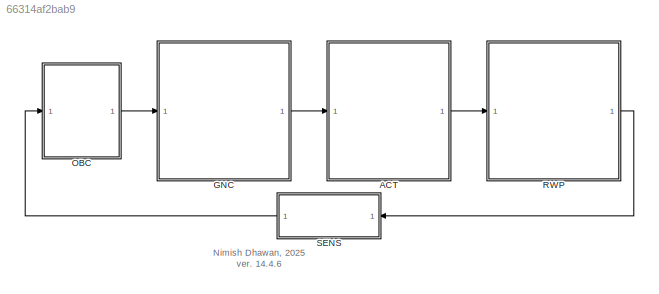
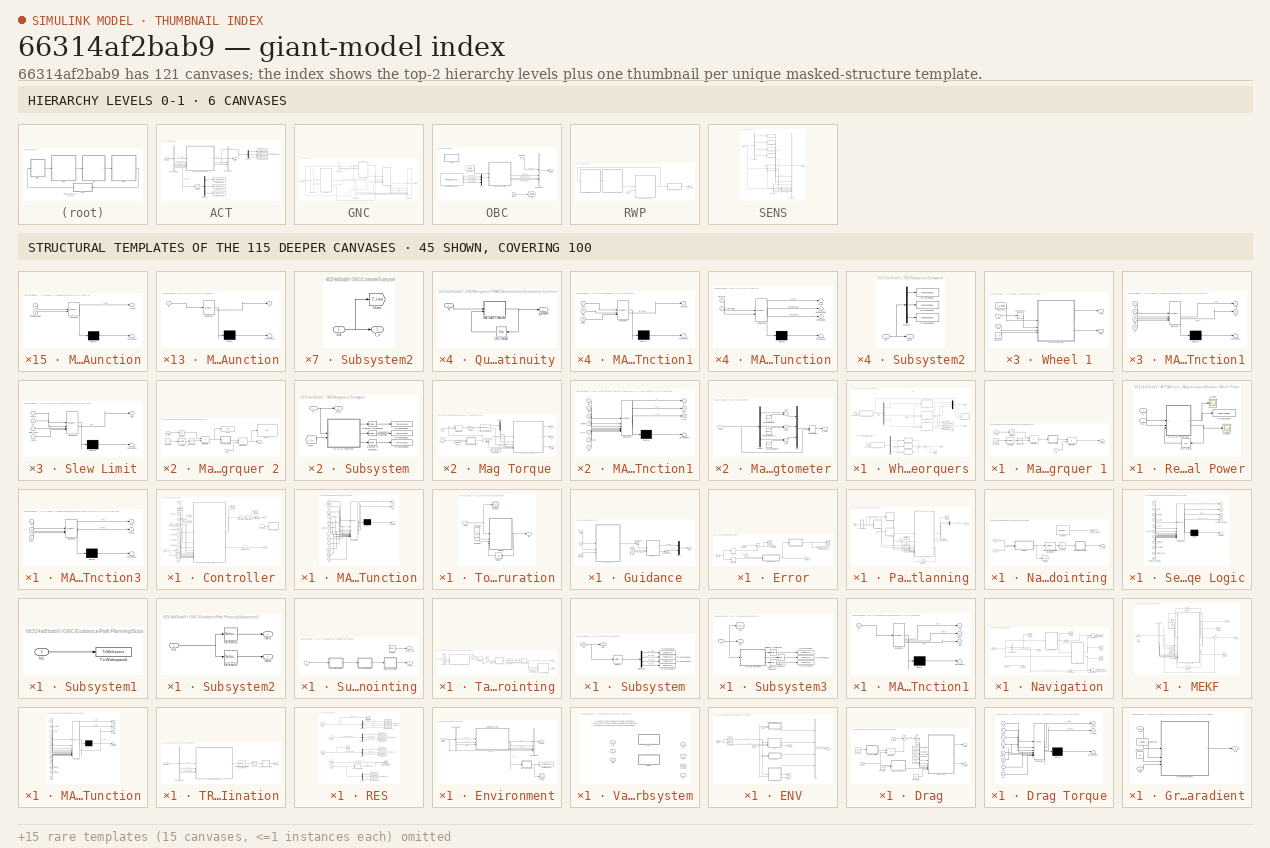
[diagram: thumbnail index - top-2 hierarchy levels (6 canvases) + 45 structural-template representatives of the remaining 115 canvases]
MODEL slx_66314af2bab9
KIND model
CONFIG AbsTol = auto
CONFIG EnableMultiTasking = off
CONFIG FixedStep = 1
CONFIG MaxStep = auto
CONFIG MinStep = auto
CONFIG RelTol = 1e-3
CONFIG SampleTimeConstraint = Unconstrained
CONFIG SolverName = ode4
CONFIG StartTime = 0.0
CONFIG StopTime = tspan
BLOCK [SubSystem] ACT
BLOCK [BusCreator] ACT/Bus Creator
  DisplayOption = bar
  InheritFromInputs = on
  Inputs = 3
BLOCK [BusSelector] ACT/Bus Selector
  OutputSignals = T_cmd,w_body,B_b,m_cmd,wheelsEnable,rodsEnable
BLOCK [Demux] ACT/Demux
  Outputs = 3
BLOCK [Demux] ACT/Demux1
  Outputs = 3
BLOCK [Saturate] ACT/Saturation
  LowerLimit = -0.2
  UpperLimit = 0.2
BLOCK [ToWorkspace] ACT/To Workspace
  FixptAsFi = on
  MaxDataPoints = inf
  SampleTime = -1
  VariableName = m_1
BLOCK [ToWorkspace] ACT/To Workspace1
  FixptAsFi = on
  MaxDataPoints = inf
  SampleTime = -1
  VariableName = m_2
BLOCK [ToWorkspace] ACT/To Workspace10
  FixptAsFi = on
  MaxDataPoints = inf
  SampleTime = -1
  Save2DSignal = 2-D array (concatenate along first dimension)
  VariableName = h3_w
BLOCK [ToWorkspace] ACT/To Workspace11
  FixptAsFi = on
  MaxDataPoints = inf
  SampleTime = -1
  Save2DSignal = 2-D array (concatenate along first dimension)
  VariableName = h2_w
BLOCK [ToWorkspace] ACT/To Workspace12
  FixptAsFi = on
  MaxDataPoints = inf
  SampleTime = -1
  Save2DSignal = 2-D array (concatenate along first dimension)
  VariableName = h1_w
BLOCK [ToWorkspace] ACT/To Workspace2
  FixptAsFi = on
  MaxDataPoints = inf
  SampleTime = -1
  VariableName = m_3
BLOCK [SubSystem] ACT/Wheels + Magnetorquers
BLOCK [Sum] ACT/Wheels + Magnetorquers/Add1
  IconShape = rectangular
  Inputs = +++
BLOCK [Inport] ACT/Wheels + Magnetorquers/B
  Port = 3
BLOCK [Demux] ACT/Wheels + Magnetorquers/Demux
  Outputs = 3
BLOCK [Demux] ACT/Wheels + Magnetorquers/Demux1
  Outputs = 3
BLOCK [Gain] ACT/Wheels + Magnetorquers/Gain
  Gain = -1
BLOCK [Gain] ACT/Wheels + Magnetorquers/Gain1
  Gain = -1
BLOCK [SubSystem] ACT/Wheels + Magnetorquers/MATLAB Function
  ErrorFcn = Stateflow.Translate.translate
  PermitHierarchicalResolution = ExplicitOnly
  SFBlockType = MATLAB Function
  TreatAsAtomicUnit = on
BLOCK [Demux] ACT/Wheels + Magnetorquers/MATLAB Function/ Demux 
  Outputs = 1
BLOCK [S-Function] ACT/Wheels + Magnetorquers/MATLAB Function/ SFunction 
  EnableBusSupport = on
  FunctionName = sf_sfun
  PortCounts = [2 2]
  SFcnIsStateOwnerBlock = off
  SFunctionDeploymentMode = off
  Tag = Stateflow S-Function 2
BLOCK [Terminator] ACT/Wheels + Magnetorquers/MATLAB Function/ Terminator 
BLOCK [Inport] ACT/Wheels + Magnetorquers/MATLAB Function/T_c
BLOCK [Outport] ACT/Wheels + Magnetorquers/MATLAB Function/T_cmd
BLOCK [Inport] ACT/Wheels + Magnetorquers/MATLAB Function/wheelsEnabled
  Port = 2
BLOCK [SubSystem] ACT/Wheels + Magnetorquers/MATLAB Function1
  ErrorFcn = Stateflow.Translate.translate
  PermitHierarchicalResolution = ExplicitOnly
  SFBlockType = MATLAB Function
  TreatAsAtomicUnit = on
BLOCK [Demux] ACT/Wheels + Magnetorquers/MATLAB Function1/ Demux 
  Outputs = 1
BLOCK [S-Function] ACT/Wheels + Magnetorquers/MATLAB Function1/ SFunction 
  EnableBusSupport = on
  FunctionName = sf_sfun
  PortCounts = [2 2]
  SFcnIsStateOwnerBlock = off
  SFunctionDeploymentMode = off
  Tag = Stateflow S-Function 5
BLOCK [Terminator] ACT/Wheels + Magnetorquers/MATLAB Function1/ Terminator 
BLOCK [Inport] ACT/Wheels + Magnetorquers/MATLAB Function1/M_c
BLOCK [Outport] ACT/Wheels + Magnetorquers/MATLAB Function1/M_cmd
BLOCK [Inport] ACT/Wheels + Magnetorquers/MATLAB Function1/rodsEnable
  Port = 2
BLOCK [SubSystem] ACT/Wheels + Magnetorquers/Magnetorquer 1
BLOCK [Inport] ACT/Wheels + Magnetorquers/Magnetorquer 1/B
  NameLocation = left
  Port = 2
BLOCK [Constant] ACT/Wheels + Magnetorquers/Magnetorquer 1/Constant1
  Value = A_m
BLOCK [Product] ACT/Wheels + Magnetorquers/Magnetorquer 1/Matrix Multiply
BLOCK [Product] ACT/Wheels + Magnetorquers/Magnetorquer 1/Matrix Multiply1
  Multiplication = Matrix(*)
BLOCK [Saturate] ACT/Wheels + Magnetorquers/Magnetorquer 1/Saturation
  LowerLimit = -0.2
  UpperLimit = 0.2
BLOCK [Reference] ACT/Wheels + Magnetorquers/Magnetorquer 1/Submatrix  REF=matrix_library/Submatrix
  SourceBlock = matrix_library/Submatrix
  SourceType = Submatrix
BLOCK [Outport] ACT/Wheels + Magnetorquers/Magnetorquer 1/T_Bdot_1
BLOCK [Math] ACT/Wheels + Magnetorquers/Magnetorquer 1/Transpose
  Operator = transpose
BLOCK [Inport] ACT/Wheels + Magnetorquers/Magnetorquer 1/m_cmd1
  NameLocation = left
BLOCK [SubSystem] ACT/Wheels + Magnetorquers/Magnetorquer 1/skew symmetric
  ErrorFcn = Stateflow.Translate.translate
  PermitHierarchicalResolution = ExplicitOnly
  SFBlockType = MATLAB Function
  TreatAsAtomicUnit = on
BLOCK [Demux] ACT/Wheels + Magnetorquers/Magnetorquer 1/skew symmetric/ Demux 
  Outputs = 1
BLOCK [S-Function] ACT/Wheels + Magnetorquers/Magnetorquer 1/skew symmetric/ SFunction 
  EnableBusSupport = on
  FunctionName = sf_sfun
  PortCounts = [1 2]
  SFcnIsStateOwnerBlock = off
  SFunctionDeploymentMode = off
  Tag = Stateflow S-Function 76
BLOCK [Terminator] ACT/Wheels + Magnetorquers/Magnetorquer 1/skew symmetric/ Terminator 
BLOCK [Inport] ACT/Wheels + Magnetorquers/Magnetorquer 1/skew symmetric/M
BLOCK [Outport] ACT/Wheels + Magnetorquers/Magnetorquer 1/skew symmetric/skew
BLOCK [SubSystem] ACT/Wheels + Magnetorquers/Magnetorquer 2
BLOCK [Inport] ACT/Wheels + Magnetorquers/Magnetorquer 2/B
  NameLocation = left
  Port = 2
BLOCK [Constant] ACT/Wheels + Magnetorquers/Magnetorquer 2/Constant1
  Value = A_m
BLOCK [Display] ACT/Wheels + Magnetorquers/Magnetorquer 2/Display
  Decimation = 1
BLOCK [Display] ACT/Wheels + Magnetorquers/Magnetorquer 2/Display1
  Decimation = 1
BLOCK [Product] ACT/Wheels + Magnetorquers/Magnetorquer 2/Matrix Multiply
BLOCK [Product] ACT/Wheels + Magnetorquers/Magnetorquer 2/Matrix Multiply1
  Multiplication = Matrix(*)
BLOCK [Saturate] ACT/Wheels + Magnetorquers/Magnetorquer 2/Saturation
  LowerLimit = -0.2
  UpperLimit = 0.2
BLOCK [Reference] ACT/Wheels + Magnetorquers/Magnetorquer 2/Submatrix  REF=matrix_library/Submatrix
  SourceBlock = matrix_library/Submatrix
  SourceType = Submatrix
BLOCK [Outport] ACT/Wheels + Magnetorquers/Magnetorquer 2/T_Bdot_2
BLOCK [Math] ACT/Wheels + Magnetorquers/Magnetorquer 2/Transpose
  Operator = transpose
BLOCK [Inport] ACT/Wheels + Magnetorquers/Magnetorquer 2/m_cmd2
  NameLocation = left
BLOCK [SubSystem] ACT/Wheels + Magnetorquers/Magnetorquer 2/skew symmetric
  ErrorFcn = Stateflow.Translate.translate
  PermitHierarchicalResolution = ExplicitOnly
  SFBlockType = MATLAB Function
  TreatAsAtomicUnit = on
BLOCK [Demux] ACT/Wheels + Magnetorquers/Magnetorquer 2/skew symmetric/ Demux 
  Outputs = 1
BLOCK [S-Function] ACT/Wheels + Magnetorquers/Magnetorquer 2/skew symmetric/ SFunction 
  EnableBusSupport = on
  FunctionName = sf_sfun
  PortCounts = [1 2]
  SFcnIsStateOwnerBlock = off
  SFunctionDeploymentMode = off
  Tag = Stateflow S-Function 77
BLOCK [Terminator] ACT/Wheels + Magnetorquers/Magnetorquer 2/skew symmetric/ Terminator 
BLOCK [Inport] ACT/Wheels + Magnetorquers/Magnetorquer 2/skew symmetric/M
BLOCK [Outport] ACT/Wheels + Magnetorquers/Magnetorquer 2/skew symmetric/skew
BLOCK [SubSystem] ACT/Wheels + Magnetorquers/Magnetorquer 3
BLOCK [Inport] ACT/Wheels + Magnetorquers/Magnetorquer 3/B
  NameLocation = left
  Port = 2
BLOCK [Constant] ACT/Wheels + Magnetorquers/Magnetorquer 3/Constant1
  Value = A_m
BLOCK [Display] ACT/Wheels + Magnetorquers/Magnetorquer 3/Display
  Decimation = 1
BLOCK [Display] ACT/Wheels + Magnetorquers/Magnetorquer 3/Display1
  Decimation = 1
BLOCK [Product] ACT/Wheels + Magnetorquers/Magnetorquer 3/Matrix Multiply
BLOCK [Product] ACT/Wheels + Magnetorquers/Magnetorquer 3/Matrix Multiply1
  Multiplication = Matrix(*)
BLOCK [Saturate] ACT/Wheels + Magnetorquers/Magnetorquer 3/Saturation
  LowerLimit = -0.2
  UpperLimit = 0.2
BLOCK [Reference] ACT/Wheels + Magnetorquers/Magnetorquer 3/Submatrix  REF=matrix_library/Submatrix
  SourceBlock = matrix_library/Submatrix
  SourceType = Submatrix
BLOCK [Outport] ACT/Wheels + Magnetorquers/Magnetorquer 3/T_Bdot_3
BLOCK [Math] ACT/Wheels + Magnetorquers/Magnetorquer 3/Transpose
  Operator = transpose
BLOCK [Inport] ACT/Wheels + Magnetorquers/Magnetorquer 3/m_cmd3
  NameLocation = left
BLOCK [SubSystem] ACT/Wheels + Magnetorquers/Magnetorquer 3/skew symmetric
  ErrorFcn = Stateflow.Translate.translate
  PermitHierarchicalResolution = ExplicitOnly
  SFBlockType = MATLAB Function
  TreatAsAtomicUnit = on
BLOCK [Demux] ACT/Wheels + Magnetorquers/Magnetorquer 3/skew symmetric/ Demux 
  Outputs = 1
BLOCK [S-Function] ACT/Wheels + Magnetorquers/Magnetorquer 3/skew symmetric/ SFunction 
  EnableBusSupport = on
  FunctionName = sf_sfun
  PortCounts = [1 2]
  SFcnIsStateOwnerBlock = off
  SFunctionDeploymentMode = off
  Tag = Stateflow S-Function 78
BLOCK [Terminator] ACT/Wheels + Magnetorquers/Magnetorquer 3/skew symmetric/ Terminator 
BLOCK [Inport] ACT/Wheels + Magnetorquers/Magnetorquer 3/skew symmetric/M
BLOCK [Outport] ACT/Wheels + Magnetorquers/Magnetorquer 3/skew symmetric/skew
BLOCK [Mux] ACT/Wheels + Magnetorquers/Mux
  DisplayOption = bar
  Inputs = 3
BLOCK [SubSystem] ACT/Wheels + Magnetorquers/Reaction Wheel Power
BLOCK [SubSystem] ACT/Wheels + Magnetorquers/Reaction Wheel Power/MATLAB Function3
  ErrorFcn = Stateflow.Translate.translate
  PermitHierarchicalResolution = ExplicitOnly
  SFBlockType = MATLAB Function
  TreatAsAtomicUnit = on
BLOCK [Demux] ACT/Wheels + Magnetorquers/Reaction Wheel Power/MATLAB Function3/ Demux 
  Outputs = 1
BLOCK [S-Function] ACT/Wheels + Magnetorquers/Reaction Wheel Power/MATLAB Function3/ SFunction 
  EnableBusSupport = on
  FunctionName = sf_sfun
  PortCounts = [3 3]
  SFcnIsStateOwnerBlock = off
  SFunctionDeploymentMode = off
  Tag = Stateflow S-Function 34
BLOCK [Terminator] ACT/Wheels + Magnetorquers/Reaction Wheel Power/MATLAB Function3/ Terminator 
BLOCK [Inport] ACT/Wheels + Magnetorquers/Reaction Wheel Power/MATLAB Function3/P_pre
  Port = 3
BLOCK [Outport] ACT/Wheels + Magnetorquers/Reaction Wheel Power/MATLAB Function3/Prw
BLOCK [Outport] ACT/Wheels + Magnetorquers/Reaction Wheel Power/MATLAB Function3/Ptotal
  Port = 2
BLOCK [Inport] ACT/Wheels + Magnetorquers/Reaction Wheel Power/MATLAB Function3/Tc
BLOCK [Inport] ACT/Wheels + Magnetorquers/Reaction Wheel Power/MATLAB Function3/h_W
  Port = 2
BLOCK [Scope] ACT/Wheels + Magnetorquers/Reaction Wheel Power/Scope2
  Floating = off
  NumInputPorts = 1
  ScopeSpecificationString = Simulink.scopes.TimeScopeBlockCfg('CurrentConfiguration', extmgr.ConfigurationSet(extmgr.Configuration('Core','General UI',true),extmgr.Configuration('Core','Source UI',true),extmgr.Configuration('Sources','WiredSimulink',true,'DataLoggingVariableName','ScopeData2'),extmgr.Configuration('Visuals','Time Domain',true,'SerializedDisplays',{struct('MinYLimReal','-170.39311','MaxYLimReal','1533.53798',...<+1706ch>
BLOCK [Scope] ACT/Wheels + Magnetorquers/Reaction Wheel Power/Scope4
  Floating = off
  NumInputPorts = 1
  ScopeSpecificationString = Simulink.scopes.TimeScopeBlockCfg('CurrentConfiguration', extmgr.ConfigurationSet(extmgr.Configuration('Core','General UI',true),extmgr.Configuration('Core','Source UI',true),extmgr.Configuration('Sources','WiredSimulink',true,'DataLoggingVariableName','ScopeData1'),extmgr.Configuration('Visuals','Time Domain',true,'SerializedDisplays',{struct('MinYLimReal','-0.01681','MaxYLimReal','0.15128','YLab...<+1667ch>
BLOCK [Inport] ACT/Wheels + Magnetorquers/Reaction Wheel Power/Tc
  Port = 2
BLOCK [ToWorkspace] ACT/Wheels + Magnetorquers/Reaction Wheel Power/To Workspace
  FixptAsFi = on
  MaxDataPoints = inf
  SampleTime = -1
  VariableName = Prw
BLOCK [UnitDelay] ACT/Wheels + Magnetorquers/Reaction Wheel Power/Unit Delay
  HasFrameUpgradeWarning = on
  InitialCondition = zeros(3,1)
  NameLocation = top
  SampleTime = -1
BLOCK [Inport] ACT/Wheels + Magnetorquers/Reaction Wheel Power/h_W
BLOCK [Scope] ACT/Wheels + Magnetorquers/Scope
  Floating = off
  NumInputPorts = 1
  ScopeSpecificationString = Simulink.scopes.TimeScopeBlockCfg('CurrentConfiguration', extmgr.ConfigurationSet(extmgr.Configuration('Core','General UI',true),extmgr.Configuration('Core','Source UI',true),extmgr.Configuration('Sources','WiredSimulink',true,'DataLoggingVariableName','ScopeData2'),extmgr.Configuration('Visuals','Time Domain',true,'SerializedDisplays',{struct('MinYLimReal','-1.00000','MaxYLimReal','1.00000','YLab...<+1555ch>
BLOCK [SignalSpecification] ACT/Wheels + Magnetorquers/Signal Specification
  Dimensions = [3,1]
BLOCK [SignalSpecification] ACT/Wheels + Magnetorquers/Signal Specification1
  Dimensions = [3,1]
BLOCK [SignalSpecification] ACT/Wheels + Magnetorquers/Signal Specification2
  Dimensions = [3,1]
BLOCK [Sum] ACT/Wheels + Magnetorquers/Sum
  Inputs = +++
BLOCK [Outport] ACT/Wheels + Magnetorquers/T_B-dot
  Port = 3
BLOCK [Inport] ACT/Wheels + Magnetorquers/T_c
BLOCK [SubSystem] ACT/Wheels + Magnetorquers/Wheel 1
BLOCK [Constant] ACT/Wheels + Magnetorquers/Wheel 1/Constant1
  Value = A_w
BLOCK [Constant] ACT/Wheels + Magnetorquers/Wheel 1/Constant2
  Value = J_wheels
BLOCK [Integrator] ACT/Wheels + Magnetorquers/Wheel 1/Integrator1
  InitialCondition = wW_1*J_wheels
BLOCK [SubSystem] ACT/Wheels + Magnetorquers/Wheel 1/MATLAB Function1
  ErrorFcn = Stateflow.Translate.translate
  PermitHierarchicalResolution = ExplicitOnly
  SFBlockType = MATLAB Function
  TreatAsAtomicUnit = on
BLOCK [Demux] ACT/Wheels + Magnetorquers/Wheel 1/MATLAB Function1/ Demux 
  Outputs = 1
BLOCK [S-Function] ACT/Wheels + Magnetorquers/Wheel 1/MATLAB Function1/ SFunction 
  EnableBusSupport = on
  FunctionName = sf_sfun
  PortCounts = [4 3]
  SFcnIsStateOwnerBlock = off
  SFunctionDeploymentMode = off
  Tag = Stateflow S-Function 29
BLOCK [Terminator] ACT/Wheels + Magnetorquers/Wheel 1/MATLAB Function1/ Terminator 
BLOCK [Inport] ACT/Wheels + Magnetorquers/Wheel 1/MATLAB Function1/A_w
  Port = 4
BLOCK [Inport] ACT/Wheels + Magnetorquers/Wheel 1/MATLAB Function1/J_w
BLOCK [Inport] ACT/Wheels + Magnetorquers/Wheel 1/MATLAB Function1/h_w
  Port = 2
BLOCK [Outport] ACT/Wheels + Magnetorquers/Wheel 1/MATLAB Function1/h_wi
BLOCK [Inport] ACT/Wheels + Magnetorquers/Wheel 1/MATLAB Function1/wB
  Port = 3
BLOCK [Outport] ACT/Wheels + Magnetorquers/Wheel 1/MATLAB Function1/w_wi
  Port = 2
BLOCK [Inport] ACT/Wheels + Magnetorquers/Wheel 1/T_c1
BLOCK [Outport] ACT/Wheels + Magnetorquers/Wheel 1/h_w1
  NameLocation = top
BLOCK [Inport] ACT/Wheels + Magnetorquers/Wheel 1/w_b
  Port = 2
BLOCK [Outport] ACT/Wheels + Magnetorquers/Wheel 1/w_w1
  Port = 2
BLOCK [SubSystem] ACT/Wheels + Magnetorquers/Wheel 2
BLOCK [Constant] ACT/Wheels + Magnetorquers/Wheel 2/Constant2
  Value = A_w
BLOCK [Constant] ACT/Wheels + Magnetorquers/Wheel 2/Constant3
  Value = J_wheels
BLOCK [Integrator] ACT/Wheels + Magnetorquers/Wheel 2/Integrator1
  InitialCondition = wW_2*J_wheels
BLOCK [SubSystem] ACT/Wheels + Magnetorquers/Wheel 2/MATLAB Function1
  ErrorFcn = Stateflow.Translate.translate
  PermitHierarchicalResolution = ExplicitOnly
  SFBlockType = MATLAB Function
  TreatAsAtomicUnit = on
BLOCK [Demux] ACT/Wheels + Magnetorquers/Wheel 2/MATLAB Function1/ Demux 
  Outputs = 1
BLOCK [S-Function] ACT/Wheels + Magnetorquers/Wheel 2/MATLAB Function1/ SFunction 
  EnableBusSupport = on
  FunctionName = sf_sfun
  PortCounts = [4 3]
  SFcnIsStateOwnerBlock = off
  SFunctionDeploymentMode = off
  Tag = Stateflow S-Function 30
BLOCK [Terminator] ACT/Wheels + Magnetorquers/Wheel 2/MATLAB Function1/ Terminator 
BLOCK [Inport] ACT/Wheels + Magnetorquers/Wheel 2/MATLAB Function1/A_w
  Port = 4
BLOCK [Inport] ACT/Wheels + Magnetorquers/Wheel 2/MATLAB Function1/J_w
BLOCK [Inport] ACT/Wheels + Magnetorquers/Wheel 2/MATLAB Function1/h_w
  Port = 2
BLOCK [Outport] ACT/Wheels + Magnetorquers/Wheel 2/MATLAB Function1/h_wi
BLOCK [Inport] ACT/Wheels + Magnetorquers/Wheel 2/MATLAB Function1/wB
  Port = 3
BLOCK [Outport] ACT/Wheels + Magnetorquers/Wheel 2/MATLAB Function1/w_wi
  Port = 2
BLOCK [Inport] ACT/Wheels + Magnetorquers/Wheel 2/T_c2
BLOCK [Outport] ACT/Wheels + Magnetorquers/Wheel 2/h_w2
BLOCK [Inport] ACT/Wheels + Magnetorquers/Wheel 2/w_b
  Port = 2
BLOCK [Outport] ACT/Wheels + Magnetorquers/Wheel 2/w_w2
  Port = 2
BLOCK [SubSystem] ACT/Wheels + Magnetorquers/Wheel 3
BLOCK [Constant] ACT/Wheels + Magnetorquers/Wheel 3/Constant2
  Value = A_w
BLOCK [Constant] ACT/Wheels + Magnetorquers/Wheel 3/Constant3
  Value = J_wheels
BLOCK [Integrator] ACT/Wheels + Magnetorquers/Wheel 3/Integrator1
  InitialCondition = wW_3*J_wheels
BLOCK [SubSystem] ACT/Wheels + Magnetorquers/Wheel 3/MATLAB Function1
  ErrorFcn = Stateflow.Translate.translate
  PermitHierarchicalResolution = ExplicitOnly
  SFBlockType = MATLAB Function
  TreatAsAtomicUnit = on
BLOCK [Demux] ACT/Wheels + Magnetorquers/Wheel 3/MATLAB Function1/ Demux 
  Outputs = 1
BLOCK [S-Function] ACT/Wheels + Magnetorquers/Wheel 3/MATLAB Function1/ SFunction 
  EnableBusSupport = on
  FunctionName = sf_sfun
  PortCounts = [4 3]
  SFcnIsStateOwnerBlock = off
  SFunctionDeploymentMode = off
  Tag = Stateflow S-Function 32
BLOCK [Terminator] ACT/Wheels + Magnetorquers/Wheel 3/MATLAB Function1/ Terminator 
BLOCK [Inport] ACT/Wheels + Magnetorquers/Wheel 3/MATLAB Function1/A_w
  Port = 4
BLOCK [Inport] ACT/Wheels + Magnetorquers/Wheel 3/MATLAB Function1/J_w
BLOCK [Inport] ACT/Wheels + Magnetorquers/Wheel 3/MATLAB Function1/h_w
  Port = 2
BLOCK [Outport] ACT/Wheels + Magnetorquers/Wheel 3/MATLAB Function1/h_wi
BLOCK [Inport] ACT/Wheels + Magnetorquers/Wheel 3/MATLAB Function1/wB
  Port = 3
BLOCK [Outport] ACT/Wheels + Magnetorquers/Wheel 3/MATLAB Function1/w_wi
  Port = 2
BLOCK [Inport] ACT/Wheels + Magnetorquers/Wheel 3/T_c3
BLOCK [Outport] ACT/Wheels + Magnetorquers/Wheel 3/h_w3
  NameLocation = top
BLOCK [Inport] ACT/Wheels + Magnetorquers/Wheel 3/w_b
  Port = 2
BLOCK [Outport] ACT/Wheels + Magnetorquers/Wheel 3/w_w3
  Port = 2
BLOCK [Outport] ACT/Wheels + Magnetorquers/h_w
  Port = 2
BLOCK [Inport] ACT/Wheels + Magnetorquers/m
  Port = 4
BLOCK [Inport] ACT/Wheels + Magnetorquers/rodsEnable
  Port = 6
BLOCK [Inport] ACT/Wheels + Magnetorquers/w_b
  NameLocation = left
  Port = 2
BLOCK [Outport] ACT/Wheels + Magnetorquers/w_w
BLOCK [Inport] ACT/Wheels + Magnetorquers/wheelsEnable
  Port = 5
BLOCK [Inport] ACT/fromGNC
BLOCK [Outport] ACT/toRWP
BLOCK [SubSystem] GNC
BLOCK [BusCreator] GNC/Bus Creator
  DisplayOption = bar
  InheritFromInputs = on
  Inputs = 7
BLOCK [BusSelector] GNC/Bus Selector
  OutputSignals = fromSENS,opMode
BLOCK [BusSelector] GNC/Bus Selector1
  OutputSignals = fromSENS.state_act,fromSENS.s_I,opMode
BLOCK [BusSelector] GNC/Bus Selector2
  OutputSignals = fromSENS.h_w,opMode,wheelsEnable,rodsEnable
BLOCK [SubSystem] GNC/Controller
BLOCK [Inport] GNC/Controller/B
  Port = 3
BLOCK [Outport] GNC/Controller/B_b
  Port = 2
BLOCK [Constant] GNC/Controller/Constant
  Value = period
BLOCK [Constant] GNC/Controller/Constant1
  Value = K_p
BLOCK [Constant] GNC/Controller/Constant2
  Value = K_d
BLOCK [Constant] GNC/Controller/Constant4
  Value = J_body
BLOCK [Constant] GNC/Controller/Constant5
  Value = K_w
BLOCK [From] GNC/Controller/From
  GotoTag = simTime
  TagVisibility = global
BLOCK [Gain] GNC/Controller/Gain
  Gain = 1e-09
BLOCK [SubSystem] GNC/Controller/MATLAB Function
  ErrorFcn = Stateflow.Translate.translate
  PermitHierarchicalResolution = ExplicitOnly
  SFBlockType = MATLAB Function
  TreatAsAtomicUnit = on
BLOCK [Demux] GNC/Controller/MATLAB Function/ Demux 
  Outputs = 1
BLOCK [S-Function] GNC/Controller/MATLAB Function/ SFunction 
  EnableBusSupport = on
  FunctionName = sf_sfun
  PortCounts = [12 3]
  SFcnIsStateOwnerBlock = off
  SFunctionDeploymentMode = off
  Tag = Stateflow S-Function 70
BLOCK [Terminator] GNC/Controller/MATLAB Function/ Terminator 
BLOCK [Inport] GNC/Controller/MATLAB Function/B_meas
  Port = 4
BLOCK [Inport] GNC/Controller/MATLAB Function/J_body
  Port = 6
BLOCK [Inport] GNC/Controller/MATLAB Function/K_d
  Port = 8
BLOCK [Inport] GNC/Controller/MATLAB Function/K_p
  Port = 7
BLOCK [Inport] GNC/Controller/MATLAB Function/K_w
  Port = 9
BLOCK [Outport] GNC/Controller/MATLAB Function/M
  Port = 2
BLOCK [Outport] GNC/Controller/MATLAB Function/T_w
BLOCK [Inport] GNC/Controller/MATLAB Function/h_w
  Port = 12
BLOCK [Inport] GNC/Controller/MATLAB Function/opMode
BLOCK [Inport] GNC/Controller/MATLAB Function/period
  Port = 3
BLOCK [Inport] GNC/Controller/MATLAB Function/q_error
  Port = 10
BLOCK [Inport] GNC/Controller/MATLAB Function/t
  Port = 2
BLOCK [Inport] GNC/Controller/MATLAB Function/w
  Port = 5
BLOCK [Inport] GNC/Controller/MATLAB Function/w_error
  Port = 11
BLOCK [RateLimiter] GNC/Controller/Rate Limiter
  FallingSlewLimit = -5e-07
  RisingSlewLimit = 5e-07
  SampleTimeMode = inherited
BLOCK [Reshape] GNC/Controller/Reshape
  OutputDimensionality = Column vector (2-D)
  OutputDimensions = [3,1]
BLOCK [Scope] GNC/Controller/Scope
  Floating = off
  NumInputPorts = 1
  ScopeSpecificationString = Simulink.scopes.TimeScopeBlockCfg('CurrentConfiguration', extmgr.ConfigurationSet(extmgr.Configuration('Core','General UI',true,'FigureColor',[1 1 1]),extmgr.Configuration('Core','Source UI',true),extmgr.Configuration('Sources','WiredSimulink',true,'DataLoggingVariableName','ScopeData3'),extmgr.Configuration('Visuals','Time Domain',true,'SerializedDisplays',{struct('MinYLimReal','-0.00016','MaxYLi...<+1623ch>
BLOCK [Scope] GNC/Controller/Scope1
  Floating = off
  NumInputPorts = 1
  ScopeSpecificationString = Simulink.scopes.TimeScopeBlockCfg('CurrentConfiguration', extmgr.ConfigurationSet(extmgr.Configuration('Core','General UI',true),extmgr.Configuration('Core','Source UI',true),extmgr.Configuration('Sources','WiredSimulink',true,'DataLoggingVariableName','ScopeData1'),extmgr.Configuration('Visuals','Time Domain',true,'SerializedDisplays',{struct('MinYLimReal','-0.00012','MaxYLimReal','0.00009','YLab...<+1581ch>
BLOCK [Selector] GNC/Controller/Selector
  IndexOptions = Index vector (dialog)
  Indices = [4 5 6 7]
  InputPortWidth = 7
  OutputSizes = 1
BLOCK [Selector] GNC/Controller/Selector1
  IndexOptions = Index vector (dialog)
  Indices = [1 2 3]
  InputPortWidth = 7
  OutputSizes = 1
BLOCK [SubSystem] GNC/Controller/Subsystem2
  ShowPortLabels = none
BLOCK [Goto] GNC/Controller/Subsystem2/Goto
  GotoTag = T_cmd
  TagVisibility = global
BLOCK [Inport] GNC/Controller/Subsystem2/In1
BLOCK [Outport] GNC/Controller/Subsystem2/T_c
BLOCK [Outport] GNC/Controller/T_c
BLOCK [SubSystem] GNC/Controller/Torque Saturation
  Commented = on
BLOCK [Constant] GNC/Controller/Torque Saturation/Constant6
BLOCK [Constant] GNC/Controller/Torque Saturation/Constant7
  Value = 1e-6/2
BLOCK [Scope] GNC/Controller/Torque Saturation/Scope2
  Floating = off
  NumInputPorts = 1
  ScopeSpecificationString = Simulink.scopes.TimeScopeBlockCfg('CurrentConfiguration', extmgr.ConfigurationSet(extmgr.Configuration('Core','General UI',true),extmgr.Configuration('Core','Source UI',true),extmgr.Configuration('Sources','WiredSimulink',true,'DataLoggingVariableName','ScopeData2'),extmgr.Configuration('Visuals','Time Domain',true,'SerializedDisplays',{struct('MinYLimReal','-0.00015','MaxYLimReal','0.0001','YLabe...<+1533ch>
BLOCK [SubSystem] GNC/Controller/Torque Saturation/Slew Limit
  ErrorFcn = Stateflow.Translate.translate
  PermitHierarchicalResolution = ExplicitOnly
  SFBlockType = MATLAB Function
  TreatAsAtomicUnit = on
BLOCK [Demux] GNC/Controller/Torque Saturation/Slew Limit/ Demux 
  Outputs = 1
BLOCK [S-Function] GNC/Controller/Torque Saturation/Slew Limit/ SFunction 
  EnableBusSupport = on
  FunctionName = sf_sfun
  PortCounts = [4 2]
  SFcnIsStateOwnerBlock = off
  SFunctionDeploymentMode = off
  Tag = Stateflow S-Function 35
BLOCK [Terminator] GNC/Controller/Torque Saturation/Slew Limit/ Terminator 
BLOCK [Inport] GNC/Controller/Torque Saturation/Slew Limit/T_prev
  Port = 4
BLOCK [Inport] GNC/Controller/Torque Saturation/Slew Limit/Tcmd
BLOCK [Inport] GNC/Controller/Torque Saturation/Slew Limit/Tdot_max
  Port = 3
BLOCK [Outport] GNC/Controller/Torque Saturation/Slew Limit/Tlim
BLOCK [Inport] GNC/Controller/Torque Saturation/Slew Limit/ts
  Port = 2
BLOCK [Inport] GNC/Controller/Torque Saturation/Tcmd
BLOCK [Outport] GNC/Controller/Torque Saturation/Tlim
BLOCK [UnitDelay] GNC/Controller/Torque Saturation/Unit Delay
  HasFrameUpgradeWarning = on
  InitialCondition = zeros(3,1)
  NameLocation = top
  SampleTime = -1
BLOCK [ZeroOrderHold] GNC/Controller/Zero-Order Hold
  Commented = on
  SampleTime = -1
BLOCK [ZeroOrderHold] GNC/Controller/Zero-Order Hold1
  SampleTime = -1
BLOCK [ZeroOrderHold] GNC/Controller/Zero-Order Hold2
  SampleTime = -1
BLOCK [Inport] GNC/Controller/error
BLOCK [Inport] GNC/Controller/h_w
  Port = 4
BLOCK [Outport] GNC/Controller/m
  Port = 4
BLOCK [Inport] GNC/Controller/opMode
  Port = 5
BLOCK [Outport] GNC/Controller/w_b
  Port = 3
BLOCK [Inport] GNC/Controller/w_body
  Port = 2
BLOCK [SubSystem] GNC/Guidance
  PortSchema = {"entries":[{"content":{"sides":[{"content":{},"type":"ConnectorPlacement.EquallySpacedRectSide","uuid":"1b864df5-58d8-4c90-91c9-86121554aa4c"},{"content":{"side":"RIGHT"},"type":"ConnectorPlacement.EquallySpacedRectSide","uuid":"8c8748bb-fc8a-40e3-a181-470f6593a9be"},{"content":{"connectorIds":["Out1"],"side":"TOP"},"type":"ConnectorPlacement.EquallySpacedRectSide","uuid":"61030da7-ff27-4452-a972...<+373ch>
BLOCK [SubSystem] GNC/Guidance/Error
BLOCK [SubSystem] GNC/Guidance/Error/Error Quaternion
  ErrorFcn = Stateflow.Translate.translate
  PermitHierarchicalResolution = ExplicitOnly
  SFBlockType = MATLAB Function
  TreatAsAtomicUnit = on
BLOCK [Demux] GNC/Guidance/Error/Error Quaternion/ Demux 
  Outputs = 1
BLOCK [S-Function] GNC/Guidance/Error/Error Quaternion/ SFunction 
  EnableBusSupport = on
  FunctionName = sf_sfun
  PortCounts = [2 2]
  SFcnIsStateOwnerBlock = off
  SFunctionDeploymentMode = off
  Tag = Stateflow S-Function 15
BLOCK [Terminator] GNC/Guidance/Error/Error Quaternion/ Terminator 
BLOCK [Outport] GNC/Guidance/Error/Error Quaternion/delta_q
BLOCK [Inport] GNC/Guidance/Error/Error Quaternion/q
BLOCK [Inport] GNC/Guidance/Error/Error Quaternion/q_d
  Port = 2
BLOCK [SubSystem] GNC/Guidance/Error/MATLAB Function
  ErrorFcn = Stateflow.Translate.translate
  PermitHierarchicalResolution = ExplicitOnly
  SFBlockType = MATLAB Function
  TreatAsAtomicUnit = on
BLOCK [Demux] GNC/Guidance/Error/MATLAB Function/ Demux 
  Outputs = 1
BLOCK [S-Function] GNC/Guidance/Error/MATLAB Function/ SFunction 
  EnableBusSupport = on
  FunctionName = sf_sfun
  PortCounts = [1 2]
  SFcnIsStateOwnerBlock = off
  SFunctionDeploymentMode = off
  Tag = Stateflow S-Function 16
BLOCK [Terminator] GNC/Guidance/Error/MATLAB Function/ Terminator 
BLOCK [Inport] GNC/Guidance/Error/MATLAB Function/q_error
BLOCK [Outport] GNC/Guidance/Error/MATLAB Function/theta_e
BLOCK [Scope] GNC/Guidance/Error/Scope
  Floating = off
  NumInputPorts = 1
  ScopeSpecificationString = Simulink.scopes.TimeScopeBlockCfg('CurrentConfiguration', extmgr.ConfigurationSet(extmgr.Configuration('Core','General UI',true,'FigureColor',[1 1 1]),extmgr.Configuration('Core','Source UI',true),extmgr.Configuration('Sources','WiredSimulink',true,'DataLoggingVariableName','ScopeData1'),extmgr.Configuration('Visuals','Time Domain',true,'SerializedDisplays',{struct('MinYLimReal','-0.15194','MaxYLi...<+1701ch>
BLOCK [Scope] GNC/Guidance/Error/Scope1
  Floating = off
  NumInputPorts = 1
  ScopeSpecificationString = Simulink.scopes.TimeScopeBlockCfg('CurrentConfiguration', extmgr.ConfigurationSet(extmgr.Configuration('Core','General UI',true,'FigureColor',[1 1 1]),extmgr.Configuration('Core','Source UI',true),extmgr.Configuration('Sources','WiredSimulink',true,'DataLoggingVariableName','ScopeData1'),extmgr.Configuration('Visuals','Time Domain',true,'SerializedDisplays',{struct('MinYLimReal','-0.00006','MaxYLi...<+1707ch>
BLOCK [Selector] GNC/Guidance/Error/Selector2
  IndexOptions = Index vector (dialog)
  Indices = [1 2 3 4]
  InputPortWidth = 7
  OutputSizes = 1
BLOCK [Selector] GNC/Guidance/Error/Selector3
  IndexOptions = Index vector (dialog)
  Indices = [5 6 7]
  InputPortWidth = 7
  OutputSizes = 1
BLOCK [Sum] GNC/Guidance/Error/Sum
  Inputs = |+-
BLOCK [ToWorkspace] GNC/Guidance/Error/To Workspace3
  FixptAsFi = on
  MaxDataPoints = inf
  SampleTime = -1
  VariableName = pointing_err
BLOCK [Outport] GNC/Guidance/Error/delta_q
  Port = 2
BLOCK [Inport] GNC/Guidance/Error/desAtt
BLOCK [Inport] GNC/Guidance/Error/q_body
  NameLocation = left
  Port = 3
BLOCK [Inport] GNC/Guidance/Error/w_body
  Port = 2
BLOCK [Outport] GNC/Guidance/Error/w_error
BLOCK [Mux] GNC/Guidance/Mux1
  DisplayOption = bar
  Inputs = 2
BLOCK [SubSystem] GNC/Guidance/Path Planning
BLOCK [From] GNC/Guidance/Path Planning/From
  GotoTag = simTime
  TagVisibility = global
BLOCK [From] GNC/Guidance/Path Planning/From1
  GotoTag = eclipseExit
  TagVisibility = global
BLOCK [From] GNC/Guidance/Path Planning/From2
  GotoTag = inEclipse
  TagVisibility = global
BLOCK [Mux] GNC/Guidance/Path Planning/Mux
  DisplayOption = bar
  Inputs = 2
BLOCK [SubSystem] GNC/Guidance/Path Planning/Nadir Pointing
BLOCK [Constant] GNC/Guidance/Path Planning/Nadir Pointing/Constant
  Value = [0; -0.001108; 0]
  VectorParams1D = off
BLOCK [Reference] GNC/Guidance/Path Planning/Nadir Pointing/Direction Cosine Matrix to Quaternions  REF=sharedtransform/Direction Cosine Matrix 
to Quaternions
  LibrarySourceBlock = aerolibtransform2/Direction Cosine Matrix \nto Quaternions
  SourceBlock = sharedtransform/Direction Cosine Matrix \nto Quaternions
  SourceType = DCM2Quaternion
BLOCK [SubSystem] GNC/Guidance/Path Planning/Nadir Pointing/ECI to SB
  ErrorFcn = Stateflow.Translate.translate
  PermitHierarchicalResolution = ExplicitOnly
  SFBlockType = MATLAB Function
  TreatAsAtomicUnit = on
BLOCK [Demux] GNC/Guidance/Path Planning/Nadir Pointing/ECI to SB/ Demux 
  Outputs = 1
BLOCK [S-Function] GNC/Guidance/Path Planning/Nadir Pointing/ECI to SB/ SFunction 
  EnableBusSupport = on
  FunctionName = sf_sfun
  PortCounts = [2 2]
  SFcnIsStateOwnerBlock = off
  SFunctionDeploymentMode = off
  Tag = Stateflow S-Function 42
BLOCK [Terminator] GNC/Guidance/Path Planning/Nadir Pointing/ECI to SB/ Terminator 
BLOCK [Outport] GNC/Guidance/Path Planning/Nadir Pointing/ECI to SB/C_BI
BLOCK [Inport] GNC/Guidance/Path Planning/Nadir Pointing/ECI to SB/r
BLOCK [Inport] GNC/Guidance/Path Planning/Nadir Pointing/ECI to SB/v
  Port = 2
BLOCK [Goto] GNC/Guidance/Path Planning/Nadir Pointing/Goto
  GotoTag = C_QI
  TagVisibility = global
BLOCK [SubSystem] GNC/Guidance/Path Planning/Nadir Pointing/Quaternion Continuity
BLOCK [SubSystem] GNC/Guidance/Path Planning/Nadir Pointing/Quaternion Continuity/MATLAB Function2
  ErrorFcn = Stateflow.Translate.translate
  PermitHierarchicalResolution = ExplicitOnly
  SFBlockType = MATLAB Function
  TreatAsAtomicUnit = on
BLOCK [Demux] GNC/Guidance/Path Planning/Nadir Pointing/Quaternion Continuity/MATLAB Function2/ Demux 
  Outputs = 1
BLOCK [S-Function] GNC/Guidance/Path Planning/Nadir Pointing/Quaternion Continuity/MATLAB Function2/ SFunction 
  EnableBusSupport = on
  FunctionName = sf_sfun
  PortCounts = [2 2]
  SFcnIsStateOwnerBlock = off
  SFunctionDeploymentMode = off
  Tag = Stateflow S-Function 10
BLOCK [Terminator] GNC/Guidance/Path Planning/Nadir Pointing/Quaternion Continuity/MATLAB Function2/ Terminator 
BLOCK [Inport] GNC/Guidance/Path Planning/Nadir Pointing/Quaternion Continuity/MATLAB Function2/q
BLOCK [Inport] GNC/Guidance/Path Planning/Nadir Pointing/Quaternion Continuity/MATLAB Function2/q_prev
  Port = 2
BLOCK [Outport] GNC/Guidance/Path Planning/Nadir Pointing/Quaternion Continuity/MATLAB Function2/q_smooth
BLOCK [UnitDelay] GNC/Guidance/Path Planning/Nadir Pointing/Quaternion Continuity/Unit Delay1
  HasFrameUpgradeWarning = on
  InitialCondition = [0 0 0 1]'
  NameLocation = top
  SampleTime = -1
BLOCK [Inport] GNC/Guidance/Path Planning/Nadir Pointing/Quaternion Continuity/q
BLOCK [Outport] GNC/Guidance/Path Planning/Nadir Pointing/Quaternion Continuity/q_smooth
BLOCK [Selector] GNC/Guidance/Path Planning/Nadir Pointing/Selector2
  IndexOptions = Index vector (dialog)
  Indices = [2 3 4 1]
  InputPortWidth = 4
  OutputSizes = 1
BLOCK [Outport] GNC/Guidance/Path Planning/Nadir Pointing/q_nadir
BLOCK [Inport] GNC/Guidance/Path Planning/Nadir Pointing/r
BLOCK [Inport] GNC/Guidance/Path Planning/Nadir Pointing/v
  Port = 2
BLOCK [Outport] GNC/Guidance/Path Planning/Nadir Pointing/w_des_nadir
  Port = 2
BLOCK [Scope] GNC/Guidance/Path Planning/Scope
  Floating = off
  NumInputPorts = 1
  ScopeSpecificationString = Simulink.scopes.TimeScopeBlockCfg('CurrentConfiguration', extmgr.ConfigurationSet(extmgr.Configuration('Core','General UI',true),extmgr.Configuration('Core','Source UI',true),extmgr.Configuration('Sources','WiredSimulink',true,'DataLoggingVariableName','ScopeData2'),extmgr.Configuration('Visuals','Time Domain',true,'SerializedDisplays',{struct('MinYLimReal','-1.05665','MaxYLimReal','0.82327','YLab...<+1699ch>
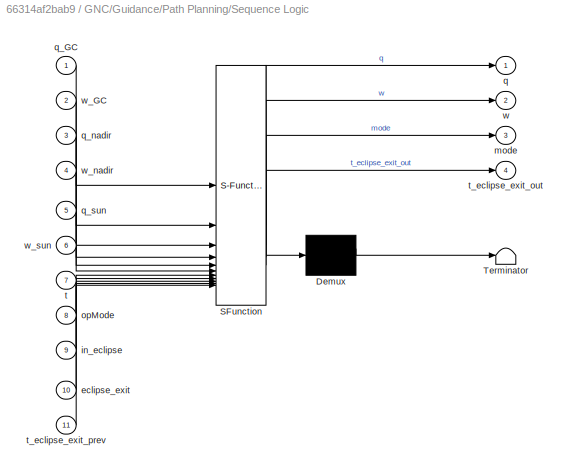
BLOCK [SubSystem] GNC/Guidance/Path Planning/Sequence Logic
  ErrorFcn = Stateflow.Translate.translate
  PermitHierarchicalResolution = ExplicitOnly
  SFBlockType = MATLAB Function
  TreatAsAtomicUnit = on
BLOCK [Demux] GNC/Guidance/Path Planning/Sequence Logic/ Demux 
  Outputs = 1
BLOCK [S-Function] GNC/Guidance/Path Planning/Sequence Logic/ SFunction 
  EnableBusSupport = on
  FunctionName = sf_sfun
  PortCounts = [11 5]
  SFcnIsStateOwnerBlock = off
  SFunctionDeploymentMode = off
  Tag = Stateflow S-Function 46
BLOCK [Terminator] GNC/Guidance/Path Planning/Sequence Logic/ Terminator 
BLOCK [Inport] GNC/Guidance/Path Planning/Sequence Logic/eclipse_exit
  Port = 10
BLOCK [Inport] GNC/Guidance/Path Planning/Sequence Logic/in_eclipse
  Port = 9
BLOCK [Outport] GNC/Guidance/Path Planning/Sequence Logic/mode
  Port = 3
BLOCK [Inport] GNC/Guidance/Path Planning/Sequence Logic/opMode
  Port = 8
BLOCK [Outport] GNC/Guidance/Path Planning/Sequence Logic/q
BLOCK [Inport] GNC/Guidance/Path Planning/Sequence Logic/q_GC
BLOCK [Inport] GNC/Guidance/Path Planning/Sequence Logic/q_nadir
  Port = 3
BLOCK [Inport] GNC/Guidance/Path Planning/Sequence Logic/q_sun
  Port = 5
BLOCK [Inport] GNC/Guidance/Path Planning/Sequence Logic/t
  Port = 7
BLOCK [Outport] GNC/Guidance/Path Planning/Sequence Logic/t_eclipse_exit_out
  Port = 4
BLOCK [Inport] GNC/Guidance/Path Planning/Sequence Logic/t_eclipse_exit_prev
  Port = 11
BLOCK [Outport] GNC/Guidance/Path Planning/Sequence Logic/w
  Port = 2
BLOCK [Inport] GNC/Guidance/Path Planning/Sequence Logic/w_GC
  Port = 2
BLOCK [Inport] GNC/Guidance/Path Planning/Sequence Logic/w_nadir
  Port = 4
BLOCK [Inport] GNC/Guidance/Path Planning/Sequence Logic/w_sun
  Port = 6
BLOCK [SubSystem] GNC/Guidance/Path Planning/Subsystem1
  ShowPortLabels = none
BLOCK [Inport] GNC/Guidance/Path Planning/Subsystem1/In1
BLOCK [ToWorkspace] GNC/Guidance/Path Planning/Subsystem1/To Workspace4
  FixptAsFi = on
  MaxDataPoints = inf
  SampleTime = -1
  Save2DSignal = 2-D array (concatenate along first dimension)
  VariableName = mode
BLOCK [SubSystem] GNC/Guidance/Path Planning/Subsystem2
BLOCK [Inport] GNC/Guidance/Path Planning/Subsystem2/In1
BLOCK [Outport] GNC/Guidance/Path Planning/Subsystem2/Out1
BLOCK [Outport] GNC/Guidance/Path Planning/Subsystem2/Out2
  Port = 2
BLOCK [Selector] GNC/Guidance/Path Planning/Subsystem2/Selector1
  IndexOptions = Index vector (dialog)
  Indices = [1 2 3]
  InputPortWidth = 6
  OutputSizes = 1
BLOCK [Selector] GNC/Guidance/Path Planning/Subsystem2/Selector2
  IndexOptions = Index vector (dialog)
  Indices = [4 5 6]
  InputPortWidth = 6
  OutputSizes = 1
BLOCK [SubSystem] GNC/Guidance/Path Planning/Sun Pointing
BLOCK [Constant] GNC/Guidance/Path Planning/Sun Pointing/Constant
  Value = [0;0;0]
  VectorParams1D = off
BLOCK [SubSystem] GNC/Guidance/Path Planning/Sun Pointing/MATLAB Function
  ErrorFcn = Stateflow.Translate.translate
  PermitHierarchicalResolution = ExplicitOnly
  SFBlockType = MATLAB Function
  TreatAsAtomicUnit = on
BLOCK [Demux] GNC/Guidance/Path Planning/Sun Pointing/MATLAB Function/ Demux 
  Outputs = 1
BLOCK [S-Function] GNC/Guidance/Path Planning/Sun Pointing/MATLAB Function/ SFunction 
  EnableBusSupport = on
  FunctionName = sf_sfun
  PortCounts = [1 2]
  SFcnIsStateOwnerBlock = off
  SFunctionDeploymentMode = off
  Tag = Stateflow S-Function 49
BLOCK [Terminator] GNC/Guidance/Path Planning/Sun Pointing/MATLAB Function/ Terminator 
BLOCK [Inport] GNC/Guidance/Path Planning/Sun Pointing/MATLAB Function/DCM
BLOCK [Outport] GNC/Guidance/Path Planning/Sun Pointing/MATLAB Function/q
BLOCK [SubSystem] GNC/Guidance/Path Planning/Sun Pointing/MATLAB Function2
  ErrorFcn = Stateflow.Translate.translate
  PermitHierarchicalResolution = ExplicitOnly
  SFBlockType = MATLAB Function
  TreatAsAtomicUnit = on
BLOCK [Demux] GNC/Guidance/Path Planning/Sun Pointing/MATLAB Function2/ Demux 
  Outputs = 1
BLOCK [S-Function] GNC/Guidance/Path Planning/Sun Pointing/MATLAB Function2/ SFunction 
  EnableBusSupport = on
  FunctionName = sf_sfun
  PortCounts = [1 2]
  SFcnIsStateOwnerBlock = off
  SFunctionDeploymentMode = off
  Tag = Stateflow S-Function 55
BLOCK [Terminator] GNC/Guidance/Path Planning/Sun Pointing/MATLAB Function2/ Terminator 
BLOCK [Outport] GNC/Guidance/Path Planning/Sun Pointing/MATLAB Function2/C_BI
BLOCK [Inport] GNC/Guidance/Path Planning/Sun Pointing/MATLAB Function2/s_i
BLOCK [SubSystem] GNC/Guidance/Path Planning/Sun Pointing/Quaternion Continuity
BLOCK [SubSystem] GNC/Guidance/Path Planning/Sun Pointing/Quaternion Continuity/MATLAB Function2
  ErrorFcn = Stateflow.Translate.translate
  PermitHierarchicalResolution = ExplicitOnly
  SFBlockType = MATLAB Function
  TreatAsAtomicUnit = on
BLOCK [Demux] GNC/Guidance/Path Planning/Sun Pointing/Quaternion Continuity/MATLAB Function2/ Demux 
  Outputs = 1
BLOCK [S-Function] GNC/Guidance/Path Planning/Sun Pointing/Quaternion Continuity/MATLAB Function2/ SFunction 
  EnableBusSupport = on
  FunctionName = sf_sfun
  PortCounts = [2 2]
  SFcnIsStateOwnerBlock = off
  SFunctionDeploymentMode = off
  Tag = Stateflow S-Function 11
BLOCK [Terminator] GNC/Guidance/Path Planning/Sun Pointing/Quaternion Continuity/MATLAB Function2/ Terminator 
BLOCK [Inport] GNC/Guidance/Path Planning/Sun Pointing/Quaternion Continuity/MATLAB Function2/q
BLOCK [Inport] GNC/Guidance/Path Planning/Sun Pointing/Quaternion Continuity/MATLAB Function2/q_prev
  Port = 2
BLOCK [Outport] GNC/Guidance/Path Planning/Sun Pointing/Quaternion Continuity/MATLAB Function2/q_smooth
BLOCK [UnitDelay] GNC/Guidance/Path Planning/Sun Pointing/Quaternion Continuity/Unit Delay1
  HasFrameUpgradeWarning = on
  InitialCondition = [0 0 0 1]'
  NameLocation = top
  SampleTime = -1
BLOCK [Inport] GNC/Guidance/Path Planning/Sun Pointing/Quaternion Continuity/q
BLOCK [Outport] GNC/Guidance/Path Planning/Sun Pointing/Quaternion Continuity/q_smooth
BLOCK [Outport] GNC/Guidance/Path Planning/Sun Pointing/q_sun
BLOCK [Inport] GNC/Guidance/Path Planning/Sun Pointing/s_I
BLOCK [Outport] GNC/Guidance/Path Planning/Sun Pointing/w_des_sun
  Port = 2
BLOCK [SubSystem] GNC/Guidance/Path Planning/Target Pointing
BLOCK [Constant] GNC/Guidance/Path Planning/Target Pointing/Constant
  Value = rE
BLOCK [Constant] GNC/Guidance/Path Planning/Target Pointing/Constant1
  Value = 45.3848
BLOCK [Constant] GNC/Guidance/Path Planning/Target Pointing/Constant2
  Value = - 75.6974
BLOCK [Reference] GNC/Guidance/Path Planning/Target Pointing/Direction Cosine Matrix to Quaternions  REF=sharedtransform/Direction Cosine Matrix 
to Quaternions
  LibrarySourceBlock = aerolibtransform2/Direction Cosine Matrix \nto Quaternions
  SourceBlock = sharedtransform/Direction Cosine Matrix \nto Quaternions
  SourceType = DCM2Quaternion
BLOCK [Reference] GNC/Guidance/Path Planning/Target Pointing/Discrete Derivative  REF=simulink/Discrete/Discrete Derivative
  SourceBlock = simulink/Discrete/Discrete Derivative
  SourceType = Discrete Derivative
BLOCK [From] GNC/Guidance/Path Planning/Target Pointing/From
  GotoTag = C_IF
  TagVisibility = global
BLOCK [SubSystem] GNC/Guidance/Path Planning/Target Pointing/MATLAB Function
  ErrorFcn = Stateflow.Translate.translate
  PermitHierarchicalResolution = ExplicitOnly
  SFBlockType = MATLAB Function
  TreatAsAtomicUnit = on
BLOCK [Demux] GNC/Guidance/Path Planning/Target Pointing/MATLAB Function/ Demux 
  Outputs = 1
BLOCK [S-Function] GNC/Guidance/Path Planning/Target Pointing/MATLAB Function/ SFunction 
  EnableBusSupport = on
  FunctionName = sf_sfun
  PortCounts = [3 2]
  SFcnIsStateOwnerBlock = off
  SFunctionDeploymentMode = off
  Tag = Stateflow S-Function 7
BLOCK [Terminator] GNC/Guidance/Path Planning/Target Pointing/MATLAB Function/ Terminator 
BLOCK [Inport] GNC/Guidance/Path Planning/Target Pointing/MATLAB Function/Re
BLOCK [Outport] GNC/Guidance/Path Planning/Target Pointing/MATLAB Function/r_target_ecef
BLOCK [Inport] GNC/Guidance/Path Planning/Target Pointing/MATLAB Function/target_lat
  Port = 2
BLOCK [Inport] GNC/Guidance/Path Planning/Target Pointing/MATLAB Function/target_lon
  Port = 3
BLOCK [SubSystem] GNC/Guidance/Path Planning/Target Pointing/MATLAB Function2
  ErrorFcn = Stateflow.Translate.translate
  PermitHierarchicalResolution = ExplicitOnly
  SFBlockType = MATLAB Function
  TreatAsAtomicUnit = on
BLOCK [Demux] GNC/Guidance/Path Planning/Target Pointing/MATLAB Function2/ Demux 
  Outputs = 1
BLOCK [S-Function] GNC/Guidance/Path Planning/Target Pointing/MATLAB Function2/ SFunction 
  EnableBusSupport = on
  FunctionName = sf_sfun
  PortCounts = [3 2]
  SFcnIsStateOwnerBlock = off
  SFunctionDeploymentMode = off
  Tag = Stateflow S-Function 13
BLOCK [Terminator] GNC/Guidance/Path Planning/Target Pointing/MATLAB Function2/ Terminator 
BLOCK [Outport] GNC/Guidance/Path Planning/Target Pointing/MATLAB Function2/C_BI
BLOCK [Inport] GNC/Guidance/Path Planning/Target Pointing/MATLAB Function2/los
BLOCK [Inport] GNC/Guidance/Path Planning/Target Pointing/MATLAB Function2/r
  Port = 2
BLOCK [Inport] GNC/Guidance/Path Planning/Target Pointing/MATLAB Function2/v
  Port = 3
BLOCK [SubSystem] GNC/Guidance/Path Planning/Target Pointing/MATLAB Function3
  ErrorFcn = Stateflow.Translate.translate
  PermitHierarchicalResolution = ExplicitOnly
  SFBlockType = MATLAB Function
  TreatAsAtomicUnit = on
BLOCK [Demux] GNC/Guidance/Path Planning/Target Pointing/MATLAB Function3/ Demux 
  Outputs = 1
BLOCK [S-Function] GNC/Guidance/Path Planning/Target Pointing/MATLAB Function3/ SFunction 
  EnableBusSupport = on
  FunctionName = sf_sfun
  PortCounts = [2 2]
  SFcnIsStateOwnerBlock = off
  SFunctionDeploymentMode = off
  Tag = Stateflow S-Function 17
BLOCK [Terminator] GNC/Guidance/Path Planning/Target Pointing/MATLAB Function3/ Terminator 
BLOCK [Inport] GNC/Guidance/Path Planning/Target Pointing/MATLAB Function3/q
BLOCK [Inport] GNC/Guidance/Path Planning/Target Pointing/MATLAB Function3/q_dot
  Port = 2
BLOCK [Outport] GNC/Guidance/Path Planning/Target Pointing/MATLAB Function3/w_b
BLOCK [Product] GNC/Guidance/Path Planning/Target Pointing/Matrix Multiply
  Multiplication = Matrix(*)
BLOCK [SubSystem] GNC/Guidance/Path Planning/Target Pointing/Quaternion Continuity
BLOCK [SubSystem] GNC/Guidance/Path Planning/Target Pointing/Quaternion Continuity/MATLAB Function2
  ErrorFcn = Stateflow.Translate.translate
  PermitHierarchicalResolution = ExplicitOnly
  SFBlockType = MATLAB Function
  TreatAsAtomicUnit = on
BLOCK [Demux] GNC/Guidance/Path Planning/Target Pointing/Quaternion Continuity/MATLAB Function2/ Demux 
  Outputs = 1
BLOCK [S-Function] GNC/Guidance/Path Planning/Target Pointing/Quaternion Continuity/MATLAB Function2/ SFunction 
  EnableBusSupport = on
  FunctionName = sf_sfun
  PortCounts = [2 2]
  SFcnIsStateOwnerBlock = off
  SFunctionDeploymentMode = off
  Tag = Stateflow S-Function 14
BLOCK [Terminator] GNC/Guidance/Path Planning/Target Pointing/Quaternion Continuity/MATLAB Function2/ Terminator 
BLOCK [Inport] GNC/Guidance/Path Planning/Target Pointing/Quaternion Continuity/MATLAB Function2/q
BLOCK [Inport] GNC/Guidance/Path Planning/Target Pointing/Quaternion Continuity/MATLAB Function2/q_prev
  Port = 2
BLOCK [Outport] GNC/Guidance/Path Planning/Target Pointing/Quaternion Continuity/MATLAB Function2/q_smooth
BLOCK [UnitDelay] GNC/Guidance/Path Planning/Target Pointing/Quaternion Continuity/Unit Delay1
  HasFrameUpgradeWarning = on
  InitialCondition = [0 0 0 1]'
  NameLocation = top
  SampleTime = -1
BLOCK [Inport] GNC/Guidance/Path Planning/Target Pointing/Quaternion Continuity/q
BLOCK [Outport] GNC/Guidance/Path Planning/Target Pointing/Quaternion Continuity/q_smooth
BLOCK [Selector] GNC/Guidance/Path Planning/Target Pointing/Selector2
  IndexOptions = Index vector (dialog)
  Indices = [2 3 4 1]
  InputPortWidth = 4
  OutputSizes = 1
BLOCK [Sum] GNC/Guidance/Path Planning/Target Pointing/Sum
  Inputs = |+-
BLOCK [Outport] GNC/Guidance/Path Planning/Target Pointing/q_GS
BLOCK [Inport] GNC/Guidance/Path Planning/Target Pointing/r
BLOCK [Inport] GNC/Guidance/Path Planning/Target Pointing/v
  Port = 2
BLOCK [Outport] GNC/Guidance/Path Planning/Target Pointing/w_GS
  Port = 2
BLOCK [UnitDelay] GNC/Guidance/Path Planning/Unit Delay1
  HasFrameUpgradeWarning = on
  NameLocation = top
  SampleTime = -1
BLOCK [Outport] GNC/Guidance/Path Planning/desAtt
BLOCK [Inport] GNC/Guidance/Path Planning/opMode
  Port = 3
BLOCK [Inport] GNC/Guidance/Path Planning/s_I
  Port = 2
BLOCK [Inport] GNC/Guidance/Path Planning/state
BLOCK [SubSystem] GNC/Guidance/Subsystem
  ShowPortLabels = none
BLOCK [Demux] GNC/Guidance/Subsystem/Demux2
BLOCK [Inport] GNC/Guidance/Subsystem/In1
BLOCK [Outport] GNC/Guidance/Subsystem/Out1
BLOCK [Selector] GNC/Guidance/Subsystem/Selector
  IndexOptions = Index vector (dialog)
  Indices = [1 2 3 4]
  InputPortWidth = 7
  OutputSizes = 1
BLOCK [ToWorkspace] GNC/Guidance/Subsystem/To Workspace
  FixptAsFi = on
  MaxDataPoints = inf
  SampleTime = -1
  Save2DSignal = 2-D array (concatenate along first dimension)
  VariableName = q1_des
BLOCK [ToWorkspace] GNC/Guidance/Subsystem/To Workspace1
  FixptAsFi = on
  MaxDataPoints = inf
  SampleTime = -1
  Save2DSignal = 2-D array (concatenate along first dimension)
  VariableName = q2_des
BLOCK [ToWorkspace] GNC/Guidance/Subsystem/To Workspace2
  FixptAsFi = on
  MaxDataPoints = inf
  SampleTime = -1
  Save2DSignal = 2-D array (concatenate along first dimension)
  VariableName = q3_des
BLOCK [ToWorkspace] GNC/Guidance/Subsystem/To Workspace3
  FixptAsFi = on
  MaxDataPoints = inf
  SampleTime = -1
  Save2DSignal = 2-D array (concatenate along first dimension)
  VariableName = q4_des
BLOCK [SubSystem] GNC/Guidance/Subsystem3
  ShowPortLabels = none
BLOCK [Goto] GNC/Guidance/Subsystem3/Goto
  GotoTag = q_error
  TagVisibility = global
BLOCK [SubSystem] GNC/Guidance/Subsystem3/MATLAB Function1
  ErrorFcn = Stateflow.Translate.translate
  PermitHierarchicalResolution = ExplicitOnly
  SFBlockType = MATLAB Function
  TreatAsAtomicUnit = on
BLOCK [Demux] GNC/Guidance/Subsystem3/MATLAB Function1/ Demux 
  Outputs = 1
BLOCK [S-Function] GNC/Guidance/Subsystem3/MATLAB Function1/ SFunction 
  EnableBusSupport = on
  FunctionName = sf_sfun
  PortCounts = [1 4]
  SFcnIsStateOwnerBlock = off
  SFunctionDeploymentMode = off
  Tag = Stateflow S-Function 18
BLOCK [Terminator] GNC/Guidance/Subsystem3/MATLAB Function1/ Terminator 
BLOCK [Outport] GNC/Guidance/Subsystem3/MATLAB Function1/pitch
  Port = 2
BLOCK [Inport] GNC/Guidance/Subsystem3/MATLAB Function1/q
BLOCK [Outport] GNC/Guidance/Subsystem3/MATLAB Function1/roll
BLOCK [Outport] GNC/Guidance/Subsystem3/MATLAB Function1/yaw
  Port = 3
BLOCK [Outport] GNC/Guidance/Subsystem3/Out1
BLOCK [Reference] GNC/Guidance/Subsystem3/Radians to Degrees  REF=simulink_extras/Transformations/Radians
to Degrees
  SourceBlock = simulink_extras/Transformations/Radians\nto Degrees
  SourceType = RadiansToDegrees
BLOCK [Reference] GNC/Guidance/Subsystem3/Radians to Degrees1  REF=simulink_extras/Transformations/Radians
to Degrees
  SourceBlock = simulink_extras/Transformations/Radians\nto Degrees
  SourceType = RadiansToDegrees
BLOCK [Reference] GNC/Guidance/Subsystem3/Radians to Degrees2  REF=simulink_extras/Transformations/Radians
to Degrees
  SourceBlock = simulink_extras/Transformations/Radians\nto Degrees
  SourceType = RadiansToDegrees
BLOCK [ToWorkspace] GNC/Guidance/Subsystem3/To Workspace
  FixptAsFi = on
  MaxDataPoints = inf
  SampleTime = -1
  VariableName = roll_err
BLOCK [ToWorkspace] GNC/Guidance/Subsystem3/To Workspace1
  FixptAsFi = on
  MaxDataPoints = inf
  SampleTime = -1
  VariableName = pitch_err
BLOCK [ToWorkspace] GNC/Guidance/Subsystem3/To Workspace2
  FixptAsFi = on
  MaxDataPoints = inf
  SampleTime = -1
  VariableName = yaw_err
BLOCK [Inport] GNC/Guidance/Subsystem3/q
BLOCK [Outport] GNC/Guidance/error
BLOCK [Inport] GNC/Guidance/opMode
  Port = 3
BLOCK [Inport] GNC/Guidance/q_est
  Port = 5
BLOCK [Inport] GNC/Guidance/s_I
  Port = 2
BLOCK [Inport] GNC/Guidance/state
BLOCK [Inport] GNC/Guidance/w_est
  Port = 4
BLOCK [SubSystem] GNC/Navigation
BLOCK [Outport] GNC/Navigation/B_est
  Port = 3
BLOCK [BusSelector] GNC/Navigation/Bus Selector1
  OutputSignals = w_sc_meas,B_b_meas
BLOCK [SubSystem] GNC/Navigation/MEKF
BLOCK [BusSelector] GNC/Navigation/MEKF/Bus Selector
  OutputSignals = w_sc_meas,s_I,B_I,s_B_meas,B_b_meas
BLOCK [Constant] GNC/Navigation/MEKF/Constant
BLOCK [Constant] GNC/Navigation/MEKF/Constant1
  Value = blkdiag(sigma_S^2*eye(3), sigma_B^2*eye(3))
BLOCK [Constant] GNC/Navigation/MEKF/Constant2
  Value = sigma_g
BLOCK [Constant] GNC/Navigation/MEKF/Constant3
  Value = sigma_b
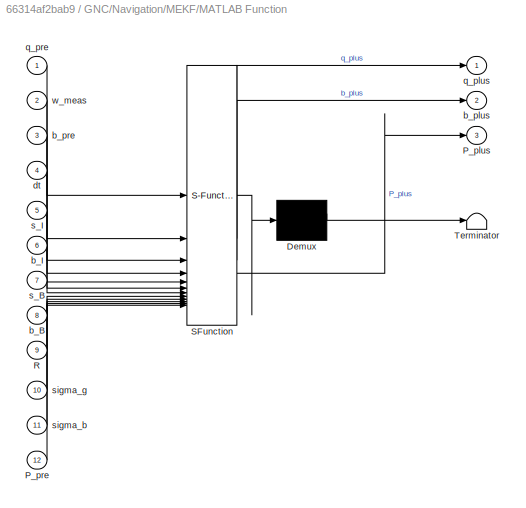
BLOCK [SubSystem] GNC/Navigation/MEKF/MATLAB Function
  ErrorFcn = Stateflow.Translate.translate
  PermitHierarchicalResolution = ExplicitOnly
  SFBlockType = MATLAB Function
  TreatAsAtomicUnit = on
BLOCK [Demux] GNC/Navigation/MEKF/MATLAB Function/ Demux 
  Outputs = 1
BLOCK [S-Function] GNC/Navigation/MEKF/MATLAB Function/ SFunction 
  EnableBusSupport = on
  FunctionName = sf_sfun
  PortCounts = [12 4]
  SFcnIsStateOwnerBlock = off
  SFunctionDeploymentMode = off
  Tag = Stateflow S-Function 39
BLOCK [Terminator] GNC/Navigation/MEKF/MATLAB Function/ Terminator 
BLOCK [Outport] GNC/Navigation/MEKF/MATLAB Function/P_plus
  Port = 3
BLOCK [Inport] GNC/Navigation/MEKF/MATLAB Function/P_pre
  Port = 12
BLOCK [Inport] GNC/Navigation/MEKF/MATLAB Function/R
  Port = 9
BLOCK [Inport] GNC/Navigation/MEKF/MATLAB Function/b_B
  Port = 8
BLOCK [Inport] GNC/Navigation/MEKF/MATLAB Function/b_I
  Port = 6
BLOCK [Outport] GNC/Navigation/MEKF/MATLAB Function/b_plus
  Port = 2
BLOCK [Inport] GNC/Navigation/MEKF/MATLAB Function/b_pre
  Port = 3
BLOCK [Inport] GNC/Navigation/MEKF/MATLAB Function/dt
  Port = 4
BLOCK [Outport] GNC/Navigation/MEKF/MATLAB Function/q_plus
BLOCK [Inport] GNC/Navigation/MEKF/MATLAB Function/q_pre
BLOCK [Inport] GNC/Navigation/MEKF/MATLAB Function/s_B
  Port = 7
BLOCK [Inport] GNC/Navigation/MEKF/MATLAB Function/s_I
  Port = 5
BLOCK [Inport] GNC/Navigation/MEKF/MATLAB Function/sigma_b
  Port = 11
BLOCK [Inport] GNC/Navigation/MEKF/MATLAB Function/sigma_g
  Port = 10
BLOCK [Inport] GNC/Navigation/MEKF/MATLAB Function/w_meas
  Port = 2
BLOCK [Scope] GNC/Navigation/MEKF/Scope
  Floating = off
  NumInputPorts = 1
  ScopeSpecificationString = Simulink.scopes.TimeScopeBlockCfg('CurrentConfiguration', extmgr.ConfigurationSet(extmgr.Configuration('Core','General UI',true),extmgr.Configuration('Core','Source UI',true),extmgr.Configuration('Sources','WiredSimulink',true,'DataLoggingVariableName','ScopeData3'),extmgr.Configuration('Visuals','Time Domain',true,'SerializedDisplays',{struct('MinYLimReal','-0.00244','MaxYLimReal','0.0017','YLabe...<+1636ch>
BLOCK [Scope] GNC/Navigation/MEKF/Scope1
  Floating = off
  NumInputPorts = 1
  ScopeSpecificationString = Simulink.scopes.TimeScopeBlockCfg('CurrentConfiguration', extmgr.ConfigurationSet(extmgr.Configuration('Core','General UI',true),extmgr.Configuration('Core','Source UI',true),extmgr.Configuration('Sources','WiredSimulink',true,'DataLoggingVariableName','ScopeData1'),extmgr.Configuration('Visuals','Time Domain',true,'SerializedDisplays',{struct('MinYLimReal','-0.00000013','MaxYLimReal','0.00000019'...<+2594ch>
BLOCK [Sum] GNC/Navigation/MEKF/Sum
  Inputs = |-+
BLOCK [UnitDelay] GNC/Navigation/MEKF/Unit Delay
  HasFrameUpgradeWarning = on
  InitialCondition = [q1_ini; q2_ini; q3_ini; q4_ini]
  NameLocation = top
  SampleTime = -1
BLOCK [UnitDelay] GNC/Navigation/MEKF/Unit Delay1
  HasFrameUpgradeWarning = on
  InitialCondition = 0.00000001*eye(6)
  NameLocation = top
  SampleTime = -1
BLOCK [UnitDelay] GNC/Navigation/MEKF/Unit Delay2
  HasFrameUpgradeWarning = on
  InitialCondition = 0.00000001*ones(3,1)
  SampleTime = -1
BLOCK [Inport] GNC/Navigation/MEKF/fromSENS
  Port = 2
BLOCK [Outport] GNC/Navigation/MEKF/q_est
BLOCK [Inport] GNC/Navigation/MEKF/q_triad
BLOCK [Outport] GNC/Navigation/MEKF/w_est
  Port = 2
BLOCK [ManualSwitch] GNC/Navigation/Manual Switch1
BLOCK [ManualSwitch] GNC/Navigation/Manual Switch2
  CurrentSetting = 0
BLOCK [Scope] GNC/Navigation/Scope
  Floating = off
  NameLocation = left
  NumInputPorts = 1
  ScopeSpecificationString = Simulink.scopes.TimeScopeBlockCfg('CurrentConfiguration', extmgr.ConfigurationSet(extmgr.Configuration('Core','General UI',true),extmgr.Configuration('Core','Source UI',true),extmgr.Configuration('Sources','WiredSimulink',true,'DataLoggingVariableName','ScopeData1'),extmgr.Configuration('Visuals','Time Domain',true,'SerializedDisplays',{struct('MinYLimReal','-1.0577','MaxYLimReal','0.82402','YLabe...<+1642ch>
BLOCK [Scope] GNC/Navigation/Scope1
  Floating = off
  NumInputPorts = 1
  ScopeSpecificationString = Simulink.scopes.TimeScopeBlockCfg('CurrentConfiguration', extmgr.ConfigurationSet(extmgr.Configuration('Core','General UI',true),extmgr.Configuration('Core','Source UI',true),extmgr.Configuration('Sources','WiredSimulink',true,'DataLoggingVariableName','ScopeData2'),extmgr.Configuration('Visuals','Time Domain',true,'SerializedDisplays',{struct('MinYLimReal','-0.00145','MaxYLimReal','0.00034','YLab...<+1711ch>
BLOCK [Scope] GNC/Navigation/Scope2
  Floating = off
  NumInputPorts = 1
  ScopeSpecificationString = Simulink.scopes.TimeScopeBlockCfg('CurrentConfiguration', extmgr.ConfigurationSet(extmgr.Configuration('Core','General UI',true),extmgr.Configuration('Core','Source UI',true),extmgr.Configuration('Sources','WiredSimulink',true,'DataLoggingVariableName','ScopeData1'),extmgr.Configuration('Visuals','Time Domain',true,'SerializedDisplays',{struct('MinYLimReal','-1.05615','MaxYLimReal','0.82424','YLab...<+1621ch>
BLOCK [Scope] GNC/Navigation/Scope3
  Floating = off
  NumInputPorts = 1
  ScopeSpecificationString = Simulink.scopes.TimeScopeBlockCfg('CurrentConfiguration', extmgr.ConfigurationSet(extmgr.Configuration('Core','General UI',true),extmgr.Configuration('Core','Source UI',true),extmgr.Configuration('Sources','WiredSimulink',true,'DataLoggingVariableName','ScopeData2'),extmgr.Configuration('Visuals','Time Domain',true,'SerializedDisplays',{struct('MinYLimReal','-0.0015','MaxYLimReal','0.00035','YLabe...<+1582ch>
BLOCK [SubSystem] GNC/Navigation/Subsystem
  ShowPortLabels = none
BLOCK [From] GNC/Navigation/Subsystem/From
  GotoTag = C_QI
  TagVisibility = global
BLOCK [SubSystem] GNC/Navigation/Subsystem/MATLAB Function2
  ErrorFcn = Stateflow.Translate.translate
  PermitHierarchicalResolution = ExplicitOnly
  SFBlockType = MATLAB Function
  TreatAsAtomicUnit = on
BLOCK [Demux] GNC/Navigation/Subsystem/MATLAB Function2/ Demux 
  Outputs = 1
BLOCK [S-Function] GNC/Navigation/Subsystem/MATLAB Function2/ SFunction 
  EnableBusSupport = on
  FunctionName = sf_sfun
  PortCounts = [2 4]
  SFcnIsStateOwnerBlock = off
  SFunctionDeploymentMode = off
  Tag = Stateflow S-Function 12
BLOCK [Terminator] GNC/Navigation/Subsystem/MATLAB Function2/ Terminator 
BLOCK [Inport] GNC/Navigation/Subsystem/MATLAB Function2/C_QI
  Port = 2
BLOCK [Outport] GNC/Navigation/Subsystem/MATLAB Function2/pitch
  Port = 2
BLOCK [Inport] GNC/Navigation/Subsystem/MATLAB Function2/q
BLOCK [Outport] GNC/Navigation/Subsystem/MATLAB Function2/roll
BLOCK [Outport] GNC/Navigation/Subsystem/MATLAB Function2/yaw
  Port = 3
BLOCK [Outport] GNC/Navigation/Subsystem/Out1
BLOCK [Reference] GNC/Navigation/Subsystem/Radians to Degrees  REF=simulink_extras/Transformations/Radians
to Degrees
  SourceBlock = simulink_extras/Transformations/Radians\nto Degrees
  SourceType = RadiansToDegrees
BLOCK [Reference] GNC/Navigation/Subsystem/Radians to Degrees1  REF=simulink_extras/Transformations/Radians
to Degrees
  SourceBlock = simulink_extras/Transformations/Radians\nto Degrees
  SourceType = RadiansToDegrees
BLOCK [Reference] GNC/Navigation/Subsystem/Radians to Degrees2  REF=simulink_extras/Transformations/Radians
to Degrees
  SourceBlock = simulink_extras/Transformations/Radians\nto Degrees
  SourceType = RadiansToDegrees
BLOCK [ToWorkspace] GNC/Navigation/Subsystem/To Workspace
  FixptAsFi = on
  MaxDataPoints = inf
  SampleTime = -1
  VariableName = roll_est
BLOCK [ToWorkspace] GNC/Navigation/Subsystem/To Workspace1
  FixptAsFi = on
  MaxDataPoints = inf
  SampleTime = -1
  VariableName = pitch_est
BLOCK [ToWorkspace] GNC/Navigation/Subsystem/To Workspace2
  FixptAsFi = on
  MaxDataPoints = inf
  SampleTime = -1
  VariableName = yaw_est
BLOCK [Inport] GNC/Navigation/Subsystem/q
BLOCK [SubSystem] GNC/Navigation/Subsystem1
  ShowPortLabels = none
BLOCK [From] GNC/Navigation/Subsystem1/From
  GotoTag = C_QI
  TagVisibility = global
BLOCK [SubSystem] GNC/Navigation/Subsystem1/MATLAB Function2
  ErrorFcn = Stateflow.Translate.translate
  PermitHierarchicalResolution = ExplicitOnly
  SFBlockType = MATLAB Function
  TreatAsAtomicUnit = on
BLOCK [Demux] GNC/Navigation/Subsystem1/MATLAB Function2/ Demux 
  Outputs = 1
BLOCK [S-Function] GNC/Navigation/Subsystem1/MATLAB Function2/ SFunction 
  EnableBusSupport = on
  FunctionName = sf_sfun
  PortCounts = [2 4]
  SFcnIsStateOwnerBlock = off
  SFunctionDeploymentMode = off
  Tag = Stateflow S-Function 43
BLOCK [Terminator] GNC/Navigation/Subsystem1/MATLAB Function2/ Terminator 
BLOCK [Inport] GNC/Navigation/Subsystem1/MATLAB Function2/C_QI
  Port = 2
BLOCK [Outport] GNC/Navigation/Subsystem1/MATLAB Function2/pitch
  Port = 2
BLOCK [Inport] GNC/Navigation/Subsystem1/MATLAB Function2/q
BLOCK [Outport] GNC/Navigation/Subsystem1/MATLAB Function2/roll
BLOCK [Outport] GNC/Navigation/Subsystem1/MATLAB Function2/yaw
  Port = 3
BLOCK [Outport] GNC/Navigation/Subsystem1/Out1
BLOCK [Reference] GNC/Navigation/Subsystem1/Radians to Degrees  REF=simulink_extras/Transformations/Radians
to Degrees
  SourceBlock = simulink_extras/Transformations/Radians\nto Degrees
  SourceType = RadiansToDegrees
BLOCK [Reference] GNC/Navigation/Subsystem1/Radians to Degrees1  REF=simulink_extras/Transformations/Radians
to Degrees
  SourceBlock = simulink_extras/Transformations/Radians\nto Degrees
  SourceType = RadiansToDegrees
BLOCK [Reference] GNC/Navigation/Subsystem1/Radians to Degrees2  REF=simulink_extras/Transformations/Radians
to Degrees
  SourceBlock = simulink_extras/Transformations/Radians\nto Degrees
  SourceType = RadiansToDegrees
BLOCK [ToWorkspace] GNC/Navigation/Subsystem1/To Workspace
  FixptAsFi = on
  MaxDataPoints = inf
  SampleTime = -1
  VariableName = roll_meas
BLOCK [ToWorkspace] GNC/Navigation/Subsystem1/To Workspace1
  FixptAsFi = on
  MaxDataPoints = inf
  SampleTime = -1
  VariableName = pitch_meas
BLOCK [ToWorkspace] GNC/Navigation/Subsystem1/To Workspace2
  FixptAsFi = on
  MaxDataPoints = inf
  SampleTime = -1
  VariableName = yaw_meas
BLOCK [Inport] GNC/Navigation/Subsystem1/q
BLOCK [SubSystem] GNC/Navigation/Subsystem2
  ShowPortLabels = none
BLOCK [Demux] GNC/Navigation/Subsystem2/Demux
  Outputs = 3
BLOCK [Inport] GNC/Navigation/Subsystem2/In1
BLOCK [Outport] GNC/Navigation/Subsystem2/Out1
BLOCK [ToWorkspace] GNC/Navigation/Subsystem2/To Workspace
  FixptAsFi = on
  MaxDataPoints = inf
  SampleTime = -1
  VariableName = w1_est
BLOCK [ToWorkspace] GNC/Navigation/Subsystem2/To Workspace1
  FixptAsFi = on
  MaxDataPoints = inf
  SampleTime = -1
  VariableName = w2_est
BLOCK [ToWorkspace] GNC/Navigation/Subsystem2/To Workspace2
  FixptAsFi = on
  MaxDataPoints = inf
  SampleTime = -1
  VariableName = w3_est
BLOCK [SubSystem] GNC/Navigation/Subsystem3
  ShowPortLabels = none
BLOCK [Demux] GNC/Navigation/Subsystem3/Demux
  Outputs = 3
BLOCK [Inport] GNC/Navigation/Subsystem3/In1
BLOCK [Outport] GNC/Navigation/Subsystem3/Out1
BLOCK [ToWorkspace] GNC/Navigation/Subsystem3/To Workspace
  FixptAsFi = on
  MaxDataPoints = inf
  SampleTime = -1
  VariableName = w1_meas
BLOCK [ToWorkspace] GNC/Navigation/Subsystem3/To Workspace1
  FixptAsFi = on
  MaxDataPoints = inf
  SampleTime = -1
  VariableName = w2_meas
BLOCK [ToWorkspace] GNC/Navigation/Subsystem3/To Workspace2
  FixptAsFi = on
  MaxDataPoints = inf
  SampleTime = -1
  VariableName = w3_meas
BLOCK [SubSystem] GNC/Navigation/TRIAD Determination
BLOCK [BusSelector] GNC/Navigation/TRIAD Determination/Bus Selector
  OutputSignals = s_I,B_I,s_B_meas,B_b_meas
BLOCK [Reference] GNC/Navigation/TRIAD Determination/Direction Cosine Matrix to Quaternions  REF=sharedtransform/Direction Cosine Matrix 
to Quaternions
  SourceBlock = sharedtransform/Direction Cosine Matrix \nto Quaternions
  SourceType = DCM2Quaternion
BLOCK [SubSystem] GNC/Navigation/TRIAD Determination/MATLAB Function1
  ErrorFcn = Stateflow.Translate.translate
  PermitHierarchicalResolution = ExplicitOnly
  SFBlockType = MATLAB Function
  TreatAsAtomicUnit = on
BLOCK [Demux] GNC/Navigation/TRIAD Determination/MATLAB Function1/ Demux 
  Outputs = 1
BLOCK [S-Function] GNC/Navigation/TRIAD Determination/MATLAB Function1/ SFunction 
  EnableBusSupport = on
  FunctionName = sf_sfun
  PortCounts = [4 2]
  SFcnIsStateOwnerBlock = off
  SFunctionDeploymentMode = off
  Tag = Stateflow S-Function 61
BLOCK [Terminator] GNC/Navigation/TRIAD Determination/MATLAB Function1/ Terminator 
BLOCK [Outport] GNC/Navigation/TRIAD Determination/MATLAB Function1/C_BI
BLOCK [Inport] GNC/Navigation/TRIAD Determination/MATLAB Function1/m_I
  Port = 2
BLOCK [Inport] GNC/Navigation/TRIAD Determination/MATLAB Function1/m_b
  Port = 4
BLOCK [Inport] GNC/Navigation/TRIAD Determination/MATLAB Function1/s_I
BLOCK [Inport] GNC/Navigation/TRIAD Determination/MATLAB Function1/s_b
  Port = 3
BLOCK [SubSystem] GNC/Navigation/TRIAD Determination/Quaternion Continuity
BLOCK [SubSystem] GNC/Navigation/TRIAD Determination/Quaternion Continuity/MATLAB Function2
  ErrorFcn = Stateflow.Translate.translate
  PermitHierarchicalResolution = ExplicitOnly
  SFBlockType = MATLAB Function
  TreatAsAtomicUnit = on
BLOCK [Demux] GNC/Navigation/TRIAD Determination/Quaternion Continuity/MATLAB Function2/ Demux 
  Outputs = 1
BLOCK [S-Function] GNC/Navigation/TRIAD Determination/Quaternion Continuity/MATLAB Function2/ SFunction 
  EnableBusSupport = on
  FunctionName = sf_sfun
  PortCounts = [2 2]
  SFcnIsStateOwnerBlock = off
  SFunctionDeploymentMode = off
  Tag = Stateflow S-Function 59
BLOCK [Terminator] GNC/Navigation/TRIAD Determination/Quaternion Continuity/MATLAB Function2/ Terminator 
BLOCK [Inport] GNC/Navigation/TRIAD Determination/Quaternion Continuity/MATLAB Function2/q
BLOCK [Inport] GNC/Navigation/TRIAD Determination/Quaternion Continuity/MATLAB Function2/q_prev
  Port = 2
BLOCK [Outport] GNC/Navigation/TRIAD Determination/Quaternion Continuity/MATLAB Function2/q_smooth
BLOCK [UnitDelay] GNC/Navigation/TRIAD Determination/Quaternion Continuity/Unit Delay1
  HasFrameUpgradeWarning = on
  InitialCondition = [0 0 0 1]'
  NameLocation = top
  SampleTime = -1
BLOCK [Inport] GNC/Navigation/TRIAD Determination/Quaternion Continuity/q
BLOCK [Outport] GNC/Navigation/TRIAD Determination/Quaternion Continuity/q_smooth
BLOCK [Selector] GNC/Navigation/TRIAD Determination/Selector2
  IndexOptions = Index vector (dialog)
  Indices = [2 3 4 1]
  InputPortWidth = 4
  OutputSizes = 1
BLOCK [Inport] GNC/Navigation/TRIAD Determination/fromSENS
BLOCK [Outport] GNC/Navigation/TRIAD Determination/q_det
BLOCK [Terminator] GNC/Navigation/Terminator
BLOCK [Inport] GNC/Navigation/fromSENS
BLOCK [Inport] GNC/Navigation/opMode
  Port = 2
BLOCK [Outport] GNC/Navigation/q_est
  Port = 2
BLOCK [Outport] GNC/Navigation/w_est
BLOCK [Inport] GNC/fromSensors
BLOCK [Outport] GNC/toACT
BLOCK [SubSystem] OBC
BLOCK [BusCreator] OBC/Bus Creator
  DisplayOption = bar
  InheritFromInputs = on
  Inputs = 4
BLOCK [Clock] OBC/Clock
BLOCK [Constant] OBC/Constant
  Value = mode
BLOCK [FromSpreadsheet] OBC/From Spreadsheet
  ExtrapolationAfterLastDataPoint = Hold last value
  FileName = controlCommand.xlsx
  InterpolationWithinTimeRange = Zero order hold
  Range = B1:E1000
  SheetName = commands
BLOCK [Goto] OBC/Goto
  GotoTag = simTime
  TagVisibility = global
BLOCK [SubSystem] OBC/MATLAB Function
  ErrorFcn = Stateflow.Translate.translate
  PermitHierarchicalResolution = ExplicitOnly
  SFBlockType = MATLAB Function
  TreatAsAtomicUnit = on
BLOCK [Demux] OBC/MATLAB Function/ Demux 
  Outputs = 1
BLOCK [S-Function] OBC/MATLAB Function/ SFunction 
  EnableBusSupport = on
  FunctionName = sf_sfun
  PortCounts = [2 4]
  SFcnIsStateOwnerBlock = off
  SFunctionDeploymentMode = off
  Tag = Stateflow S-Function 8
BLOCK [Terminator] OBC/MATLAB Function/ Terminator 
BLOCK [Inport] OBC/MATLAB Function/fromTable
  Port = 2
BLOCK [Inport] OBC/MATLAB Function/internal
BLOCK [Outport] OBC/MATLAB Function/mode
BLOCK [Outport] OBC/MATLAB Function/rodsEnable
  Port = 3
BLOCK [Outport] OBC/MATLAB Function/wheelsEnable
  Port = 2
BLOCK [Mux] OBC/Mux
  DisplayOption = bar
  Inputs = 3
BLOCK [SubSystem] OBC/RES
BLOCK [Scope] OBC/RES/Attitude Profile [1x1]
  Floating = off
  NameLocation = right
  NumInputPorts = 1
  ScopeSpecificationString = Simulink.scopes.TimeScopeBlockCfg('CurrentConfiguration', extmgr.ConfigurationSet(extmgr.Configuration('Core','General UI',true,'FigureColor',[1 1 1]),extmgr.Configuration('Core','Source UI',true),extmgr.Configuration('Sources','WiredSimulink',true,'DataLoggingVariableName','sc_attitude','DataLogging',true),extmgr.Configuration('Visuals','Time Domain',true,'SerializedDisplays',{struct('MinYLimReal...<+2123ch>
BLOCK [Demux] OBC/RES/Demux
  Outputs = 3
BLOCK [Demux] OBC/RES/Demux1
  Outputs = 3
BLOCK [Demux] OBC/RES/Demux2
BLOCK [Demux] OBC/RES/Demux3
  Outputs = 3
BLOCK [Scope] OBC/RES/Error Quaternion and Control Torque
  Floating = off
  NameLocation = right
  NumInputPorts = 2
  ScopeSpecificationString = Simulink.scopes.TimeScopeBlockCfg('CurrentConfiguration', extmgr.ConfigurationSet(extmgr.Configuration('Core','General UI',true,'FigureColor',[1 1 1]),extmgr.Configuration('Core','Source UI',true),extmgr.Configuration('Sources','WiredSimulink',true),extmgr.Configuration('Visuals','Time Domain',true,'TimeAxisLabels','All','SerializedDisplays',{struct('MinYLimReal','-1.21174','MaxYLimReal','1.24575'...<+2829ch>
BLOCK [From] OBC/RES/From
  GotoTag = scAtt
  TagVisibility = global
BLOCK [From] OBC/RES/From1
  GotoTag = w_body
  TagVisibility = global
BLOCK [From] OBC/RES/From2
  GotoTag = w_w
  TagVisibility = global
BLOCK [From] OBC/RES/From3
  GotoTag = q_error
  TagVisibility = global
BLOCK [From] OBC/RES/From4
  GotoTag = T_cmd
  TagVisibility = global
BLOCK [SubSystem] OBC/RES/MATLAB Function
  ErrorFcn = Stateflow.Translate.translate
  PermitHierarchicalResolution = ExplicitOnly
  SFBlockType = MATLAB Function
  TreatAsAtomicUnit = on
BLOCK [Demux] OBC/RES/MATLAB Function/ Demux 
  Outputs = 1
BLOCK [S-Function] OBC/RES/MATLAB Function/ SFunction 
  EnableBusSupport = on
  FunctionName = sf_sfun
  PortCounts = [1 2]
  SFcnIsStateOwnerBlock = off
  SFunctionDeploymentMode = off
  Tag = Stateflow S-Function 1
BLOCK [Terminator] OBC/RES/MATLAB Function/ Terminator 
BLOCK [Inport] OBC/RES/MATLAB Function/u
BLOCK [Outport] OBC/RES/MATLAB Function/y
BLOCK [Scope] OBC/RES/Scope
  Floating = off
  NumInputPorts = 1
  ScopeSpecificationString = Simulink.scopes.TimeScopeBlockCfg('CurrentConfiguration', extmgr.ConfigurationSet(extmgr.Configuration('Core','General UI',true),extmgr.Configuration('Core','Source UI',true),extmgr.Configuration('Sources','WiredSimulink',true,'DataLoggingVariableName','ScopeData1'),extmgr.Configuration('Visuals','Time Domain',true,'SerializedDisplays',{struct('MinYLimReal','-0.03611','MaxYLimReal','0.11512','YLab...<+1686ch>
BLOCK [ToWorkspace] OBC/RES/To Workspace
  FixptAsFi = on
  MaxDataPoints = inf
  SampleTime = -1
  Save2DSignal = 2-D array (concatenate along first dimension)
  VariableName = q1
BLOCK [ToWorkspace] OBC/RES/To Workspace1
  FixptAsFi = on
  MaxDataPoints = inf
  SampleTime = -1
  Save2DSignal = 2-D array (concatenate along first dimension)
  VariableName = q2
BLOCK [ToWorkspace] OBC/RES/To Workspace10
  FixptAsFi = on
  MaxDataPoints = inf
  SampleTime = -1
  Save2DSignal = 2-D array (concatenate along first dimension)
  VariableName = Tc_1
BLOCK [ToWorkspace] OBC/RES/To Workspace11
  FixptAsFi = on
  MaxDataPoints = inf
  SampleTime = -1
  Save2DSignal = 2-D array (concatenate along first dimension)
  VariableName = Tc_2
BLOCK [ToWorkspace] OBC/RES/To Workspace12
  FixptAsFi = on
  MaxDataPoints = inf
  SampleTime = -1
  Save2DSignal = 2-D array (concatenate along first dimension)
  VariableName = Tc_3
BLOCK [ToWorkspace] OBC/RES/To Workspace2
  FixptAsFi = on
  MaxDataPoints = inf
  SampleTime = -1
  Save2DSignal = 2-D array (concatenate along first dimension)
  VariableName = q3
BLOCK [ToWorkspace] OBC/RES/To Workspace3
  FixptAsFi = on
  MaxDataPoints = inf
  SampleTime = -1
  Save2DSignal = 2-D array (concatenate along first dimension)
  VariableName = q4
BLOCK [ToWorkspace] OBC/RES/To Workspace4
  FixptAsFi = on
  MaxDataPoints = inf
  SampleTime = -1
  VariableName = w1_wheels
BLOCK [ToWorkspace] OBC/RES/To Workspace5
  FixptAsFi = on
  MaxDataPoints = inf
  SampleTime = -1
  VariableName = w2_wheels
BLOCK [ToWorkspace] OBC/RES/To Workspace6
  FixptAsFi = on
  MaxDataPoints = inf
  SampleTime = -1
  VariableName = w3_wheels
BLOCK [ToWorkspace] OBC/RES/To Workspace7
  FixptAsFi = on
  MaxDataPoints = inf
  SampleTime = -1
  VariableName = w1_body
BLOCK [ToWorkspace] OBC/RES/To Workspace8
  FixptAsFi = on
  MaxDataPoints = inf
  SampleTime = -1
  VariableName = w2_body
BLOCK [ToWorkspace] OBC/RES/To Workspace9
  FixptAsFi = on
  MaxDataPoints = inf
  SampleTime = -1
  VariableName = w3_body
BLOCK [Inport] OBC/fromSENS
BLOCK [Outport] OBC/toGNC
BLOCK [SubSystem] RWP
BLOCK [SubSystem] RWP/Environment
BLOCK [BusCreator] RWP/Environment/Bus Creator
  DisplayOption = bar
  InheritFromInputs = on
  Inputs = 5
BLOCK [BusSelector] RWP/Environment/Bus Selector
  OutputSignals = C_BI,s_I,state
BLOCK [SubSystem] RWP/Environment/MATLAB Function
  ErrorFcn = Stateflow.Translate.translate
  PermitHierarchicalResolution = ExplicitOnly
  SFBlockType = MATLAB Function
  TreatAsAtomicUnit = on
BLOCK [Demux] RWP/Environment/MATLAB Function/ Demux 
  Outputs = 1
BLOCK [S-Function] RWP/Environment/MATLAB Function/ SFunction 
  EnableBusSupport = on
  FunctionName = sf_sfun
  PortCounts = [1 2]
  SFcnIsStateOwnerBlock = off
  SFunctionDeploymentMode = off
  Tag = Stateflow S-Function 31
BLOCK [Terminator] RWP/Environment/MATLAB Function/ Terminator 
BLOCK [Inport] RWP/Environment/MATLAB Function/u
BLOCK [Outport] RWP/Environment/MATLAB Function/y
BLOCK [Scope] RWP/Environment/Scope
  Floating = off
  NumInputPorts = 1
  ScopeSpecificationString = Simulink.scopes.TimeScopeBlockCfg('CurrentConfiguration', extmgr.ConfigurationSet(extmgr.Configuration('Core','General UI',true),extmgr.Configuration('Core','Source UI',true),extmgr.Configuration('Sources','WiredSimulink',true,'DataLoggingVariableName','ScopeData3'),extmgr.Configuration('Visuals','Time Domain',true,'SerializedDisplays',{struct('MinYLimReal','-0.00000007','MaxYLimReal','0.00000066'...<+1541ch>
BLOCK [ToWorkspace] RWP/Environment/To Workspace
  FixptAsFi = on
  MaxDataPoints = inf
  SampleTime = -1
  VariableName = T_ext
BLOCK [SubSystem] RWP/Environment/Variant Subsystem
  Variant = on
BLOCK [Outport] RWP/Environment/Variant Subsystem/B_I
  Port = 4
BLOCK [Outport] RWP/Environment/Variant Subsystem/B_b
BLOCK [Inport] RWP/Environment/Variant Subsystem/C_BI
BLOCK [SubSystem] RWP/Environment/Variant Subsystem/ENV
  VariantControl = ext_torque == true
BLOCK [Outport] RWP/Environment/Variant Subsystem/ENV/B_I
  Port = 4
BLOCK [Outport] RWP/Environment/Variant Subsystem/ENV/B_b
  NameLocation = right
BLOCK [Inport] RWP/Environment/Variant Subsystem/ENV/C_BI
BLOCK [SubSystem] RWP/Environment/Variant Subsystem/ENV/Drag
BLOCK [SubSystem] RWP/Environment/Variant Subsystem/ENV/Drag/Atmosphere Model
  ErrorFcn = Stateflow.Translate.translate
  PermitHierarchicalResolution = ExplicitOnly
  SFBlockType = MATLAB Function
  TreatAsAtomicUnit = on
BLOCK [Demux] RWP/Environment/Variant Subsystem/ENV/Drag/Atmosphere Model/ Demux 
  Outputs = 1
BLOCK [S-Function] RWP/Environment/Variant Subsystem/ENV/Drag/Atmosphere Model/ SFunction 
  EnableBusSupport = on
  FunctionName = sf_sfun
  PortCounts = [2 2]
  SFcnIsStateOwnerBlock = off
  SFunctionDeploymentMode = off
  Tag = Stateflow S-Function 36
BLOCK [Terminator] RWP/Environment/Variant Subsystem/ENV/Drag/Atmosphere Model/ Terminator 
BLOCK [Inport] RWP/Environment/Variant Subsystem/ENV/Drag/Atmosphere Model/r
BLOCK [Inport] RWP/Environment/Variant Subsystem/ENV/Drag/Atmosphere Model/rE
  Port = 2
BLOCK [Outport] RWP/Environment/Variant Subsystem/ENV/Drag/Atmosphere Model/rho
BLOCK [Inport] RWP/Environment/Variant Subsystem/ENV/Drag/C_BI
  NameLocation = left
  Port = 3
BLOCK [Constant] RWP/Environment/Variant Subsystem/ENV/Drag/Constant
  Value = rE
BLOCK [Constant] RWP/Environment/Variant Subsystem/ENV/Drag/Constant1
  Value = wE
BLOCK [Constant] RWP/Environment/Variant Subsystem/ENV/Drag/Constant2
  Value = A_list
BLOCK [Constant] RWP/Environment/Variant Subsystem/ENV/Drag/Constant3
  Value = n_list
BLOCK [Constant] RWP/Environment/Variant Subsystem/ENV/Drag/Constant4
  Value = COP
BLOCK [Constant] RWP/Environment/Variant Subsystem/ENV/Drag/Constant5
  Value = CD
BLOCK [Constant] RWP/Environment/Variant Subsystem/ENV/Drag/Constant6
  Value = m
BLOCK [SubSystem] RWP/Environment/Variant Subsystem/ENV/Drag/Drag Torque
  ErrorFcn = Stateflow.Translate.translate
  PermitHierarchicalResolution = ExplicitOnly
  SFBlockType = MATLAB Function
  TreatAsAtomicUnit = on
BLOCK [Demux] RWP/Environment/Variant Subsystem/ENV/Drag/Drag Torque/ Demux 
  Outputs = 1
BLOCK [S-Function] RWP/Environment/Variant Subsystem/ENV/Drag/Drag Torque/ SFunction 
  EnableBusSupport = on
  FunctionName = sf_sfun
  PortCounts = [8 3]
  SFcnIsStateOwnerBlock = off
  SFunctionDeploymentMode = off
  Tag = Stateflow S-Function 37
BLOCK [Terminator] RWP/Environment/Variant Subsystem/ENV/Drag/Drag Torque/ Terminator 
BLOCK [Inport] RWP/Environment/Variant Subsystem/ENV/Drag/Drag Torque/A_list
  Port = 3
BLOCK [Inport] RWP/Environment/Variant Subsystem/ENV/Drag/Drag Torque/CD
  Port = 6
BLOCK [Inport] RWP/Environment/Variant Subsystem/ENV/Drag/Drag Torque/COP_B
  Port = 5
BLOCK [Inport] RWP/Environment/Variant Subsystem/ENV/Drag/Drag Torque/C_BI
  Port = 2
BLOCK [Outport] RWP/Environment/Variant Subsystem/ENV/Drag/Drag Torque/T_atm
BLOCK [Outport] RWP/Environment/Variant Subsystem/ENV/Drag/Drag Torque/a_drag
  Port = 2
BLOCK [Inport] RWP/Environment/Variant Subsystem/ENV/Drag/Drag Torque/m
  Port = 8
BLOCK [Inport] RWP/Environment/Variant Subsystem/ENV/Drag/Drag Torque/n_list
  Port = 4
BLOCK [Inport] RWP/Environment/Variant Subsystem/ENV/Drag/Drag Torque/rho
  Port = 7
BLOCK [Inport] RWP/Environment/Variant Subsystem/ENV/Drag/Drag Torque/v_RI
BLOCK [Gain] RWP/Environment/Variant Subsystem/ENV/Drag/Gain
  Gain = 1000
BLOCK [Product] RWP/Environment/Variant Subsystem/ENV/Drag/Matrix Multiply
  Multiplication = Matrix(*)
BLOCK [Sum] RWP/Environment/Variant Subsystem/ENV/Drag/Sum
  Inputs = |+-
BLOCK [Outport] RWP/Environment/Variant Subsystem/ENV/Drag/T_atm
BLOCK [Outport] RWP/Environment/Variant Subsystem/ENV/Drag/a_drag
  Port = 2
BLOCK [Inport] RWP/Environment/Variant Subsystem/ENV/Drag/r_ECI
BLOCK [SubSystem] RWP/Environment/Variant Subsystem/ENV/Drag/skew symmetric
  ErrorFcn = Stateflow.Translate.translate
  PermitHierarchicalResolution = ExplicitOnly
  SFBlockType = MATLAB Function
  TreatAsAtomicUnit = on
BLOCK [Demux] RWP/Environment/Variant Subsystem/ENV/Drag/skew symmetric/ Demux 
  Outputs = 1
BLOCK [S-Function] RWP/Environment/Variant Subsystem/ENV/Drag/skew symmetric/ SFunction 
  EnableBusSupport = on
  FunctionName = sf_sfun
  PortCounts = [1 2]
  SFcnIsStateOwnerBlock = off
  SFunctionDeploymentMode = off
  Tag = Stateflow S-Function 38
BLOCK [Terminator] RWP/Environment/Variant Subsystem/ENV/Drag/skew symmetric/ Terminator 
BLOCK [Inport] RWP/Environment/Variant Subsystem/ENV/Drag/skew symmetric/M
BLOCK [Outport] RWP/Environment/Variant Subsystem/ENV/Drag/skew symmetric/skew
BLOCK [Inport] RWP/Environment/Variant Subsystem/ENV/Drag/v_ECI
  Port = 2
BLOCK [SubSystem] RWP/Environment/Variant Subsystem/ENV/Gravity Gradient
BLOCK [Inport] RWP/Environment/Variant Subsystem/ENV/Gravity Gradient/C_BI
  Port = 2
BLOCK [Constant] RWP/Environment/Variant Subsystem/ENV/Gravity Gradient/Constant
  Value = J_body
BLOCK [Constant] RWP/Environment/Variant Subsystem/ENV/Gravity Gradient/Constant1
  Value = mu
BLOCK [SubSystem] RWP/Environment/Variant Subsystem/ENV/Gravity Gradient/MATLAB Function3
  ErrorFcn = Stateflow.Translate.translate
  PermitHierarchicalResolution = ExplicitOnly
  SFBlockType = MATLAB Function
  TreatAsAtomicUnit = on
BLOCK [Demux] RWP/Environment/Variant Subsystem/ENV/Gravity Gradient/MATLAB Function3/ Demux 
  Outputs = 1
BLOCK [S-Function] RWP/Environment/Variant Subsystem/ENV/Gravity Gradient/MATLAB Function3/ SFunction 
  EnableBusSupport = on
  FunctionName = sf_sfun
  PortCounts = [4 2]
  SFcnIsStateOwnerBlock = off
  SFunctionDeploymentMode = off
  Tag = Stateflow S-Function 33
BLOCK [Terminator] RWP/Environment/Variant Subsystem/ENV/Gravity Gradient/MATLAB Function3/ Terminator 
BLOCK [Inport] RWP/Environment/Variant Subsystem/ENV/Gravity Gradient/MATLAB Function3/C_BI
  Port = 4
BLOCK [Inport] RWP/Environment/Variant Subsystem/ENV/Gravity Gradient/MATLAB Function3/J
  Port = 2
BLOCK [Outport] RWP/Environment/Variant Subsystem/ENV/Gravity Gradient/MATLAB Function3/T_g
BLOCK [Inport] RWP/Environment/Variant Subsystem/ENV/Gravity Gradient/MATLAB Function3/mu
  Port = 3
BLOCK [Inport] RWP/Environment/Variant Subsystem/ENV/Gravity Gradient/MATLAB Function3/r_I
BLOCK [Outport] RWP/Environment/Variant Subsystem/ENV/Gravity Gradient/T_g
BLOCK [Inport] RWP/Environment/Variant Subsystem/ENV/Gravity Gradient/r_ECI
BLOCK [SubSystem] RWP/Environment/Variant Subsystem/ENV/Mag Torque
BLOCK [Outport] RWP/Environment/Variant Subsystem/ENV/Mag Torque/B_I
  Port = 3
BLOCK [Outport] RWP/Environment/Variant Subsystem/ENV/Mag Torque/B_b
  Port = 2
BLOCK [Inport] RWP/Environment/Variant Subsystem/ENV/Mag Torque/C_BI
  Port = 2
BLOCK [Constant] RWP/Environment/Variant Subsystem/ENV/Mag Torque/Constant
  Value = wE
BLOCK [Constant] RWP/Environment/Variant Subsystem/ENV/Mag Torque/Constant1
  Value = dYear
BLOCK [Constant] RWP/Environment/Variant Subsystem/ENV/Mag Torque/Constant4
  Value = mag_moment
BLOCK [Demux] RWP/Environment/Variant Subsystem/ENV/Mag Torque/Demux1
  Outputs = 2
BLOCK [ECEF2LLA] RWP/Environment/Variant Subsystem/ENV/Mag Torque/ECEF Position to LLA
BLOCK [From] RWP/Environment/Variant Subsystem/ENV/Mag Torque/From
  GotoTag = simTime
  TagVisibility = global
BLOCK [Gain] RWP/Environment/Variant Subsystem/ENV/Mag Torque/Gain3
  Gain = 1000
BLOCK [SubSystem] RWP/Environment/Variant Subsystem/ENV/Mag Torque/MATLAB Function
  ErrorFcn = Stateflow.Translate.translate
  PermitHierarchicalResolution = ExplicitOnly
  SFBlockType = MATLAB Function
  TreatAsAtomicUnit = on
BLOCK [Demux] RWP/Environment/Variant Subsystem/ENV/Mag Torque/MATLAB Function/ Demux 
  Outputs = 1
BLOCK [S-Function] RWP/Environment/Variant Subsystem/ENV/Mag Torque/MATLAB Function/ SFunction 
  EnableBusSupport = on
  FunctionName = sf_sfun
  PortCounts = [2 2]
  SFcnIsStateOwnerBlock = off
  SFunctionDeploymentMode = off
  Tag = Stateflow S-Function 47
BLOCK [Terminator] RWP/Environment/Variant Subsystem/ENV/Mag Torque/MATLAB Function/ Terminator 
BLOCK [Outport] RWP/Environment/Variant Subsystem/ENV/Mag Torque/MATLAB Function/C_IF
BLOCK [Inport] RWP/Environment/Variant Subsystem/ENV/Mag Torque/MATLAB Function/t
  Port = 2
BLOCK [Inport] RWP/Environment/Variant Subsystem/ENV/Mag Torque/MATLAB Function/wE
BLOCK [SubSystem] RWP/Environment/Variant Subsystem/ENV/Mag Torque/MATLAB Function1
  ErrorFcn = Stateflow.Translate.translate
  PermitHierarchicalResolution = ExplicitOnly
  SFBlockType = MATLAB Function
  TreatAsAtomicUnit = on
BLOCK [Demux] RWP/Environment/Variant Subsystem/ENV/Mag Torque/MATLAB Function1/ Demux 
  Outputs = 1
BLOCK [S-Function] RWP/Environment/Variant Subsystem/ENV/Mag Torque/MATLAB Function1/ SFunction 
  EnableBusSupport = on
  FunctionName = sf_sfun
  PortCounts = [7 4]
  SFcnIsStateOwnerBlock = off
  SFunctionDeploymentMode = off
  Tag = Stateflow S-Function 20
BLOCK [Terminator] RWP/Environment/Variant Subsystem/ENV/Mag Torque/MATLAB Function1/ Terminator 
BLOCK [Inport] RWP/Environment/Variant Subsystem/ENV/Mag Torque/MATLAB Function1/C_BI
  Port = 6
BLOCK [Inport] RWP/Environment/Variant Subsystem/ENV/Mag Torque/MATLAB Function1/C_IF
  Port = 5
BLOCK [Outport] RWP/Environment/Variant Subsystem/ENV/Mag Torque/MATLAB Function1/T_m
  Port = 3
BLOCK [Outport] RWP/Environment/Variant Subsystem/ENV/Mag Torque/MATLAB Function1/b_B
  Port = 2
BLOCK [Outport] RWP/Environment/Variant Subsystem/ENV/Mag Torque/MATLAB Function1/b_I
BLOCK [Inport] RWP/Environment/Variant Subsystem/ENV/Mag Torque/MATLAB Function1/dYear
  Port = 4
BLOCK [Inport] RWP/Environment/Variant Subsystem/ENV/Mag Torque/MATLAB Function1/h
  Port = 3
BLOCK [Inport] RWP/Environment/Variant Subsystem/ENV/Mag Torque/MATLAB Function1/lat
BLOCK [Inport] RWP/Environment/Variant Subsystem/ENV/Mag Torque/MATLAB Function1/lon
  Port = 2
BLOCK [Inport] RWP/Environment/Variant Subsystem/ENV/Mag Torque/MATLAB Function1/m
  Port = 7
BLOCK [Product] RWP/Environment/Variant Subsystem/ENV/Mag Torque/Matrix Multiply
  Multiplication = Matrix(*)
BLOCK [SubSystem] RWP/Environment/Variant Subsystem/ENV/Mag Torque/Subsystem2
  ShowPortLabels = none
BLOCK [Goto] RWP/Environment/Variant Subsystem/ENV/Mag Torque/Subsystem2/Goto
  GotoTag = C_IF
  TagVisibility = global
BLOCK [Inport] RWP/Environment/Variant Subsystem/ENV/Mag Torque/Subsystem2/In1
BLOCK [Outport] RWP/Environment/Variant Subsystem/ENV/Mag Torque/Subsystem2/Out1
BLOCK [Outport] RWP/Environment/Variant Subsystem/ENV/Mag Torque/T_mag
BLOCK [Inport] RWP/Environment/Variant Subsystem/ENV/Mag Torque/r_ECI
BLOCK [Selector] RWP/Environment/Variant Subsystem/ENV/Selector
  IndexOptions = Index vector (dialog)
  Indices = [1 2 3]
  InputPortWidth = 6
  OutputSizes = 1
BLOCK [Selector] RWP/Environment/Variant Subsystem/ENV/Selector1
  IndexOptions = Index vector (dialog)
  Indices = [4 5 6]
  InputPortWidth = 6
  OutputSizes = 1
BLOCK [SubSystem] RWP/Environment/Variant Subsystem/ENV/Solar Radiation Pressure
BLOCK [Inport] RWP/Environment/Variant Subsystem/ENV/Solar Radiation Pressure/C_BI
BLOCK [Constant] RWP/Environment/Variant Subsystem/ENV/Solar Radiation Pressure/Constant1
  Value = p
BLOCK [Constant] RWP/Environment/Variant Subsystem/ENV/Solar Radiation Pressure/Constant2
  Value = eta
BLOCK [Constant] RWP/Environment/Variant Subsystem/ENV/Solar Radiation Pressure/Constant3
  Value = A_list
BLOCK [Constant] RWP/Environment/Variant Subsystem/ENV/Solar Radiation Pressure/Constant4
  Value = n_list
BLOCK [Constant] RWP/Environment/Variant Subsystem/ENV/Solar Radiation Pressure/Constant5
  Value = COP
BLOCK [From] RWP/Environment/Variant Subsystem/ENV/Solar Radiation Pressure/From1
  GotoTag = inEclipse
  TagVisibility = global
BLOCK [SubSystem] RWP/Environment/Variant Subsystem/ENV/Solar Radiation Pressure/MATLAB Function2
  ErrorFcn = Stateflow.Translate.translate
  PermitHierarchicalResolution = ExplicitOnly
  SFBlockType = MATLAB Function
  TreatAsAtomicUnit = on
BLOCK [Demux] RWP/Environment/Variant Subsystem/ENV/Solar Radiation Pressure/MATLAB Function2/ Demux 
  Outputs = 1
BLOCK [S-Function] RWP/Environment/Variant Subsystem/ENV/Solar Radiation Pressure/MATLAB Function2/ SFunction 
  EnableBusSupport = on
  FunctionName = sf_sfun
  PortCounts = [8 2]
  SFcnIsStateOwnerBlock = off
  SFunctionDeploymentMode = off
  Tag = Stateflow S-Function 52
BLOCK [Terminator] RWP/Environment/Variant Subsystem/ENV/Solar Radiation Pressure/MATLAB Function2/ Terminator 
BLOCK [Inport] RWP/Environment/Variant Subsystem/ENV/Solar Radiation Pressure/MATLAB Function2/A_list
  Port = 4
BLOCK [Inport] RWP/Environment/Variant Subsystem/ENV/Solar Radiation Pressure/MATLAB Function2/COP
  Port = 6
BLOCK [Inport] RWP/Environment/Variant Subsystem/ENV/Solar Radiation Pressure/MATLAB Function2/C_BI
  Port = 7
BLOCK [Outport] RWP/Environment/Variant Subsystem/ENV/Solar Radiation Pressure/MATLAB Function2/T_SRP
BLOCK [Inport] RWP/Environment/Variant Subsystem/ENV/Solar Radiation Pressure/MATLAB Function2/eta
  Port = 3
BLOCK [Inport] RWP/Environment/Variant Subsystem/ENV/Solar Radiation Pressure/MATLAB Function2/inEclipse
  Port = 8
BLOCK [Inport] RWP/Environment/Variant Subsystem/ENV/Solar Radiation Pressure/MATLAB Function2/n_list
  Port = 5
BLOCK [Inport] RWP/Environment/Variant Subsystem/ENV/Solar Radiation Pressure/MATLAB Function2/p
  Port = 2
BLOCK [Inport] RWP/Environment/Variant Subsystem/ENV/Solar Radiation Pressure/MATLAB Function2/r_sun
BLOCK [Outport] RWP/Environment/Variant Subsystem/ENV/Solar Radiation Pressure/T_SRP
BLOCK [Inport] RWP/Environment/Variant Subsystem/ENV/Solar Radiation Pressure/s
  Port = 2
BLOCK [Sum] RWP/Environment/Variant Subsystem/ENV/Sum
  IconShape = rectangular
  Inputs = ++++
BLOCK [Outport] RWP/Environment/Variant Subsystem/ENV/T_ext
  Port = 2
BLOCK [Outport] RWP/Environment/Variant Subsystem/ENV/a_drag
  Port = 3
BLOCK [Inport] RWP/Environment/Variant Subsystem/ENV/s
  Port = 2
BLOCK [Inport] RWP/Environment/Variant Subsystem/ENV/state
  Port = 3
BLOCK [Outport] RWP/Environment/Variant Subsystem/T_ext
  Port = 2
BLOCK [Outport] RWP/Environment/Variant Subsystem/a_drag
  Port = 3
BLOCK [SubSystem] RWP/Environment/Variant Subsystem/noENV
  VariantControl = ext_torque == false
BLOCK [Outport] RWP/Environment/Variant Subsystem/noENV/B_I
  Port = 4
BLOCK [Outport] RWP/Environment/Variant Subsystem/noENV/B_b
BLOCK [Inport] RWP/Environment/Variant Subsystem/noENV/C_BI
BLOCK [Constant] RWP/Environment/Variant Subsystem/noENV/Constant
  Value = [0; 0; 0]
  VectorParams1D = off
BLOCK [Constant] RWP/Environment/Variant Subsystem/noENV/Constant1
  Value = [0; 0; 0]
BLOCK [SubSystem] RWP/Environment/Variant Subsystem/noENV/Mag Torque
BLOCK [Outport] RWP/Environment/Variant Subsystem/noENV/Mag Torque/B_I
  Port = 3
BLOCK [Outport] RWP/Environment/Variant Subsystem/noENV/Mag Torque/B_b
  Port = 2
BLOCK [Inport] RWP/Environment/Variant Subsystem/noENV/Mag Torque/C_BI
  Port = 2
BLOCK [Constant] RWP/Environment/Variant Subsystem/noENV/Mag Torque/Constant
  Value = wE
BLOCK [Constant] RWP/Environment/Variant Subsystem/noENV/Mag Torque/Constant1
  Value = dYear
BLOCK [Constant] RWP/Environment/Variant Subsystem/noENV/Mag Torque/Constant4
  Value = mag_moment
BLOCK [Demux] RWP/Environment/Variant Subsystem/noENV/Mag Torque/Demux1
  Outputs = 2
BLOCK [ECEF2LLA] RWP/Environment/Variant Subsystem/noENV/Mag Torque/ECEF Position to LLA
BLOCK [From] RWP/Environment/Variant Subsystem/noENV/Mag Torque/From
  GotoTag = simTime
  TagVisibility = global
BLOCK [Gain] RWP/Environment/Variant Subsystem/noENV/Mag Torque/Gain3
  Gain = 1000
BLOCK [SubSystem] RWP/Environment/Variant Subsystem/noENV/Mag Torque/MATLAB Function
  ErrorFcn = Stateflow.Translate.translate
  PermitHierarchicalResolution = ExplicitOnly
  SFBlockType = MATLAB Function
  TreatAsAtomicUnit = on
BLOCK [Demux] RWP/Environment/Variant Subsystem/noENV/Mag Torque/MATLAB Function/ Demux 
  Outputs = 1
BLOCK [S-Function] RWP/Environment/Variant Subsystem/noENV/Mag Torque/MATLAB Function/ SFunction 
  EnableBusSupport = on
  FunctionName = sf_sfun
  PortCounts = [2 2]
  SFcnIsStateOwnerBlock = off
  SFunctionDeploymentMode = off
  Tag = Stateflow S-Function 4
BLOCK [Terminator] RWP/Environment/Variant Subsystem/noENV/Mag Torque/MATLAB Function/ Terminator 
BLOCK [Outport] RWP/Environment/Variant Subsystem/noENV/Mag Torque/MATLAB Function/C_IF
BLOCK [Inport] RWP/Environment/Variant Subsystem/noENV/Mag Torque/MATLAB Function/t
  Port = 2
BLOCK [Inport] RWP/Environment/Variant Subsystem/noENV/Mag Torque/MATLAB Function/wE
BLOCK [SubSystem] RWP/Environment/Variant Subsystem/noENV/Mag Torque/MATLAB Function1
  ErrorFcn = Stateflow.Translate.translate
  PermitHierarchicalResolution = ExplicitOnly
  SFBlockType = MATLAB Function
  TreatAsAtomicUnit = on
BLOCK [Demux] RWP/Environment/Variant Subsystem/noENV/Mag Torque/MATLAB Function1/ Demux 
  Outputs = 1
BLOCK [S-Function] RWP/Environment/Variant Subsystem/noENV/Mag Torque/MATLAB Function1/ SFunction 
  EnableBusSupport = on
  FunctionName = sf_sfun
  PortCounts = [7 4]
  SFcnIsStateOwnerBlock = off
  SFunctionDeploymentMode = off
  Tag = Stateflow S-Function 6
BLOCK [Terminator] RWP/Environment/Variant Subsystem/noENV/Mag Torque/MATLAB Function1/ Terminator 
BLOCK [Inport] RWP/Environment/Variant Subsystem/noENV/Mag Torque/MATLAB Function1/C_BI
  Port = 6
BLOCK [Inport] RWP/Environment/Variant Subsystem/noENV/Mag Torque/MATLAB Function1/C_IF
  Port = 5
BLOCK [Outport] RWP/Environment/Variant Subsystem/noENV/Mag Torque/MATLAB Function1/T_m
  Port = 3
BLOCK [Outport] RWP/Environment/Variant Subsystem/noENV/Mag Torque/MATLAB Function1/b_B
  Port = 2
BLOCK [Outport] RWP/Environment/Variant Subsystem/noENV/Mag Torque/MATLAB Function1/b_I
BLOCK [Inport] RWP/Environment/Variant Subsystem/noENV/Mag Torque/MATLAB Function1/dYear
  Port = 4
BLOCK [Inport] RWP/Environment/Variant Subsystem/noENV/Mag Torque/MATLAB Function1/h
  Port = 3
BLOCK [Inport] RWP/Environment/Variant Subsystem/noENV/Mag Torque/MATLAB Function1/lat
BLOCK [Inport] RWP/Environment/Variant Subsystem/noENV/Mag Torque/MATLAB Function1/lon
  Port = 2
BLOCK [Inport] RWP/Environment/Variant Subsystem/noENV/Mag Torque/MATLAB Function1/m
  Port = 7
BLOCK [Product] RWP/Environment/Variant Subsystem/noENV/Mag Torque/Matrix Multiply
  Multiplication = Matrix(*)
BLOCK [SubSystem] RWP/Environment/Variant Subsystem/noENV/Mag Torque/Subsystem2
  ShowPortLabels = none
BLOCK [Goto] RWP/Environment/Variant Subsystem/noENV/Mag Torque/Subsystem2/Goto
  GotoTag = C_IF
  TagVisibility = global
BLOCK [Inport] RWP/Environment/Variant Subsystem/noENV/Mag Torque/Subsystem2/In1
BLOCK [Outport] RWP/Environment/Variant Subsystem/noENV/Mag Torque/Subsystem2/Out1
BLOCK [Outport] RWP/Environment/Variant Subsystem/noENV/Mag Torque/T_mag
BLOCK [Inport] RWP/Environment/Variant Subsystem/noENV/Mag Torque/r_ECI
BLOCK [Selector] RWP/Environment/Variant Subsystem/noENV/Selector
  IndexOptions = Index vector (dialog)
  Indices = [1 2 3]
  InputPortWidth = 6
  OutputSizes = 1
BLOCK [Outport] RWP/Environment/Variant Subsystem/noENV/T_ext
  Port = 2
BLOCK [Terminator] RWP/Environment/Variant Subsystem/noENV/Terminator
BLOCK [Terminator] RWP/Environment/Variant Subsystem/noENV/Terminator1
BLOCK [Outport] RWP/Environment/Variant Subsystem/noENV/a_drag
  Port = 3
BLOCK [Inport] RWP/Environment/Variant Subsystem/noENV/s
  Port = 2
BLOCK [Inport] RWP/Environment/Variant Subsystem/noENV/state
  Port = 3
BLOCK [Inport] RWP/Environment/Variant Subsystem/s
  Port = 2
BLOCK [Inport] RWP/Environment/Variant Subsystem/state
  Port = 3
BLOCK [Outport] RWP/Environment/envOut
BLOCK [Inport] RWP/Environment/propIn
BLOCK [SubSystem] RWP/Nonlinear Spacecraft
BLOCK [BusCreator] RWP/Nonlinear Spacecraft/Bus Creator
  DisplayOption = bar
  InheritFromInputs = on
  Inputs = 5
BLOCK [BusSelector] RWP/Nonlinear Spacecraft/Bus Selector
  OutputSignals = T_ext
BLOCK [BusSelector] RWP/Nonlinear Spacecraft/Bus Selector1
  OutputSignals = h_w,T_B-dot
BLOCK [Scope] RWP/Nonlinear Spacecraft/Scope
  Floating = off
  NumInputPorts = 1
  ScopeSpecificationString = Simulink.scopes.TimeScopeBlockCfg('CurrentConfiguration', extmgr.ConfigurationSet(extmgr.Configuration('Core','General UI',true),extmgr.Configuration('Core','Source UI',true),extmgr.Configuration('Sources','WiredSimulink',true,'DataLoggingVariableName','ScopeData2'),extmgr.Configuration('Visuals','Time Domain',true,'SerializedDisplays',{struct('MinYLimReal','-1.24592','MaxYLimReal','1.24036','YLab...<+1601ch>
BLOCK [SubSystem] RWP/Nonlinear Spacecraft/Spacecraft Dynamics
  PortSchema = {"entries":[{"content":{"sides":[{"content":{"connectorIds":["In1","In2"]},"type":"ConnectorPlacement.EquallySpacedRectSide","uuid":"a70cb8db-1d2e-46b2-94ee-90476f7e1e76"},{"content":{"connectorIds":["Out1"],"side":"RIGHT"},"type":"ConnectorPlacement.EquallySpacedRectSide","uuid":"1e67ef54-78b0-4c67-9d63-6ae4863d8fe1"},{"content":{"connectorIds":["In3"],"side":"TOP"},"type":"ConnectorPlacement.Equ...<+251ch>
BLOCK [Constant] RWP/Nonlinear Spacecraft/Spacecraft Dynamics/Constant1
  Value = J_body
BLOCK [Constant] RWP/Nonlinear Spacecraft/Spacecraft Dynamics/Constant7
  NameLocation = left
  Value = A_w
  VectorParams1D = off
BLOCK [Integrator] RWP/Nonlinear Spacecraft/Spacecraft Dynamics/Integrator2
  InitialCondition = J_body * [wB_1; wB_2; wB_3]*(pi/180)
BLOCK [SubSystem] RWP/Nonlinear Spacecraft/Spacecraft Dynamics/MATLAB Function1
  ErrorFcn = Stateflow.Translate.translate
  PermitHierarchicalResolution = ExplicitOnly
  SFBlockType = MATLAB Function
  TreatAsAtomicUnit = on
BLOCK [Demux] RWP/Nonlinear Spacecraft/Spacecraft Dynamics/MATLAB Function1/ Demux 
  Outputs = 1
BLOCK [S-Function] RWP/Nonlinear Spacecraft/Spacecraft Dynamics/MATLAB Function1/ SFunction 
  EnableBusSupport = on
  FunctionName = sf_sfun
  PortCounts = [5 3]
  SFcnIsStateOwnerBlock = off
  SFunctionDeploymentMode = off
  Tag = Stateflow S-Function 23
BLOCK [Terminator] RWP/Nonlinear Spacecraft/Spacecraft Dynamics/MATLAB Function1/ Terminator 
BLOCK [Inport] RWP/Nonlinear Spacecraft/Spacecraft Dynamics/MATLAB Function1/A_w
  Port = 4
BLOCK [Inport] RWP/Nonlinear Spacecraft/Spacecraft Dynamics/MATLAB Function1/J
  Port = 3
BLOCK [Inport] RWP/Nonlinear Spacecraft/Spacecraft Dynamics/MATLAB Function1/T_b
  Port = 2
BLOCK [Inport] RWP/Nonlinear Spacecraft/Spacecraft Dynamics/MATLAB Function1/h_tot
BLOCK [Outport] RWP/Nonlinear Spacecraft/Spacecraft Dynamics/MATLAB Function1/h_tot_dot
BLOCK [Inport] RWP/Nonlinear Spacecraft/Spacecraft Dynamics/MATLAB Function1/h_w
  Port = 5
BLOCK [Outport] RWP/Nonlinear Spacecraft/Spacecraft Dynamics/MATLAB Function1/w_b
  Port = 2
BLOCK [Reshape] RWP/Nonlinear Spacecraft/Spacecraft Dynamics/Reshape
  OutputDimensionality = Column vector (2-D)
  OutputDimensions = [3,1]
BLOCK [Scope] RWP/Nonlinear Spacecraft/Spacecraft Dynamics/Scope3
  Floating = off
  NumInputPorts = 1
  ScopeSpecificationString = Simulink.scopes.TimeScopeBlockCfg('CurrentConfiguration', extmgr.ConfigurationSet(extmgr.Configuration('Core','General UI',true),extmgr.Configuration('Core','Source UI',true),extmgr.Configuration('Sources','WiredSimulink',true,'DataLoggingVariableName','ScopeData1'),extmgr.Configuration('Visuals','Time Domain',true,'SerializedDisplays',{struct('MinYLimReal','-0.00153','MaxYLimReal','0.00026','YLab...<+1632ch>
BLOCK [Sum] RWP/Nonlinear Spacecraft/Spacecraft Dynamics/Sum2
  IconShape = rectangular
BLOCK [Inport] RWP/Nonlinear Spacecraft/Spacecraft Dynamics/T_Bdot
  NameLocation = left
  Port = 2
BLOCK [Inport] RWP/Nonlinear Spacecraft/Spacecraft Dynamics/T_b
  NameLocation = left
  Port = 3
BLOCK [Inport] RWP/Nonlinear Spacecraft/Spacecraft Dynamics/h_w
BLOCK [Outport] RWP/Nonlinear Spacecraft/Spacecraft Dynamics/w_b
BLOCK [SubSystem] RWP/Nonlinear Spacecraft/Spacecraft Kinematics
BLOCK [Integrator] RWP/Nonlinear Spacecraft/Spacecraft Kinematics/Integrator2
  InitialCondition = [q1_ini; q2_ini; q3_ini; q4_ini]
BLOCK [SubSystem] RWP/Nonlinear Spacecraft/Spacecraft Kinematics/MATLAB Function1
  ErrorFcn = Stateflow.Translate.translate
  PermitHierarchicalResolution = ExplicitOnly
  SFBlockType = MATLAB Function
  TreatAsAtomicUnit = on
BLOCK [Demux] RWP/Nonlinear Spacecraft/Spacecraft Kinematics/MATLAB Function1/ Demux 
  Outputs = 1
BLOCK [S-Function] RWP/Nonlinear Spacecraft/Spacecraft Kinematics/MATLAB Function1/ SFunction 
  EnableBusSupport = on
  FunctionName = sf_sfun
  PortCounts = [2 2]
  SFcnIsStateOwnerBlock = off
  SFunctionDeploymentMode = off
  Tag = Stateflow S-Function 24
BLOCK [Terminator] RWP/Nonlinear Spacecraft/Spacecraft Kinematics/MATLAB Function1/ Terminator 
BLOCK [Inport] RWP/Nonlinear Spacecraft/Spacecraft Kinematics/MATLAB Function1/q
BLOCK [Outport] RWP/Nonlinear Spacecraft/Spacecraft Kinematics/MATLAB Function1/q_dot
BLOCK [Inport] RWP/Nonlinear Spacecraft/Spacecraft Kinematics/MATLAB Function1/w
  Port = 2
BLOCK [SubSystem] RWP/Nonlinear Spacecraft/Spacecraft Kinematics/Quaternion Normalize1
  ErrorFcn = Stateflow.Translate.translate
  PermitHierarchicalResolution = ExplicitOnly
  SFBlockType = MATLAB Function
  TreatAsAtomicUnit = on
BLOCK [Demux] RWP/Nonlinear Spacecraft/Spacecraft Kinematics/Quaternion Normalize1/ Demux 
  Outputs = 1
BLOCK [S-Function] RWP/Nonlinear Spacecraft/Spacecraft Kinematics/Quaternion Normalize1/ SFunction 
  EnableBusSupport = on
  FunctionName = sf_sfun
  PortCounts = [1 2]
  SFcnIsStateOwnerBlock = off
  SFunctionDeploymentMode = off
  Tag = Stateflow S-Function 25
BLOCK [Terminator] RWP/Nonlinear Spacecraft/Spacecraft Kinematics/Quaternion Normalize1/ Terminator 
BLOCK [Inport] RWP/Nonlinear Spacecraft/Spacecraft Kinematics/Quaternion Normalize1/q
BLOCK [Outport] RWP/Nonlinear Spacecraft/Spacecraft Kinematics/Quaternion Normalize1/q_norm
BLOCK [Outport] RWP/Nonlinear Spacecraft/Spacecraft Kinematics/q
BLOCK [Inport] RWP/Nonlinear Spacecraft/Spacecraft Kinematics/w
BLOCK [SubSystem] RWP/Nonlinear Spacecraft/Subsystem
  ShowPortLabels = none
BLOCK [From] RWP/Nonlinear Spacecraft/Subsystem/From
  GotoTag = C_QI
  TagVisibility = global
BLOCK [Goto] RWP/Nonlinear Spacecraft/Subsystem/Goto
  GotoTag = scAtt
  TagVisibility = global
BLOCK [SubSystem] RWP/Nonlinear Spacecraft/Subsystem/MATLAB Function2
  ErrorFcn = Stateflow.Translate.translate
  PermitHierarchicalResolution = ExplicitOnly
  SFBlockType = MATLAB Function
  TreatAsAtomicUnit = on
BLOCK [Demux] RWP/Nonlinear Spacecraft/Subsystem/MATLAB Function2/ Demux 
  Outputs = 1
BLOCK [S-Function] RWP/Nonlinear Spacecraft/Subsystem/MATLAB Function2/ SFunction 
  EnableBusSupport = on
  FunctionName = sf_sfun
  PortCounts = [2 4]
  SFcnIsStateOwnerBlock = off
  SFunctionDeploymentMode = off
  Tag = Stateflow S-Function 3
BLOCK [Terminator] RWP/Nonlinear Spacecraft/Subsystem/MATLAB Function2/ Terminator 
BLOCK [Inport] RWP/Nonlinear Spacecraft/Subsystem/MATLAB Function2/C_QI
  Port = 2
BLOCK [Outport] RWP/Nonlinear Spacecraft/Subsystem/MATLAB Function2/pitch
  Port = 2
BLOCK [Inport] RWP/Nonlinear Spacecraft/Subsystem/MATLAB Function2/q
BLOCK [Outport] RWP/Nonlinear Spacecraft/Subsystem/MATLAB Function2/roll
BLOCK [Outport] RWP/Nonlinear Spacecraft/Subsystem/MATLAB Function2/yaw
  Port = 3
BLOCK [Outport] RWP/Nonlinear Spacecraft/Subsystem/Out1
BLOCK [Reference] RWP/Nonlinear Spacecraft/Subsystem/Radians to Degrees3  REF=simulink_extras/Transformations/Radians
to Degrees
  SourceBlock = simulink_extras/Transformations/Radians\nto Degrees
  SourceType = RadiansToDegrees
BLOCK [Reference] RWP/Nonlinear Spacecraft/Subsystem/Radians to Degrees4  REF=simulink_extras/Transformations/Radians
to Degrees
  SourceBlock = simulink_extras/Transformations/Radians\nto Degrees
  SourceType = RadiansToDegrees
BLOCK [Reference] RWP/Nonlinear Spacecraft/Subsystem/Radians to Degrees5  REF=simulink_extras/Transformations/Radians
to Degrees
  SourceBlock = simulink_extras/Transformations/Radians\nto Degrees
  SourceType = RadiansToDegrees
BLOCK [ToWorkspace] RWP/Nonlinear Spacecraft/Subsystem/To Workspace3
  FixptAsFi = on
  MaxDataPoints = inf
  SampleTime = -1
  VariableName = roll
BLOCK [ToWorkspace] RWP/Nonlinear Spacecraft/Subsystem/To Workspace4
  FixptAsFi = on
  MaxDataPoints = inf
  SampleTime = -1
  VariableName = pitch
BLOCK [ToWorkspace] RWP/Nonlinear Spacecraft/Subsystem/To Workspace5
  FixptAsFi = on
  MaxDataPoints = inf
  SampleTime = -1
  VariableName = yaw
BLOCK [Inport] RWP/Nonlinear Spacecraft/Subsystem/q
BLOCK [SubSystem] RWP/Nonlinear Spacecraft/Subsystem1
  ShowPortLabels = none
BLOCK [Goto] RWP/Nonlinear Spacecraft/Subsystem1/Goto
  GotoTag = w_body
  TagVisibility = global
BLOCK [Inport] RWP/Nonlinear Spacecraft/Subsystem1/In1
BLOCK [Outport] RWP/Nonlinear Spacecraft/Subsystem1/Out1
BLOCK [Inport] RWP/Nonlinear Spacecraft/T_ext
BLOCK [Inport] RWP/Nonlinear Spacecraft/fromACT
  Port = 2
BLOCK [Outport] RWP/Nonlinear Spacecraft/scOut
BLOCK [SubSystem] RWP/Orbit Propator
BLOCK [BusCreator] RWP/Orbit Propator/Bus Creator
  DisplayOption = bar
  InheritFromInputs = on
  Inputs = 5
BLOCK [BusSelector] RWP/Orbit Propator/Bus Selector2
  OutputSignals = q_sc
BLOCK [Constant] RWP/Orbit Propator/Constant3
  Value = JD0
BLOCK [SubSystem] RWP/Orbit Propator/Eclipse Detection
BLOCK [Constant] RWP/Orbit Propator/Eclipse Detection/Constant1
  Value = rE
BLOCK [Goto] RWP/Orbit Propator/Eclipse Detection/Goto
  GotoTag = inEclipse
  TagVisibility = global
BLOCK [Goto] RWP/Orbit Propator/Eclipse Detection/Goto1
  GotoTag = eclipseExit
  TagVisibility = global
BLOCK [SubSystem] RWP/Orbit Propator/Eclipse Detection/MATLAB Function3
  ErrorFcn = Stateflow.Translate.translate
  PermitHierarchicalResolution = ExplicitOnly
  SFBlockType = MATLAB Function
  TreatAsAtomicUnit = on
BLOCK [Demux] RWP/Orbit Propator/Eclipse Detection/MATLAB Function3/ Demux 
  Outputs = 1
BLOCK [S-Function] RWP/Orbit Propator/Eclipse Detection/MATLAB Function3/ SFunction 
  EnableBusSupport = on
  FunctionName = sf_sfun
  PortCounts = [4 4]
  SFcnIsStateOwnerBlock = off
  SFunctionDeploymentMode = off
  Tag = Stateflow S-Function 40
BLOCK [Terminator] RWP/Orbit Propator/Eclipse Detection/MATLAB Function3/ Terminator 
BLOCK [Inport] RWP/Orbit Propator/Eclipse Detection/MATLAB Function3/R_s
BLOCK [Outport] RWP/Orbit Propator/Eclipse Detection/MATLAB Function3/eclipse_entry
BLOCK [Outport] RWP/Orbit Propator/Eclipse Detection/MATLAB Function3/eclipse_exit
  Port = 2
BLOCK [Outport] RWP/Orbit Propator/Eclipse Detection/MATLAB Function3/is_in_eclipse
  Port = 3
BLOCK [Inport] RWP/Orbit Propator/Eclipse Detection/MATLAB Function3/r_E
  Port = 3
BLOCK [Inport] RWP/Orbit Propator/Eclipse Detection/MATLAB Function3/r_sat
  Port = 2
BLOCK [Inport] RWP/Orbit Propator/Eclipse Detection/MATLAB Function3/was_in_eclipse
  Port = 4
BLOCK [Inport] RWP/Orbit Propator/Eclipse Detection/R_s
  Port = 2
BLOCK [Terminator] RWP/Orbit Propator/Eclipse Detection/Terminator
BLOCK [UnitDelay] RWP/Orbit Propator/Eclipse Detection/Unit Delay
  HasFrameUpgradeWarning = on
  NameLocation = top
  SampleTime = -1
BLOCK [Inport] RWP/Orbit Propator/Eclipse Detection/r_sat
BLOCK [From] RWP/Orbit Propator/From
  GotoTag = simTime
  TagVisibility = global
BLOCK [SubSystem] RWP/Orbit Propator/MATLAB Function
  ErrorFcn = Stateflow.Translate.translate
  PermitHierarchicalResolution = ExplicitOnly
  SFBlockType = MATLAB Function
  TreatAsAtomicUnit = on
BLOCK [Demux] RWP/Orbit Propator/MATLAB Function/ Demux 
  Outputs = 1
BLOCK [S-Function] RWP/Orbit Propator/MATLAB Function/ SFunction 
  EnableBusSupport = on
  FunctionName = sf_sfun
  PortCounts = [1 2]
  SFcnIsStateOwnerBlock = off
  SFunctionDeploymentMode = off
  Tag = Stateflow S-Function 28
BLOCK [Terminator] RWP/Orbit Propator/MATLAB Function/ Terminator 
BLOCK [Outport] RWP/Orbit Propator/MATLAB Function/C_BI
BLOCK [Inport] RWP/Orbit Propator/MATLAB Function/q
BLOCK [SubSystem] RWP/Orbit Propator/MATLAB Function1
  ErrorFcn = Stateflow.Translate.translate
  PermitHierarchicalResolution = ExplicitOnly
  SFBlockType = MATLAB Function
  TreatAsAtomicUnit = on
BLOCK [Demux] RWP/Orbit Propator/MATLAB Function1/ Demux 
  Outputs = 1
BLOCK [S-Function] RWP/Orbit Propator/MATLAB Function1/ SFunction 
  EnableBusSupport = on
  FunctionName = sf_sfun
  PortCounts = [2 2]
  SFcnIsStateOwnerBlock = off
  SFunctionDeploymentMode = off
  Tag = Stateflow S-Function 9
BLOCK [Terminator] RWP/Orbit Propator/MATLAB Function1/ Terminator 
BLOCK [Inport] RWP/Orbit Propator/MATLAB Function1/JD0
  Port = 2
BLOCK [Outport] RWP/Orbit Propator/MATLAB Function1/r_SI
BLOCK [Inport] RWP/Orbit Propator/MATLAB Function1/t
BLOCK [SubSystem] RWP/Orbit Propator/MATLAB Function2
  ErrorFcn = Stateflow.Translate.translate
  PermitHierarchicalResolution = ExplicitOnly
  SFBlockType = MATLAB Function
  TreatAsAtomicUnit = on
BLOCK [Demux] RWP/Orbit Propator/MATLAB Function2/ Demux 
  Outputs = 1
BLOCK [S-Function] RWP/Orbit Propator/MATLAB Function2/ SFunction 
  EnableBusSupport = on
  FunctionName = sf_sfun
  PortCounts = [1 2]
  SFcnIsStateOwnerBlock = off
  SFunctionDeploymentMode = off
  Tag = Stateflow S-Function 19
BLOCK [Terminator] RWP/Orbit Propator/MATLAB Function2/ Terminator 
BLOCK [Inport] RWP/Orbit Propator/MATLAB Function2/r_S
BLOCK [Outport] RWP/Orbit Propator/MATLAB Function2/s
BLOCK [Product] RWP/Orbit Propator/Matrix Multiply
  Multiplication = Matrix(*)
BLOCK [Mux] RWP/Orbit Propator/Mux1
  DisplayOption = bar
  Inputs = 2
BLOCK [SubSystem] RWP/Orbit Propator/Subsystem1
  ShowPortLabels = none
BLOCK [Demux] RWP/Orbit Propator/Subsystem1/Demux
  Outputs = 3
BLOCK [Inport] RWP/Orbit Propator/Subsystem1/In1
BLOCK [Outport] RWP/Orbit Propator/Subsystem1/Out1
BLOCK [ToWorkspace] RWP/Orbit Propator/Subsystem1/To Workspace1
  FixptAsFi = on
  MaxDataPoints = inf
  SampleTime = -1
  VariableName = Y_ECI
BLOCK [ToWorkspace] RWP/Orbit Propator/Subsystem1/To Workspace2
  FixptAsFi = on
  MaxDataPoints = inf
  SampleTime = -1
  VariableName = Z_ECI
BLOCK [ToWorkspace] RWP/Orbit Propator/Subsystem1/To Workspace7
  FixptAsFi = on
  MaxDataPoints = inf
  SampleTime = -1
  VariableName = X_ECI
BLOCK [SubSystem] RWP/Orbit Propator/Subsystem2
  ShowPortLabels = none
BLOCK [Goto] RWP/Orbit Propator/Subsystem2/Goto
  GotoTag = C_BI
  TagVisibility = global
BLOCK [Inport] RWP/Orbit Propator/Subsystem2/In1
BLOCK [Outport] RWP/Orbit Propator/Subsystem2/Out1
BLOCK [SubSystem] RWP/Orbit Propator/Subsystem3
  ShowPortLabels = none
BLOCK [Demux] RWP/Orbit Propator/Subsystem3/Demux
  Outputs = 3
BLOCK [Inport] RWP/Orbit Propator/Subsystem3/In1
BLOCK [Outport] RWP/Orbit Propator/Subsystem3/Out1
BLOCK [ToWorkspace] RWP/Orbit Propator/Subsystem3/To Workspace1
  FixptAsFi = on
  MaxDataPoints = inf
  SampleTime = -1
  VariableName = s_y
BLOCK [ToWorkspace] RWP/Orbit Propator/Subsystem3/To Workspace2
  FixptAsFi = on
  MaxDataPoints = inf
  SampleTime = -1
  VariableName = s_z
BLOCK [ToWorkspace] RWP/Orbit Propator/Subsystem3/To Workspace7
  FixptAsFi = on
  MaxDataPoints = inf
  SampleTime = -1
  VariableName = s_x
BLOCK [Sum] RWP/Orbit Propator/Sum
  Inputs = -+|
BLOCK [SubSystem] RWP/Orbit Propator/Two Body
BLOCK [Constant] RWP/Orbit Propator/Two Body/Constant
  Value = mu
BLOCK [Constant] RWP/Orbit Propator/Two Body/Constant1
  Value = rE
BLOCK [Integrator] RWP/Orbit Propator/Two Body/Integrator2
  InitialCondition = v_I_ini
BLOCK [Integrator] RWP/Orbit Propator/Two Body/Integrator3
  InitialCondition = r_I_ini
BLOCK [SubSystem] RWP/Orbit Propator/Two Body/MATLAB Function1
  ErrorFcn = Stateflow.Translate.translate
  PermitHierarchicalResolution = ExplicitOnly
  SFBlockType = MATLAB Function
  TreatAsAtomicUnit = on
BLOCK [Demux] RWP/Orbit Propator/Two Body/MATLAB Function1/ Demux 
  Outputs = 1
BLOCK [S-Function] RWP/Orbit Propator/Two Body/MATLAB Function1/ SFunction 
  EnableBusSupport = on
  FunctionName = sf_sfun
  PortCounts = [2 2]
  SFcnIsStateOwnerBlock = off
  SFunctionDeploymentMode = off
  Tag = Stateflow S-Function 26
BLOCK [Terminator] RWP/Orbit Propator/Two Body/MATLAB Function1/ Terminator 
BLOCK [Outport] RWP/Orbit Propator/Two Body/MATLAB Function1/a_I
BLOCK [Inport] RWP/Orbit Propator/Two Body/MATLAB Function1/mu
  Port = 2
BLOCK [Inport] RWP/Orbit Propator/Two Body/MATLAB Function1/r_I
BLOCK [SubSystem] RWP/Orbit Propator/Two Body/MATLAB Function3
  ErrorFcn = Stateflow.Translate.translate
  PermitHierarchicalResolution = ExplicitOnly
  SFBlockType = MATLAB Function
  TreatAsAtomicUnit = on
BLOCK [Demux] RWP/Orbit Propator/Two Body/MATLAB Function3/ Demux 
  Outputs = 1
BLOCK [S-Function] RWP/Orbit Propator/Two Body/MATLAB Function3/ SFunction 
  EnableBusSupport = on
  FunctionName = sf_sfun
  PortCounts = [3 2]
  SFcnIsStateOwnerBlock = off
  SFunctionDeploymentMode = off
  Tag = Stateflow S-Function 27
BLOCK [Terminator] RWP/Orbit Propator/Two Body/MATLAB Function3/ Terminator 
BLOCK [Outport] RWP/Orbit Propator/Two Body/MATLAB Function3/a_j2
BLOCK [Inport] RWP/Orbit Propator/Two Body/MATLAB Function3/mu
  Port = 2
BLOCK [Inport] RWP/Orbit Propator/Two Body/MATLAB Function3/r
BLOCK [Inport] RWP/Orbit Propator/Two Body/MATLAB Function3/rE
  Port = 3
BLOCK [Sum] RWP/Orbit Propator/Two Body/Sum1
  Inputs = |++
BLOCK [Outport] RWP/Orbit Propator/Two Body/r
BLOCK [Outport] RWP/Orbit Propator/Two Body/v
  Port = 2
BLOCK [Outport] RWP/Orbit Propator/propOut
BLOCK [Inport] RWP/Orbit Propator/q_sc
BLOCK [SubSystem] RWP/Subsystem
BLOCK [BusCreator] RWP/Subsystem/Bus Creator
  DisplayOption = bar
  InheritFromInputs = on
  Inputs = 11
BLOCK [BusSelector] RWP/Subsystem/Bus Selector2
  OutputSignals = q_sc,w_sc,envOut,fromACT.h_w,fromACT.w_w
BLOCK [BusSelector] RWP/Subsystem/Bus Selector3
  OutputSignals = B_I,B_b,T_ext,propOut
BLOCK [BusSelector] RWP/Subsystem/Bus Selector4
  OutputSignals = s_I,state,s_B,r_SI
BLOCK [Outport] RWP/Subsystem/RWPoutput
BLOCK [SubSystem] RWP/Subsystem/Subsystem1
  ShowPortLabels = none
BLOCK [Goto] RWP/Subsystem/Subsystem1/Goto
  GotoTag = w_w
  TagVisibility = global
BLOCK [Inport] RWP/Subsystem/Subsystem1/In1
BLOCK [Outport] RWP/Subsystem/Subsystem1/Out1
BLOCK [SubSystem] RWP/Subsystem/Subsystem2
  ShowPortLabels = none
BLOCK [Goto] RWP/Subsystem/Subsystem2/Goto
  GotoTag = s_I
  TagVisibility = global
BLOCK [Inport] RWP/Subsystem/Subsystem2/In1
BLOCK [Outport] RWP/Subsystem/Subsystem2/Out1
BLOCK [Inport] RWP/Subsystem/fromSC
BLOCK [Inport] RWP/fromACT
BLOCK [Outport] RWP/toSensors
BLOCK [SubSystem] SENS
BLOCK [BusCreator] SENS/Bus Creator
  DisplayOption = bar
  InheritFromInputs = on
  Inputs = 10
BLOCK [BusSelector] SENS/Bus Selector
  OutputSignals = state,B_b,s_B,w_sc
BLOCK [BusSelector] SENS/Bus Selector1
  OutputSignals = h_w,r_SI,q_sc
BLOCK [BusSelector] SENS/Bus Selector2
  OutputSignals = B_I,s_I,T_ext
BLOCK [SubSystem] SENS/GPS
BLOCK [Inport] SENS/GPS/state
BLOCK [Outport] SENS/GPS/state_act
BLOCK [SubSystem] SENS/Gyroscope
BLOCK [Integrator] SENS/Gyroscope/Integrator
  InitialCondition = 0.00000001*ones(3,1)
BLOCK [SubSystem] SENS/Gyroscope/MATLAB Function
  ErrorFcn = Stateflow.Translate.translate
  PermitHierarchicalResolution = ExplicitOnly
  SFBlockType = MATLAB Function
  TreatAsAtomicUnit = on
BLOCK [Demux] SENS/Gyroscope/MATLAB Function/ Demux 
  Outputs = 1
BLOCK [S-Function] SENS/Gyroscope/MATLAB Function/ SFunction 
  EnableBusSupport = on
  FunctionName = sf_sfun
  PortCounts = [1 2]
  SFcnIsStateOwnerBlock = off
  SFunctionDeploymentMode = off
  Tag = Stateflow S-Function 63
BLOCK [Terminator] SENS/Gyroscope/MATLAB Function/ Terminator 
BLOCK [Outport] SENS/Gyroscope/MATLAB Function/biasDot
BLOCK [Inport] SENS/Gyroscope/MATLAB Function/noise
BLOCK [SubSystem] SENS/Gyroscope/MATLAB Function1
  ErrorFcn = Stateflow.Translate.translate
  PermitHierarchicalResolution = ExplicitOnly
  SFBlockType = MATLAB Function
  TreatAsAtomicUnit = on
BLOCK [Demux] SENS/Gyroscope/MATLAB Function1/ Demux 
  Outputs = 1
BLOCK [S-Function] SENS/Gyroscope/MATLAB Function1/ SFunction 
  EnableBusSupport = on
  FunctionName = sf_sfun
  PortCounts = [3 2]
  SFcnIsStateOwnerBlock = off
  SFunctionDeploymentMode = off
  Tag = Stateflow S-Function 41
BLOCK [Terminator] SENS/Gyroscope/MATLAB Function1/ Terminator 
BLOCK [Inport] SENS/Gyroscope/MATLAB Function1/bias
  Port = 2
BLOCK [Inport] SENS/Gyroscope/MATLAB Function1/noise
  Port = 3
BLOCK [Outport] SENS/Gyroscope/MATLAB Function1/w_meas
BLOCK [Inport] SENS/Gyroscope/MATLAB Function1/w_sc
BLOCK [ManualSwitch] SENS/Gyroscope/Manual Switch
  CurrentSetting = 0
BLOCK [RandomNumber] SENS/Gyroscope/Random Number1
  SampleTime = 1
  Variance = sigma_b^2
BLOCK [RandomNumber] SENS/Gyroscope/Random Number2
  SampleTime = 1
  Variance = sigma_g^2
BLOCK [RandomNumber] SENS/Gyroscope/Random Number4
  SampleTime = 1
  Variance = 0.00001^2
BLOCK [Scope] SENS/Gyroscope/Scope
  Floating = off
  NumInputPorts = 1
  ScopeSpecificationString = Simulink.scopes.TimeScopeBlockCfg('CurrentConfiguration', extmgr.ConfigurationSet(extmgr.Configuration('Core','General UI',true),extmgr.Configuration('Core','Source UI',true),extmgr.Configuration('Sources','WiredSimulink',true,'DataLoggingVariableName','ScopeData2'),extmgr.Configuration('Visuals','Time Domain',true,'SerializedDisplays',{struct('MinYLimReal','-0.000004','MaxYLimReal','0.000006','YL...<+1553ch>
BLOCK [SignalSpecification] SENS/Gyroscope/Signal Specification
  Dimensions = [3,1]
BLOCK [SignalSpecification] SENS/Gyroscope/Signal Specification1
  Dimensions = [3,1]
BLOCK [Outport] SENS/Gyroscope/w_meas
BLOCK [Inport] SENS/Gyroscope/w_sc
BLOCK [SubSystem] SENS/Magnetometer
BLOCK [Inport] SENS/Magnetometer/B_b
BLOCK [Outport] SENS/Magnetometer/B_meas
BLOCK [Demux] SENS/Magnetometer/Demux
  Outputs = 3
BLOCK [ManualSwitch] SENS/Magnetometer/Manual Switch
BLOCK [Mux] SENS/Magnetometer/Mux
  DisplayOption = bar
  Inputs = 3
BLOCK [RandomNumber] SENS/Magnetometer/Random Number
  SampleTime = 1
  Seed = 123
  Variance = sigma_B^2
BLOCK [RandomNumber] SENS/Magnetometer/Random Number1
  SampleTime = 1
  Seed = 123
  Variance = sigma_B^2
BLOCK [RandomNumber] SENS/Magnetometer/Random Number2
  SampleTime = 1
  Seed = 123
  Variance = sigma_B^2
BLOCK [Sum] SENS/Magnetometer/Sum
  Inputs = |++
BLOCK [Sum] SENS/Magnetometer/Sum1
  Inputs = |++
BLOCK [Sum] SENS/Magnetometer/Sum2
  Inputs = |++
BLOCK [SubSystem] SENS/Sun Sensor
BLOCK [Demux] SENS/Sun Sensor/Demux
  Outputs = 3
BLOCK [ManualSwitch] SENS/Sun Sensor/Manual Switch
BLOCK [Mux] SENS/Sun Sensor/Mux
  DisplayOption = bar
  Inputs = 3
BLOCK [RandomNumber] SENS/Sun Sensor/Random Number
  SampleTime = 1
  Variance = sigma_S^2
BLOCK [RandomNumber] SENS/Sun Sensor/Random Number1
  SampleTime = 1
  Variance = sigma_S^2
BLOCK [RandomNumber] SENS/Sun Sensor/Random Number2
  SampleTime = 1
  Variance = sigma_S^2
BLOCK [Sum] SENS/Sun Sensor/Sum
  Inputs = |++
BLOCK [Sum] SENS/Sun Sensor/Sum1
  Inputs = |++
BLOCK [Sum] SENS/Sun Sensor/Sum2
  Inputs = |++
BLOCK [Inport] SENS/Sun Sensor/s_B
BLOCK [Outport] SENS/Sun Sensor/s_B_meas
BLOCK [Inport] SENS/fromRWP
BLOCK [Outport] SENS/toGNC
ANNOTATION (root): Nimish Dhawan, 2025 ver. 14.4.6
ANNOTATION ACT/Wheels + Magnetorquers: Actuators
ANNOTATION ACT/Wheels + Magnetorquers: Magnetorquer mag dipole moment is given by: $\vec{m} = N \cdot I \cdot \vec{A }$
ANNOTATION RWP/Environment/Variant Subsystem: 1) Add Subsystem or Model blocks as valid variant choices. 2) You cannot connect blocks at this level. At simulation, connectivity is automatically determined, based on the active variant and port name matching.
ANNOTATION RWP/Nonlinear Spacecraft/Spacecraft Dynamics: $\dot{\vec{h_{tot_b}}} = \vec{\tau_b} - \vec{\omega_b}^{\times}\vec{h_{tot_b}} \\ \vec{\omega_b} = \textbf{J}^{-1} (\vec{h_{tot_b}} - \textbf{A}_w\vec{h_w})$
ANNOTATION RWP/Nonlinear Spacecraft/Spacecraft Kinematics: $\dot \vec \epsilon = \frac{1}{2} \left( \eta \ \mathbf I_{3\times3} + \vec \epsilon ^{\times} \right) \\ \dot \eta = - \frac{1}{2} \left(\vec \epsilon ^{\mathrm{T}} \ \vec \omega \right)$
ANNOTATION SENS/Gyroscope: Switch down sends angular velocity values with noise and bias. Make sure to nullify the variances when not using the gyro estimation.
ANNOTATION SENS/Sun Sensor: This assumes that the sun sensor reference frame coincides with the sc body reference frame
LINE ACT/Bus Creator:1 -> ACT/toRWP:1
LINE ACT/Bus Selector:1 -> ACT/Wheels + Magnetorquers:1
LINE ACT/Bus Selector:2 -> ACT/Wheels + Magnetorquers:2
LINE ACT/Bus Selector:3 -> ACT/Wheels + Magnetorquers:3
NET ACT/Bus Selector:4 -> ACT/Saturation:1, ACT/Wheels + Magnetorquers:4
LINE ACT/Bus Selector:5 -> ACT/Wheels + Magnetorquers:5
LINE ACT/Bus Selector:6 -> ACT/Wheels + Magnetorquers:6
LINE ACT/Demux1:1 -> ACT/To Workspace:1
LINE ACT/Demux1:2 -> ACT/To Workspace1:1
LINE ACT/Demux1:3 -> ACT/To Workspace2:1
LINE ACT/Demux:1 -> ACT/To Workspace12:1
LINE ACT/Demux:2 -> ACT/To Workspace11:1
LINE ACT/Demux:3 -> ACT/To Workspace10:1
LINE ACT/Saturation:1 -> ACT/Demux1:1
LINE ACT/Wheels + Magnetorquers/Add1:1 -> ACT/Wheels + Magnetorquers/w_w:1
NET ACT/Wheels + Magnetorquers/B:1 -> ACT/Wheels + Magnetorquers/Magnetorquer 1:2, ACT/Wheels + Magnetorquers/Magnetorquer 2:2, ACT/Wheels + Magnetorquers/Magnetorquer 3:2
LINE ACT/Wheels + Magnetorquers/Demux1:1 -> ACT/Wheels + Magnetorquers/Wheel 1:1
LINE ACT/Wheels + Magnetorquers/Demux1:2 -> ACT/Wheels + Magnetorquers/Wheel 2:1
LINE ACT/Wheels + Magnetorquers/Demux1:3 -> ACT/Wheels + Magnetorquers/Wheel 3:1
LINE ACT/Wheels + Magnetorquers/Demux:1 -> ACT/Wheels + Magnetorquers/Magnetorquer 1:1
LINE ACT/Wheels + Magnetorquers/Demux:2 -> ACT/Wheels + Magnetorquers/Magnetorquer 2:1
LINE ACT/Wheels + Magnetorquers/Demux:3 -> ACT/Wheels + Magnetorquers/Magnetorquer 3:1
NET ACT/Wheels + Magnetorquers/Gain1:1 -> ACT/Wheels + Magnetorquers/Scope:1, ACT/Wheels + Magnetorquers/T_B-dot:1
LINE ACT/Wheels + Magnetorquers/Gain:1 -> ACT/Wheels + Magnetorquers/Demux1:1
LINE ACT/Wheels + Magnetorquers/MATLAB Function1:1 -> ACT/Wheels + Magnetorquers/Demux:1
NET ACT/Wheels + Magnetorquers/MATLAB Function:1 -> ACT/Wheels + Magnetorquers/Gain:1, ACT/Wheels + Magnetorquers/Reaction Wheel Power:2
LINE ACT/Wheels + Magnetorquers/Magnetorquer 1/B:1 -> ACT/Wheels + Magnetorquers/Magnetorquer 1/Matrix Multiply1:2
LINE ACT/Wheels + Magnetorquers/Magnetorquer 1/Constant1:1 -> ACT/Wheels + Magnetorquers/Magnetorquer 1/Submatrix:1
LINE ACT/Wheels + Magnetorquers/Magnetorquer 1/Matrix Multiply1:1 -> ACT/Wheels + Magnetorquers/Magnetorquer 1/T_Bdot_1:1
LINE ACT/Wheels + Magnetorquers/Magnetorquer 1/Matrix Multiply:1 -> ACT/Wheels + Magnetorquers/Magnetorquer 1/skew symmetric:1
LINE ACT/Wheels + Magnetorquers/Magnetorquer 1/Saturation:1 -> ACT/Wheels + Magnetorquers/Magnetorquer 1/Matrix Multiply:1
LINE ACT/Wheels + Magnetorquers/Magnetorquer 1/Submatrix:1 -> ACT/Wheels + Magnetorquers/Magnetorquer 1/Transpose:1
LINE ACT/Wheels + Magnetorquers/Magnetorquer 1/Transpose:1 -> ACT/Wheels + Magnetorquers/Magnetorquer 1/Matrix Multiply:2
LINE ACT/Wheels + Magnetorquers/Magnetorquer 1/m_cmd1:1 -> ACT/Wheels + Magnetorquers/Magnetorquer 1/Saturation:1
LINE ACT/Wheels + Magnetorquers/Magnetorquer 1/skew symmetric:1 -> ACT/Wheels + Magnetorquers/Magnetorquer 1/Matrix Multiply1:1
LINE ACT/Wheels + Magnetorquers/Magnetorquer 1:1 -> ACT/Wheels + Magnetorquers/Sum:1
LINE ACT/Wheels + Magnetorquers/Magnetorquer 2/B:1 -> ACT/Wheels + Magnetorquers/Magnetorquer 2/Matrix Multiply1:2
LINE ACT/Wheels + Magnetorquers/Magnetorquer 2/Constant1:1 -> ACT/Wheels + Magnetorquers/Magnetorquer 2/Submatrix:1
NET ACT/Wheels + Magnetorquers/Magnetorquer 2/Matrix Multiply1:1 -> ACT/Wheels + Magnetorquers/Magnetorquer 2/Display1:1, ACT/Wheels + Magnetorquers/Magnetorquer 2/T_Bdot_2:1
NET ACT/Wheels + Magnetorquers/Magnetorquer 2/Matrix Multiply:1 -> ACT/Wheels + Magnetorquers/Magnetorquer 2/Display:1, ACT/Wheels + Magnetorquers/Magnetorquer 2/skew symmetric:1
LINE ACT/Wheels + Magnetorquers/Magnetorquer 2/Saturation:1 -> ACT/Wheels + Magnetorquers/Magnetorquer 2/Matrix Multiply:1
LINE ACT/Wheels + Magnetorquers/Magnetorquer 2/Submatrix:1 -> ACT/Wheels + Magnetorquers/Magnetorquer 2/Transpose:1
LINE ACT/Wheels + Magnetorquers/Magnetorquer 2/Transpose:1 -> ACT/Wheels + Magnetorquers/Magnetorquer 2/Matrix Multiply:2
LINE ACT/Wheels + Magnetorquers/Magnetorquer 2/m_cmd2:1 -> ACT/Wheels + Magnetorquers/Magnetorquer 2/Saturation:1
LINE ACT/Wheels + Magnetorquers/Magnetorquer 2/skew symmetric:1 -> ACT/Wheels + Magnetorquers/Magnetorquer 2/Matrix Multiply1:1
LINE ACT/Wheels + Magnetorquers/Magnetorquer 2:1 -> ACT/Wheels + Magnetorquers/Sum:2
LINE ACT/Wheels + Magnetorquers/Magnetorquer 3/B:1 -> ACT/Wheels + Magnetorquers/Magnetorquer 3/Matrix Multiply1:2
LINE ACT/Wheels + Magnetorquers/Magnetorquer 3/Constant1:1 -> ACT/Wheels + Magnetorquers/Magnetorquer 3/Submatrix:1
NET ACT/Wheels + Magnetorquers/Magnetorquer 3/Matrix Multiply1:1 -> ACT/Wheels + Magnetorquers/Magnetorquer 3/Display1:1, ACT/Wheels + Magnetorquers/Magnetorquer 3/T_Bdot_3:1
NET ACT/Wheels + Magnetorquers/Magnetorquer 3/Matrix Multiply:1 -> ACT/Wheels + Magnetorquers/Magnetorquer 3/Display:1, ACT/Wheels + Magnetorquers/Magnetorquer 3/skew symmetric:1
LINE ACT/Wheels + Magnetorquers/Magnetorquer 3/Saturation:1 -> ACT/Wheels + Magnetorquers/Magnetorquer 3/Matrix Multiply:1
LINE ACT/Wheels + Magnetorquers/Magnetorquer 3/Submatrix:1 -> ACT/Wheels + Magnetorquers/Magnetorquer 3/Transpose:1
LINE ACT/Wheels + Magnetorquers/Magnetorquer 3/Transpose:1 -> ACT/Wheels + Magnetorquers/Magnetorquer 3/Matrix Multiply:2
LINE ACT/Wheels + Magnetorquers/Magnetorquer 3/m_cmd3:1 -> ACT/Wheels + Magnetorquers/Magnetorquer 3/Saturation:1
LINE ACT/Wheels + Magnetorquers/Magnetorquer 3/skew symmetric:1 -> ACT/Wheels + Magnetorquers/Magnetorquer 3/Matrix Multiply1:1
LINE ACT/Wheels + Magnetorquers/Magnetorquer 3:1 -> ACT/Wheels + Magnetorquers/Sum:3
NET ACT/Wheels + Magnetorquers/Mux:1 -> ACT/Wheels + Magnetorquers/Reaction Wheel Power:1, ACT/Wheels + Magnetorquers/h_w:1
NET ACT/Wheels + Magnetorquers/Reaction Wheel Power/MATLAB Function3:1 -> ACT/Wheels + Magnetorquers/Reaction Wheel Power/Scope4:1, ACT/Wheels + Magnetorquers/Reaction Wheel Power/To Workspace:1
NET ACT/Wheels + Magnetorquers/Reaction Wheel Power/MATLAB Function3:2 -> ACT/Wheels + Magnetorquers/Reaction Wheel Power/Scope2:1, ACT/Wheels + Magnetorquers/Reaction Wheel Power/Unit Delay:1
LINE ACT/Wheels + Magnetorquers/Reaction Wheel Power/Tc:1 -> ACT/Wheels + Magnetorquers/Reaction Wheel Power/MATLAB Function3:1
LINE ACT/Wheels + Magnetorquers/Reaction Wheel Power/Unit Delay:1 -> ACT/Wheels + Magnetorquers/Reaction Wheel Power/MATLAB Function3:3
LINE ACT/Wheels + Magnetorquers/Reaction Wheel Power/h_W:1 -> ACT/Wheels + Magnetorquers/Reaction Wheel Power/MATLAB Function3:2
LINE ACT/Wheels + Magnetorquers/Signal Specification1:1 -> ACT/Wheels + Magnetorquers/Add1:1
LINE ACT/Wheels + Magnetorquers/Signal Specification2:1 -> ACT/Wheels + Magnetorquers/Add1:2
LINE ACT/Wheels + Magnetorquers/Signal Specification:1 -> ACT/Wheels + Magnetorquers/Add1:3
LINE ACT/Wheels + Magnetorquers/Sum:1 -> ACT/Wheels + Magnetorquers/Gain1:1
LINE ACT/Wheels + Magnetorquers/T_c:1 -> ACT/Wheels + Magnetorquers/MATLAB Function:1
LINE ACT/Wheels + Magnetorquers/Wheel 1/Constant1:1 -> ACT/Wheels + Magnetorquers/Wheel 1/MATLAB Function1:4
LINE ACT/Wheels + Magnetorquers/Wheel 1/Constant2:1 -> ACT/Wheels + Magnetorquers/Wheel 1/MATLAB Function1:1
LINE ACT/Wheels + Magnetorquers/Wheel 1/Integrator1:1 -> ACT/Wheels + Magnetorquers/Wheel 1/MATLAB Function1:2
LINE ACT/Wheels + Magnetorquers/Wheel 1/MATLAB Function1:1 -> ACT/Wheels + Magnetorquers/Wheel 1/h_w1:1
LINE ACT/Wheels + Magnetorquers/Wheel 1/MATLAB Function1:2 -> ACT/Wheels + Magnetorquers/Wheel 1/w_w1:1
LINE ACT/Wheels + Magnetorquers/Wheel 1/T_c1:1 -> ACT/Wheels + Magnetorquers/Wheel 1/Integrator1:1
LINE ACT/Wheels + Magnetorquers/Wheel 1/w_b:1 -> ACT/Wheels + Magnetorquers/Wheel 1/MATLAB Function1:3
LINE ACT/Wheels + Magnetorquers/Wheel 1:1 -> ACT/Wheels + Magnetorquers/Mux:1
LINE ACT/Wheels + Magnetorquers/Wheel 1:2 -> ACT/Wheels + Magnetorquers/Signal Specification1:1
LINE ACT/Wheels + Magnetorquers/Wheel 2/Constant2:1 -> ACT/Wheels + Magnetorquers/Wheel 2/MATLAB Function1:4
LINE ACT/Wheels + Magnetorquers/Wheel 2/Constant3:1 -> ACT/Wheels + Magnetorquers/Wheel 2/MATLAB Function1:1
LINE ACT/Wheels + Magnetorquers/Wheel 2/Integrator1:1 -> ACT/Wheels + Magnetorquers/Wheel 2/MATLAB Function1:2
LINE ACT/Wheels + Magnetorquers/Wheel 2/MATLAB Function1:1 -> ACT/Wheels + Magnetorquers/Wheel 2/h_w2:1
LINE ACT/Wheels + Magnetorquers/Wheel 2/MATLAB Function1:2 -> ACT/Wheels + Magnetorquers/Wheel 2/w_w2:1
LINE ACT/Wheels + Magnetorquers/Wheel 2/T_c2:1 -> ACT/Wheels + Magnetorquers/Wheel 2/Integrator1:1
LINE ACT/Wheels + Magnetorquers/Wheel 2/w_b:1 -> ACT/Wheels + Magnetorquers/Wheel 2/MATLAB Function1:3
LINE ACT/Wheels + Magnetorquers/Wheel 2:1 -> ACT/Wheels + Magnetorquers/Mux:2
LINE ACT/Wheels + Magnetorquers/Wheel 2:2 -> ACT/Wheels + Magnetorquers/Signal Specification2:1
LINE ACT/Wheels + Magnetorquers/Wheel 3/Constant2:1 -> ACT/Wheels + Magnetorquers/Wheel 3/MATLAB Function1:4
LINE ACT/Wheels + Magnetorquers/Wheel 3/Constant3:1 -> ACT/Wheels + Magnetorquers/Wheel 3/MATLAB Function1:1
LINE ACT/Wheels + Magnetorquers/Wheel 3/Integrator1:1 -> ACT/Wheels + Magnetorquers/Wheel 3/MATLAB Function1:2
LINE ACT/Wheels + Magnetorquers/Wheel 3/MATLAB Function1:1 -> ACT/Wheels + Magnetorquers/Wheel 3/h_w3:1
LINE ACT/Wheels + Magnetorquers/Wheel 3/MATLAB Function1:2 -> ACT/Wheels + Magnetorquers/Wheel 3/w_w3:1
LINE ACT/Wheels + Magnetorquers/Wheel 3/T_c3:1 -> ACT/Wheels + Magnetorquers/Wheel 3/Integrator1:1
LINE ACT/Wheels + Magnetorquers/Wheel 3/w_b:1 -> ACT/Wheels + Magnetorquers/Wheel 3/MATLAB Function1:3
LINE ACT/Wheels + Magnetorquers/Wheel 3:1 -> ACT/Wheels + Magnetorquers/Mux:3
LINE ACT/Wheels + Magnetorquers/Wheel 3:2 -> ACT/Wheels + Magnetorquers/Signal Specification:1
LINE ACT/Wheels + Magnetorquers/m:1 -> ACT/Wheels + Magnetorquers/MATLAB Function1:1
LINE ACT/Wheels + Magnetorquers/rodsEnable:1 -> ACT/Wheels + Magnetorquers/MATLAB Function1:2
NET ACT/Wheels + Magnetorquers/w_b:1 -> ACT/Wheels + Magnetorquers/Wheel 1:2, ACT/Wheels + Magnetorquers/Wheel 2:2, ACT/Wheels + Magnetorquers/Wheel 3:2
LINE ACT/Wheels + Magnetorquers/wheelsEnable:1 -> ACT/Wheels + Magnetorquers/MATLAB Function:2
LINE ACT/Wheels + Magnetorquers:1 -> ACT/Bus Creator:1
NET ACT/Wheels + Magnetorquers:2 -> ACT/Bus Creator:2, ACT/Demux:1
LINE ACT/Wheels + Magnetorquers:3 -> ACT/Bus Creator:3
LINE ACT/fromGNC:1 -> ACT/Bus Selector:1
LINE ACT:1 -> RWP:1
LINE GNC/Bus Creator:1 -> GNC/toACT:1
LINE GNC/Bus Selector1:1 -> GNC/Guidance:1
LINE GNC/Bus Selector1:2 -> GNC/Guidance:2
LINE GNC/Bus Selector1:3 -> GNC/Guidance:3
LINE GNC/Bus Selector2:1 -> GNC/Controller:4
NET GNC/Bus Selector2:2 -> GNC/Bus Creator:5, GNC/Controller:5
LINE GNC/Bus Selector2:3 -> GNC/Bus Creator:6
LINE GNC/Bus Selector2:4 -> GNC/Bus Creator:7
LINE GNC/Bus Selector:1 -> GNC/Navigation:1
LINE GNC/Bus Selector:2 -> GNC/Navigation:2
LINE GNC/Controller/B:1 -> GNC/Controller/Gain:1
LINE GNC/Controller/Constant1:1 -> GNC/Controller/MATLAB Function:7
LINE GNC/Controller/Constant2:1 -> GNC/Controller/MATLAB Function:8
LINE GNC/Controller/Constant4:1 -> GNC/Controller/MATLAB Function:6
LINE GNC/Controller/Constant5:1 -> GNC/Controller/MATLAB Function:9
LINE GNC/Controller/Constant:1 -> GNC/Controller/MATLAB Function:3
LINE GNC/Controller/From:1 -> GNC/Controller/MATLAB Function:2
NET GNC/Controller/Gain:1 -> GNC/Controller/B_b:1, GNC/Controller/MATLAB Function:4
NET GNC/Controller/MATLAB Function:1 -> GNC/Controller/Rate Limiter:1, GNC/Controller/Scope:1
LINE GNC/Controller/MATLAB Function:2 -> GNC/Controller/Zero-Order Hold1:1
LINE GNC/Controller/Rate Limiter:1 -> GNC/Controller/Zero-Order Hold2:1
NET GNC/Controller/Reshape:1 -> GNC/Controller/MATLAB Function:5, GNC/Controller/w_b:1
LINE GNC/Controller/Selector1:1 -> GNC/Controller/MATLAB Function:11
LINE GNC/Controller/Selector:1 -> GNC/Controller/MATLAB Function:10
NET GNC/Controller/Subsystem2/In1:1 -> GNC/Controller/Subsystem2/Goto:1, GNC/Controller/Subsystem2/T_c:1
LINE GNC/Controller/Subsystem2:1 -> GNC/Controller/T_c:1
LINE GNC/Controller/Torque Saturation/Constant6:1 -> GNC/Controller/Torque Saturation/Slew Limit:2
LINE GNC/Controller/Torque Saturation/Constant7:1 -> GNC/Controller/Torque Saturation/Slew Limit:3
NET GNC/Controller/Torque Saturation/Slew Limit:1 -> GNC/Controller/Torque Saturation/Tlim:1, GNC/Controller/Torque Saturation/Unit Delay:1
NET GNC/Controller/Torque Saturation/Tcmd:1 -> GNC/Controller/Torque Saturation/Scope2:1, GNC/Controller/Torque Saturation/Slew Limit:1
LINE GNC/Controller/Torque Saturation/Unit Delay:1 -> GNC/Controller/Torque Saturation/Slew Limit:4
LINE GNC/Controller/Zero-Order Hold1:1 -> GNC/Controller/m:1
NET GNC/Controller/Zero-Order Hold2:1 -> GNC/Controller/Scope1:1, GNC/Controller/Subsystem2:1
LINE GNC/Controller/Zero-Order Hold:1 -> GNC/Controller/Torque Saturation:1
NET GNC/Controller/error:1 -> GNC/Controller/Selector1:1, GNC/Controller/Selector:1
LINE GNC/Controller/h_w:1 -> GNC/Controller/MATLAB Function:12
LINE GNC/Controller/opMode:1 -> GNC/Controller/MATLAB Function:1
LINE GNC/Controller/w_body:1 -> GNC/Controller/Reshape:1
LINE GNC/Controller:1 -> GNC/Bus Creator:1
LINE GNC/Controller:2 -> GNC/Bus Creator:2
LINE GNC/Controller:3 -> GNC/Bus Creator:3
LINE GNC/Controller:4 -> GNC/Bus Creator:4
NET GNC/Guidance/Error/Error Quaternion:1 -> GNC/Guidance/Error/MATLAB Function:1, GNC/Guidance/Error/delta_q:1
NET GNC/Guidance/Error/MATLAB Function:1 -> GNC/Guidance/Error/Scope:1, GNC/Guidance/Error/To Workspace3:1
LINE GNC/Guidance/Error/Selector2:1 -> GNC/Guidance/Error/Error Quaternion:2
LINE GNC/Guidance/Error/Selector3:1 -> GNC/Guidance/Error/Sum:2
NET GNC/Guidance/Error/Sum:1 -> GNC/Guidance/Error/Scope1:1, GNC/Guidance/Error/w_error:1
NET GNC/Guidance/Error/desAtt:1 -> GNC/Guidance/Error/Selector2:1, GNC/Guidance/Error/Selector3:1
LINE GNC/Guidance/Error/q_body:1 -> GNC/Guidance/Error/Error Quaternion:1
LINE GNC/Guidance/Error/w_body:1 -> GNC/Guidance/Error/Sum:1
LINE GNC/Guidance/Error:1 -> GNC/Guidance/Mux1:1
LINE GNC/Guidance/Error:2 -> GNC/Guidance/Subsystem3:1
LINE GNC/Guidance/Mux1:1 -> GNC/Guidance/error:1
LINE GNC/Guidance/Path Planning/From1:1 -> GNC/Guidance/Path Planning/Sequence Logic:10
LINE GNC/Guidance/Path Planning/From2:1 -> GNC/Guidance/Path Planning/Sequence Logic:9
LINE GNC/Guidance/Path Planning/From:1 -> GNC/Guidance/Path Planning/Sequence Logic:7
LINE GNC/Guidance/Path Planning/Mux:1 -> GNC/Guidance/Path Planning/desAtt:1
LINE GNC/Guidance/Path Planning/Nadir Pointing/Constant:1 -> GNC/Guidance/Path Planning/Nadir Pointing/w_des_nadir:1
LINE GNC/Guidance/Path Planning/Nadir Pointing/Direction Cosine Matrix to Quaternions:1 -> GNC/Guidance/Path Planning/Nadir Pointing/Selector2:1
NET GNC/Guidance/Path Planning/Nadir Pointing/ECI to SB:1 -> GNC/Guidance/Path Planning/Nadir Pointing/Direction Cosine Matrix to Quaternions:1, GNC/Guidance/Path Planning/Nadir Pointing/Goto:1
NET GNC/Guidance/Path Planning/Nadir Pointing/Quaternion Continuity/MATLAB Function2:1 -> GNC/Guidance/Path Planning/Nadir Pointing/Quaternion Continuity/Unit Delay1:1, GNC/Guidance/Path Planning/Nadir Pointing/Quaternion Continuity/q_smooth:1
LINE GNC/Guidance/Path Planning/Nadir Pointing/Quaternion Continuity/Unit Delay1:1 -> GNC/Guidance/Path Planning/Nadir Pointing/Quaternion Continuity/MATLAB Function2:2
LINE GNC/Guidance/Path Planning/Nadir Pointing/Quaternion Continuity/q:1 -> GNC/Guidance/Path Planning/Nadir Pointing/Quaternion Continuity/MATLAB Function2:1
LINE GNC/Guidance/Path Planning/Nadir Pointing/Quaternion Continuity:1 -> GNC/Guidance/Path Planning/Nadir Pointing/q_nadir:1
LINE GNC/Guidance/Path Planning/Nadir Pointing/Selector2:1 -> GNC/Guidance/Path Planning/Nadir Pointing/Quaternion Continuity:1
LINE GNC/Guidance/Path Planning/Nadir Pointing/r:1 -> GNC/Guidance/Path Planning/Nadir Pointing/ECI to SB:1
LINE GNC/Guidance/Path Planning/Nadir Pointing/v:1 -> GNC/Guidance/Path Planning/Nadir Pointing/ECI to SB:2
LINE GNC/Guidance/Path Planning/Nadir Pointing:1 -> GNC/Guidance/Path Planning/Sequence Logic:3
LINE GNC/Guidance/Path Planning/Nadir Pointing:2 -> GNC/Guidance/Path Planning/Sequence Logic:4
NET GNC/Guidance/Path Planning/Sequence Logic:1 -> GNC/Guidance/Path Planning/Mux:1, GNC/Guidance/Path Planning/Scope:1
LINE GNC/Guidance/Path Planning/Sequence Logic:2 -> GNC/Guidance/Path Planning/Mux:2
LINE GNC/Guidance/Path Planning/Sequence Logic:3 -> GNC/Guidance/Path Planning/Subsystem1:1
LINE GNC/Guidance/Path Planning/Sequence Logic:4 -> GNC/Guidance/Path Planning/Unit Delay1:1
LINE GNC/Guidance/Path Planning/Subsystem1/In1:1 -> GNC/Guidance/Path Planning/Subsystem1/To Workspace4:1
NET GNC/Guidance/Path Planning/Subsystem2/In1:1 -> GNC/Guidance/Path Planning/Subsystem2/Selector1:1, GNC/Guidance/Path Planning/Subsystem2/Selector2:1
LINE GNC/Guidance/Path Planning/Subsystem2/Selector1:1 -> GNC/Guidance/Path Planning/Subsystem2/Out1:1
LINE GNC/Guidance/Path Planning/Subsystem2/Selector2:1 -> GNC/Guidance/Path Planning/Subsystem2/Out2:1
NET GNC/Guidance/Path Planning/Subsystem2:1 -> GNC/Guidance/Path Planning/Nadir Pointing:1, GNC/Guidance/Path Planning/Target Pointing:1
NET GNC/Guidance/Path Planning/Subsystem2:2 -> GNC/Guidance/Path Planning/Nadir Pointing:2, GNC/Guidance/Path Planning/Target Pointing:2
LINE GNC/Guidance/Path Planning/Sun Pointing/Constant:1 -> GNC/Guidance/Path Planning/Sun Pointing/w_des_sun:1
LINE GNC/Guidance/Path Planning/Sun Pointing/MATLAB Function2:1 -> GNC/Guidance/Path Planning/Sun Pointing/MATLAB Function:1
LINE GNC/Guidance/Path Planning/Sun Pointing/MATLAB Function:1 -> GNC/Guidance/Path Planning/Sun Pointing/Quaternion Continuity:1
NET GNC/Guidance/Path Planning/Sun Pointing/Quaternion Continuity/MATLAB Function2:1 -> GNC/Guidance/Path Planning/Sun Pointing/Quaternion Continuity/Unit Delay1:1, GNC/Guidance/Path Planning/Sun Pointing/Quaternion Continuity/q_smooth:1
LINE GNC/Guidance/Path Planning/Sun Pointing/Quaternion Continuity/Unit Delay1:1 -> GNC/Guidance/Path Planning/Sun Pointing/Quaternion Continuity/MATLAB Function2:2
LINE GNC/Guidance/Path Planning/Sun Pointing/Quaternion Continuity/q:1 -> GNC/Guidance/Path Planning/Sun Pointing/Quaternion Continuity/MATLAB Function2:1
LINE GNC/Guidance/Path Planning/Sun Pointing/Quaternion Continuity:1 -> GNC/Guidance/Path Planning/Sun Pointing/q_sun:1
LINE GNC/Guidance/Path Planning/Sun Pointing/s_I:1 -> GNC/Guidance/Path Planning/Sun Pointing/MATLAB Function2:1
LINE GNC/Guidance/Path Planning/Sun Pointing:1 -> GNC/Guidance/Path Planning/Sequence Logic:5
LINE GNC/Guidance/Path Planning/Sun Pointing:2 -> GNC/Guidance/Path Planning/Sequence Logic:6
LINE GNC/Guidance/Path Planning/Target Pointing/Constant1:1 -> GNC/Guidance/Path Planning/Target Pointing/MATLAB Function:2
LINE GNC/Guidance/Path Planning/Target Pointing/Constant2:1 -> GNC/Guidance/Path Planning/Target Pointing/MATLAB Function:3
LINE GNC/Guidance/Path Planning/Target Pointing/Constant:1 -> GNC/Guidance/Path Planning/Target Pointing/MATLAB Function:1
LINE GNC/Guidance/Path Planning/Target Pointing/Direction Cosine Matrix to Quaternions:1 -> GNC/Guidance/Path Planning/Target Pointing/Selector2:1
LINE GNC/Guidance/Path Planning/Target Pointing/Discrete Derivative:1 -> GNC/Guidance/Path Planning/Target Pointing/MATLAB Function3:2
LINE GNC/Guidance/Path Planning/Target Pointing/From:1 -> GNC/Guidance/Path Planning/Target Pointing/Matrix Multiply:1
LINE GNC/Guidance/Path Planning/Target Pointing/MATLAB Function2:1 -> GNC/Guidance/Path Planning/Target Pointing/Direction Cosine Matrix to Quaternions:1
LINE GNC/Guidance/Path Planning/Target Pointing/MATLAB Function3:1 -> GNC/Guidance/Path Planning/Target Pointing/w_GS:1
LINE GNC/Guidance/Path Planning/Target Pointing/MATLAB Function:1 -> GNC/Guidance/Path Planning/Target Pointing/Matrix Multiply:2
LINE GNC/Guidance/Path Planning/Target Pointing/Matrix Multiply:1 -> GNC/Guidance/Path Planning/Target Pointing/Sum:1
NET GNC/Guidance/Path Planning/Target Pointing/Quaternion Continuity/MATLAB Function2:1 -> GNC/Guidance/Path Planning/Target Pointing/Quaternion Continuity/Unit Delay1:1, GNC/Guidance/Path Planning/Target Pointing/Quaternion Continuity/q_smooth:1
LINE GNC/Guidance/Path Planning/Target Pointing/Quaternion Continuity/Unit Delay1:1 -> GNC/Guidance/Path Planning/Target Pointing/Quaternion Continuity/MATLAB Function2:2
LINE GNC/Guidance/Path Planning/Target Pointing/Quaternion Continuity/q:1 -> GNC/Guidance/Path Planning/Target Pointing/Quaternion Continuity/MATLAB Function2:1
NET GNC/Guidance/Path Planning/Target Pointing/Quaternion Continuity:1 -> GNC/Guidance/Path Planning/Target Pointing/Discrete Derivative:1, GNC/Guidance/Path Planning/Target Pointing/MATLAB Function3:1, GNC/Guidance/Path Planning/Target Pointing/q_GS:1
LINE GNC/Guidance/Path Planning/Target Pointing/Selector2:1 -> GNC/Guidance/Path Planning/Target Pointing/Quaternion Continuity:1
LINE GNC/Guidance/Path Planning/Target Pointing/Sum:1 -> GNC/Guidance/Path Planning/Target Pointing/MATLAB Function2:1
NET GNC/Guidance/Path Planning/Target Pointing/r:1 -> GNC/Guidance/Path Planning/Target Pointing/MATLAB Function2:2, GNC/Guidance/Path Planning/Target Pointing/Sum:2
LINE GNC/Guidance/Path Planning/Target Pointing/v:1 -> GNC/Guidance/Path Planning/Target Pointing/MATLAB Function2:3
LINE GNC/Guidance/Path Planning/Target Pointing:1 -> GNC/Guidance/Path Planning/Sequence Logic:1
LINE GNC/Guidance/Path Planning/Target Pointing:2 -> GNC/Guidance/Path Planning/Sequence Logic:2
LINE GNC/Guidance/Path Planning/Unit Delay1:1 -> GNC/Guidance/Path Planning/Sequence Logic:11
LINE GNC/Guidance/Path Planning/opMode:1 -> GNC/Guidance/Path Planning/Sequence Logic:8
LINE GNC/Guidance/Path Planning/s_I:1 -> GNC/Guidance/Path Planning/Sun Pointing:1
LINE GNC/Guidance/Path Planning/state:1 -> GNC/Guidance/Path Planning/Subsystem2:1
LINE GNC/Guidance/Path Planning:1 -> GNC/Guidance/Subsystem:1
LINE GNC/Guidance/Subsystem/Demux2:1 -> GNC/Guidance/Subsystem/To Workspace:1
LINE GNC/Guidance/Subsystem/Demux2:2 -> GNC/Guidance/Subsystem/To Workspace1:1
LINE GNC/Guidance/Subsystem/Demux2:3 -> GNC/Guidance/Subsystem/To Workspace2:1
LINE GNC/Guidance/Subsystem/Demux2:4 -> GNC/Guidance/Subsystem/To Workspace3:1
NET GNC/Guidance/Subsystem/In1:1 -> GNC/Guidance/Subsystem/Out1:1, GNC/Guidance/Subsystem/Selector:1
LINE GNC/Guidance/Subsystem/Selector:1 -> GNC/Guidance/Subsystem/Demux2:1
LINE GNC/Guidance/Subsystem3/MATLAB Function1:1 -> GNC/Guidance/Subsystem3/Radians to Degrees:1
LINE GNC/Guidance/Subsystem3/MATLAB Function1:2 -> GNC/Guidance/Subsystem3/Radians to Degrees1:1
LINE GNC/Guidance/Subsystem3/MATLAB Function1:3 -> GNC/Guidance/Subsystem3/Radians to Degrees2:1
LINE GNC/Guidance/Subsystem3/Radians to Degrees1:1 -> GNC/Guidance/Subsystem3/To Workspace1:1
LINE GNC/Guidance/Subsystem3/Radians to Degrees2:1 -> GNC/Guidance/Subsystem3/To Workspace2:1
LINE GNC/Guidance/Subsystem3/Radians to Degrees:1 -> GNC/Guidance/Subsystem3/To Workspace:1
NET GNC/Guidance/Subsystem3/q:1 -> GNC/Guidance/Subsystem3/Goto:1, GNC/Guidance/Subsystem3/MATLAB Function1:1, GNC/Guidance/Subsystem3/Out1:1
LINE GNC/Guidance/Subsystem3:1 -> GNC/Guidance/Mux1:2
LINE GNC/Guidance/Subsystem:1 -> GNC/Guidance/Error:1
LINE GNC/Guidance/opMode:1 -> GNC/Guidance/Path Planning:3
LINE GNC/Guidance/q_est:1 -> GNC/Guidance/Error:3
LINE GNC/Guidance/s_I:1 -> GNC/Guidance/Path Planning:2
LINE GNC/Guidance/state:1 -> GNC/Guidance/Path Planning:1
LINE GNC/Guidance/w_est:1 -> GNC/Guidance/Error:2
LINE GNC/Guidance:1 -> GNC/Controller:1
NET GNC/Navigation/Bus Selector1:1 -> GNC/Navigation/Scope3:1, GNC/Navigation/Subsystem3:1
LINE GNC/Navigation/Bus Selector1:2 -> GNC/Navigation/B_est:1
NET GNC/Navigation/MEKF/Bus Selector:1 -> GNC/Navigation/MEKF/MATLAB Function:2, GNC/Navigation/MEKF/Sum:2
LINE GNC/Navigation/MEKF/Bus Selector:2 -> GNC/Navigation/MEKF/MATLAB Function:5
LINE GNC/Navigation/MEKF/Bus Selector:3 -> GNC/Navigation/MEKF/MATLAB Function:6
LINE GNC/Navigation/MEKF/Bus Selector:4 -> GNC/Navigation/MEKF/MATLAB Function:7
LINE GNC/Navigation/MEKF/Bus Selector:5 -> GNC/Navigation/MEKF/MATLAB Function:8
LINE GNC/Navigation/MEKF/Constant1:1 -> GNC/Navigation/MEKF/MATLAB Function:9
LINE GNC/Navigation/MEKF/Constant2:1 -> GNC/Navigation/MEKF/MATLAB Function:10
LINE GNC/Navigation/MEKF/Constant3:1 -> GNC/Navigation/MEKF/MATLAB Function:11
LINE GNC/Navigation/MEKF/Constant:1 -> GNC/Navigation/MEKF/MATLAB Function:4
NET GNC/Navigation/MEKF/MATLAB Function:1 -> GNC/Navigation/MEKF/Unit Delay:1, GNC/Navigation/MEKF/q_est:1
NET GNC/Navigation/MEKF/MATLAB Function:2 -> GNC/Navigation/MEKF/Scope:1, GNC/Navigation/MEKF/Sum:1, GNC/Navigation/MEKF/Unit Delay2:1
NET GNC/Navigation/MEKF/MATLAB Function:3 -> GNC/Navigation/MEKF/Scope1:1, GNC/Navigation/MEKF/Unit Delay1:1
LINE GNC/Navigation/MEKF/Sum:1 -> GNC/Navigation/MEKF/w_est:1
LINE GNC/Navigation/MEKF/Unit Delay1:1 -> GNC/Navigation/MEKF/MATLAB Function:12
LINE GNC/Navigation/MEKF/Unit Delay2:1 -> GNC/Navigation/MEKF/MATLAB Function:3
LINE GNC/Navigation/MEKF/Unit Delay:1 -> GNC/Navigation/MEKF/MATLAB Function:1
LINE GNC/Navigation/MEKF/fromSENS:1 -> GNC/Navigation/MEKF/Bus Selector:1
NET GNC/Navigation/MEKF:1 -> GNC/Navigation/Manual Switch2:2, GNC/Navigation/Scope:1
NET GNC/Navigation/MEKF:2 -> GNC/Navigation/Manual Switch1:1, GNC/Navigation/Scope1:1
LINE GNC/Navigation/Manual Switch1:1 -> GNC/Navigation/Subsystem2:1
LINE GNC/Navigation/Manual Switch2:1 -> GNC/Navigation/Subsystem:1
LINE GNC/Navigation/Subsystem/From:1 -> GNC/Navigation/Subsystem/MATLAB Function2:2
LINE GNC/Navigation/Subsystem/MATLAB Function2:1 -> GNC/Navigation/Subsystem/Radians to Degrees:1
LINE GNC/Navigation/Subsystem/MATLAB Function2:2 -> GNC/Navigation/Subsystem/Radians to Degrees1:1
LINE GNC/Navigation/Subsystem/MATLAB Function2:3 -> GNC/Navigation/Subsystem/Radians to Degrees2:1
LINE GNC/Navigation/Subsystem/Radians to Degrees1:1 -> GNC/Navigation/Subsystem/To Workspace1:1
LINE GNC/Navigation/Subsystem/Radians to Degrees2:1 -> GNC/Navigation/Subsystem/To Workspace2:1
LINE GNC/Navigation/Subsystem/Radians to Degrees:1 -> GNC/Navigation/Subsystem/To Workspace:1
NET GNC/Navigation/Subsystem/q:1 -> GNC/Navigation/Subsystem/MATLAB Function2:1, GNC/Navigation/Subsystem/Out1:1
LINE GNC/Navigation/Subsystem1/From:1 -> GNC/Navigation/Subsystem1/MATLAB Function2:2
LINE GNC/Navigation/Subsystem1/MATLAB Function2:1 -> GNC/Navigation/Subsystem1/Radians to Degrees:1
LINE GNC/Navigation/Subsystem1/MATLAB Function2:2 -> GNC/Navigation/Subsystem1/Radians to Degrees1:1
LINE GNC/Navigation/Subsystem1/MATLAB Function2:3 -> GNC/Navigation/Subsystem1/Radians to Degrees2:1
LINE GNC/Navigation/Subsystem1/Radians to Degrees1:1 -> GNC/Navigation/Subsystem1/To Workspace1:1
LINE GNC/Navigation/Subsystem1/Radians to Degrees2:1 -> GNC/Navigation/Subsystem1/To Workspace2:1
LINE GNC/Navigation/Subsystem1/Radians to Degrees:1 -> GNC/Navigation/Subsystem1/To Workspace:1
NET GNC/Navigation/Subsystem1/q:1 -> GNC/Navigation/Subsystem1/MATLAB Function2:1, GNC/Navigation/Subsystem1/Out1:1
LINE GNC/Navigation/Subsystem1:1 -> GNC/Navigation/Manual Switch2:1
LINE GNC/Navigation/Subsystem2/Demux:1 -> GNC/Navigation/Subsystem2/To Workspace:1
LINE GNC/Navigation/Subsystem2/Demux:2 -> GNC/Navigation/Subsystem2/To Workspace1:1
LINE GNC/Navigation/Subsystem2/Demux:3 -> GNC/Navigation/Subsystem2/To Workspace2:1
NET GNC/Navigation/Subsystem2/In1:1 -> GNC/Navigation/Subsystem2/Demux:1, GNC/Navigation/Subsystem2/Out1:1
LINE GNC/Navigation/Subsystem2:1 -> GNC/Navigation/w_est:1
LINE GNC/Navigation/Subsystem3/Demux:1 -> GNC/Navigation/Subsystem3/To Workspace:1
LINE GNC/Navigation/Subsystem3/Demux:2 -> GNC/Navigation/Subsystem3/To Workspace1:1
LINE GNC/Navigation/Subsystem3/Demux:3 -> GNC/Navigation/Subsystem3/To Workspace2:1
NET GNC/Navigation/Subsystem3/In1:1 -> GNC/Navigation/Subsystem3/Demux:1, GNC/Navigation/Subsystem3/Out1:1
LINE GNC/Navigation/Subsystem3:1 -> GNC/Navigation/Manual Switch1:2
LINE GNC/Navigation/Subsystem:1 -> GNC/Navigation/q_est:1
LINE GNC/Navigation/TRIAD Determination/Bus Selector:1 -> GNC/Navigation/TRIAD Determination/MATLAB Function1:1
LINE GNC/Navigation/TRIAD Determination/Bus Selector:2 -> GNC/Navigation/TRIAD Determination/MATLAB Function1:2
LINE GNC/Navigation/TRIAD Determination/Bus Selector:3 -> GNC/Navigation/TRIAD Determination/MATLAB Function1:3
LINE GNC/Navigation/TRIAD Determination/Bus Selector:4 -> GNC/Navigation/TRIAD Determination/MATLAB Function1:4
LINE GNC/Navigation/TRIAD Determination/Direction Cosine Matrix to Quaternions:1 -> GNC/Navigation/TRIAD Determination/Selector2:1
LINE GNC/Navigation/TRIAD Determination/MATLAB Function1:1 -> GNC/Navigation/TRIAD Determination/Direction Cosine Matrix to Quaternions:1
NET GNC/Navigation/TRIAD Determination/Quaternion Continuity/MATLAB Function2:1 -> GNC/Navigation/TRIAD Determination/Quaternion Continuity/Unit Delay1:1, GNC/Navigation/TRIAD Determination/Quaternion Continuity/q_smooth:1
LINE GNC/Navigation/TRIAD Determination/Quaternion Continuity/Unit Delay1:1 -> GNC/Navigation/TRIAD Determination/Quaternion Continuity/MATLAB Function2:2
LINE GNC/Navigation/TRIAD Determination/Quaternion Continuity/q:1 -> GNC/Navigation/TRIAD Determination/Quaternion Continuity/MATLAB Function2:1
LINE GNC/Navigation/TRIAD Determination/Quaternion Continuity:1 -> GNC/Navigation/TRIAD Determination/q_det:1
LINE GNC/Navigation/TRIAD Determination/Selector2:1 -> GNC/Navigation/TRIAD Determination/Quaternion Continuity:1
LINE GNC/Navigation/TRIAD Determination/fromSENS:1 -> GNC/Navigation/TRIAD Determination/Bus Selector:1
NET GNC/Navigation/TRIAD Determination:1 -> GNC/Navigation/MEKF:1, GNC/Navigation/Scope2:1, GNC/Navigation/Subsystem1:1
NET GNC/Navigation/fromSENS:1 -> GNC/Navigation/Bus Selector1:1, GNC/Navigation/MEKF:2, GNC/Navigation/TRIAD Determination:1
LINE GNC/Navigation/opMode:1 -> GNC/Navigation/Terminator:1
NET GNC/Navigation:1 -> GNC/Controller:2, GNC/Guidance:4
LINE GNC/Navigation:2 -> GNC/Guidance:5
LINE GNC/Navigation:3 -> GNC/Controller:3
NET GNC/fromSensors:1 -> GNC/Bus Selector1:1, GNC/Bus Selector2:1, GNC/Bus Selector:1
LINE GNC:1 -> ACT:1
LINE OBC/Bus Creator:1 -> OBC/toGNC:1
LINE OBC/Clock:1 -> OBC/Goto:1
LINE OBC/Constant:1 -> OBC/MATLAB Function:1
LINE OBC/From Spreadsheet:1 -> OBC/Mux:1
LINE OBC/From Spreadsheet:2 -> OBC/Mux:2
LINE OBC/From Spreadsheet:3 -> OBC/Mux:3
LINE OBC/MATLAB Function:1 -> OBC/Bus Creator:2
LINE OBC/MATLAB Function:2 -> OBC/Bus Creator:3
LINE OBC/MATLAB Function:3 -> OBC/Bus Creator:4
LINE OBC/Mux:1 -> OBC/MATLAB Function:2
LINE OBC/RES/Demux1:1 -> OBC/RES/To Workspace4:1
LINE OBC/RES/Demux1:2 -> OBC/RES/To Workspace5:1
LINE OBC/RES/Demux1:3 -> OBC/RES/To Workspace6:1
LINE OBC/RES/Demux2:1 -> OBC/RES/To Workspace:1
LINE OBC/RES/Demux2:2 -> OBC/RES/To Workspace1:1
LINE OBC/RES/Demux2:3 -> OBC/RES/To Workspace2:1
LINE OBC/RES/Demux2:4 -> OBC/RES/To Workspace3:1
LINE OBC/RES/Demux3:1 -> OBC/RES/To Workspace10:1
LINE OBC/RES/Demux3:2 -> OBC/RES/To Workspace11:1
LINE OBC/RES/Demux3:3 -> OBC/RES/To Workspace12:1
LINE OBC/RES/Demux:1 -> OBC/RES/To Workspace7:1
LINE OBC/RES/Demux:2 -> OBC/RES/To Workspace8:1
LINE OBC/RES/Demux:3 -> OBC/RES/To Workspace9:1
NET OBC/RES/From1:1 -> OBC/RES/Demux:1, OBC/RES/Scope:1
LINE OBC/RES/From2:1 -> OBC/RES/Demux1:1
LINE OBC/RES/From3:1 -> OBC/RES/Error Quaternion and Control Torque:1
NET OBC/RES/From4:1 -> OBC/RES/Demux3:1, OBC/RES/MATLAB Function:1
NET OBC/RES/From:1 -> OBC/RES/Attitude Profile [1x1]:1, OBC/RES/Demux2:1
LINE OBC/RES/MATLAB Function:1 -> OBC/RES/Error Quaternion and Control Torque:2
LINE OBC/fromSENS:1 -> OBC/Bus Creator:1
LINE OBC:1 -> GNC:1
LINE RWP/Environment/Bus Creator:1 -> RWP/Environment/envOut:1
LINE RWP/Environment/Bus Selector:1 -> RWP/Environment/Variant Subsystem:1
LINE RWP/Environment/Bus Selector:2 -> RWP/Environment/Variant Subsystem:2
LINE RWP/Environment/Bus Selector:3 -> RWP/Environment/Variant Subsystem:3
NET RWP/Environment/MATLAB Function:1 -> RWP/Environment/Scope:1, RWP/Environment/To Workspace:1
NET RWP/Environment/Variant Subsystem/ENV/C_BI:1 -> RWP/Environment/Variant Subsystem/ENV/Drag:3, RWP/Environment/Variant Subsystem/ENV/Gravity Gradient:2, RWP/Environment/Variant Subsystem/ENV/Mag Torque:2, RWP/Environment/Variant Subsystem/ENV/Solar Radiation Pressure:1
LINE RWP/Environment/Variant Subsystem/ENV/Drag/Atmosphere Model:1 -> RWP/Environment/Variant Subsystem/ENV/Drag/Drag Torque:7
LINE RWP/Environment/Variant Subsystem/ENV/Drag/C_BI:1 -> RWP/Environment/Variant Subsystem/ENV/Drag/Drag Torque:2
LINE RWP/Environment/Variant Subsystem/ENV/Drag/Constant1:1 -> RWP/Environment/Variant Subsystem/ENV/Drag/skew symmetric:1
LINE RWP/Environment/Variant Subsystem/ENV/Drag/Constant2:1 -> RWP/Environment/Variant Subsystem/ENV/Drag/Drag Torque:3
LINE RWP/Environment/Variant Subsystem/ENV/Drag/Constant3:1 -> RWP/Environment/Variant Subsystem/ENV/Drag/Drag Torque:4
LINE RWP/Environment/Variant Subsystem/ENV/Drag/Constant4:1 -> RWP/Environment/Variant Subsystem/ENV/Drag/Drag Torque:5
LINE RWP/Environment/Variant Subsystem/ENV/Drag/Constant5:1 -> RWP/Environment/Variant Subsystem/ENV/Drag/Drag Torque:6
LINE RWP/Environment/Variant Subsystem/ENV/Drag/Constant6:1 -> RWP/Environment/Variant Subsystem/ENV/Drag/Drag Torque:8
LINE RWP/Environment/Variant Subsystem/ENV/Drag/Constant:1 -> RWP/Environment/Variant Subsystem/ENV/Drag/Atmosphere Model:2
LINE RWP/Environment/Variant Subsystem/ENV/Drag/Drag Torque:1 -> RWP/Environment/Variant Subsystem/ENV/Drag/T_atm:1
LINE RWP/Environment/Variant Subsystem/ENV/Drag/Drag Torque:2 -> RWP/Environment/Variant Subsystem/ENV/Drag/a_drag:1
LINE RWP/Environment/Variant Subsystem/ENV/Drag/Gain:1 -> RWP/Environment/Variant Subsystem/ENV/Drag/Drag Torque:1
LINE RWP/Environment/Variant Subsystem/ENV/Drag/Matrix Multiply:1 -> RWP/Environment/Variant Subsystem/ENV/Drag/Sum:2
LINE RWP/Environment/Variant Subsystem/ENV/Drag/Sum:1 -> RWP/Environment/Variant Subsystem/ENV/Drag/Gain:1
NET RWP/Environment/Variant Subsystem/ENV/Drag/r_ECI:1 -> RWP/Environment/Variant Subsystem/ENV/Drag/Atmosphere Model:1, RWP/Environment/Variant Subsystem/ENV/Drag/Matrix Multiply:2
LINE RWP/Environment/Variant Subsystem/ENV/Drag/skew symmetric:1 -> RWP/Environment/Variant Subsystem/ENV/Drag/Matrix Multiply:1
LINE RWP/Environment/Variant Subsystem/ENV/Drag/v_ECI:1 -> RWP/Environment/Variant Subsystem/ENV/Drag/Sum:1
LINE RWP/Environment/Variant Subsystem/ENV/Drag:1 -> RWP/Environment/Variant Subsystem/ENV/Sum:2
LINE RWP/Environment/Variant Subsystem/ENV/Drag:2 -> RWP/Environment/Variant Subsystem/ENV/a_drag:1
LINE RWP/Environment/Variant Subsystem/ENV/Gravity Gradient/C_BI:1 -> RWP/Environment/Variant Subsystem/ENV/Gravity Gradient/MATLAB Function3:4
LINE RWP/Environment/Variant Subsystem/ENV/Gravity Gradient/Constant1:1 -> RWP/Environment/Variant Subsystem/ENV/Gravity Gradient/MATLAB Function3:3
LINE RWP/Environment/Variant Subsystem/ENV/Gravity Gradient/Constant:1 -> RWP/Environment/Variant Subsystem/ENV/Gravity Gradient/MATLAB Function3:2
LINE RWP/Environment/Variant Subsystem/ENV/Gravity Gradient/MATLAB Function3:1 -> RWP/Environment/Variant Subsystem/ENV/Gravity Gradient/T_g:1
LINE RWP/Environment/Variant Subsystem/ENV/Gravity Gradient/r_ECI:1 -> RWP/Environment/Variant Subsystem/ENV/Gravity Gradient/MATLAB Function3:1
LINE RWP/Environment/Variant Subsystem/ENV/Gravity Gradient:1 -> RWP/Environment/Variant Subsystem/ENV/Sum:3
LINE RWP/Environment/Variant Subsystem/ENV/Mag Torque/C_BI:1 -> RWP/Environment/Variant Subsystem/ENV/Mag Torque/MATLAB Function1:6
LINE RWP/Environment/Variant Subsystem/ENV/Mag Torque/Constant1:1 -> RWP/Environment/Variant Subsystem/ENV/Mag Torque/MATLAB Function1:4
LINE RWP/Environment/Variant Subsystem/ENV/Mag Torque/Constant4:1 -> RWP/Environment/Variant Subsystem/ENV/Mag Torque/MATLAB Function1:7
LINE RWP/Environment/Variant Subsystem/ENV/Mag Torque/Constant:1 -> RWP/Environment/Variant Subsystem/ENV/Mag Torque/MATLAB Function:1
LINE RWP/Environment/Variant Subsystem/ENV/Mag Torque/Demux1:1 -> RWP/Environment/Variant Subsystem/ENV/Mag Torque/MATLAB Function1:1
LINE RWP/Environment/Variant Subsystem/ENV/Mag Torque/Demux1:2 -> RWP/Environment/Variant Subsystem/ENV/Mag Torque/MATLAB Function1:2
LINE RWP/Environment/Variant Subsystem/ENV/Mag Torque/ECEF Position to LLA:1 -> RWP/Environment/Variant Subsystem/ENV/Mag Torque/Demux1:1
LINE RWP/Environment/Variant Subsystem/ENV/Mag Torque/ECEF Position to LLA:2 -> RWP/Environment/Variant Subsystem/ENV/Mag Torque/MATLAB Function1:3
LINE RWP/Environment/Variant Subsystem/ENV/Mag Torque/From:1 -> RWP/Environment/Variant Subsystem/ENV/Mag Torque/MATLAB Function:2
LINE RWP/Environment/Variant Subsystem/ENV/Mag Torque/Gain3:1 -> RWP/Environment/Variant Subsystem/ENV/Mag Torque/ECEF Position to LLA:1
LINE RWP/Environment/Variant Subsystem/ENV/Mag Torque/MATLAB Function1:1 -> RWP/Environment/Variant Subsystem/ENV/Mag Torque/B_I:1
LINE RWP/Environment/Variant Subsystem/ENV/Mag Torque/MATLAB Function1:2 -> RWP/Environment/Variant Subsystem/ENV/Mag Torque/B_b:1
LINE RWP/Environment/Variant Subsystem/ENV/Mag Torque/MATLAB Function1:3 -> RWP/Environment/Variant Subsystem/ENV/Mag Torque/T_mag:1
NET RWP/Environment/Variant Subsystem/ENV/Mag Torque/MATLAB Function:1 -> RWP/Environment/Variant Subsystem/ENV/Mag Torque/Matrix Multiply:1, RWP/Environment/Variant Subsystem/ENV/Mag Torque/Subsystem2:1
LINE RWP/Environment/Variant Subsystem/ENV/Mag Torque/Matrix Multiply:1 -> RWP/Environment/Variant Subsystem/ENV/Mag Torque/Gain3:1
NET RWP/Environment/Variant Subsystem/ENV/Mag Torque/Subsystem2/In1:1 -> RWP/Environment/Variant Subsystem/ENV/Mag Torque/Subsystem2/Goto:1, RWP/Environment/Variant Subsystem/ENV/Mag Torque/Subsystem2/Out1:1
LINE RWP/Environment/Variant Subsystem/ENV/Mag Torque/Subsystem2:1 -> RWP/Environment/Variant Subsystem/ENV/Mag Torque/MATLAB Function1:5
LINE RWP/Environment/Variant Subsystem/ENV/Mag Torque/r_ECI:1 -> RWP/Environment/Variant Subsystem/ENV/Mag Torque/Matrix Multiply:2
LINE RWP/Environment/Variant Subsystem/ENV/Mag Torque:1 -> RWP/Environment/Variant Subsystem/ENV/Sum:4
LINE RWP/Environment/Variant Subsystem/ENV/Mag Torque:2 -> RWP/Environment/Variant Subsystem/ENV/B_b:1
LINE RWP/Environment/Variant Subsystem/ENV/Mag Torque:3 -> RWP/Environment/Variant Subsystem/ENV/B_I:1
LINE RWP/Environment/Variant Subsystem/ENV/Selector1:1 -> RWP/Environment/Variant Subsystem/ENV/Drag:2
NET RWP/Environment/Variant Subsystem/ENV/Selector:1 -> RWP/Environment/Variant Subsystem/ENV/Drag:1, RWP/Environment/Variant Subsystem/ENV/Gravity Gradient:1, RWP/Environment/Variant Subsystem/ENV/Mag Torque:1
LINE RWP/Environment/Variant Subsystem/ENV/Solar Radiation Pressure/C_BI:1 -> RWP/Environment/Variant Subsystem/ENV/Solar Radiation Pressure/MATLAB Function2:7
LINE RWP/Environment/Variant Subsystem/ENV/Solar Radiation Pressure/Constant1:1 -> RWP/Environment/Variant Subsystem/ENV/Solar Radiation Pressure/MATLAB Function2:2
LINE RWP/Environment/Variant Subsystem/ENV/Solar Radiation Pressure/Constant2:1 -> RWP/Environment/Variant Subsystem/ENV/Solar Radiation Pressure/MATLAB Function2:3
LINE RWP/Environment/Variant Subsystem/ENV/Solar Radiation Pressure/Constant3:1 -> RWP/Environment/Variant Subsystem/ENV/Solar Radiation Pressure/MATLAB Function2:4
LINE RWP/Environment/Variant Subsystem/ENV/Solar Radiation Pressure/Constant4:1 -> RWP/Environment/Variant Subsystem/ENV/Solar Radiation Pressure/MATLAB Function2:5
LINE RWP/Environment/Variant Subsystem/ENV/Solar Radiation Pressure/Constant5:1 -> RWP/Environment/Variant Subsystem/ENV/Solar Radiation Pressure/MATLAB Function2:6
LINE RWP/Environment/Variant Subsystem/ENV/Solar Radiation Pressure/From1:1 -> RWP/Environment/Variant Subsystem/ENV/Solar Radiation Pressure/MATLAB Function2:8
LINE RWP/Environment/Variant Subsystem/ENV/Solar Radiation Pressure/MATLAB Function2:1 -> RWP/Environment/Variant Subsystem/ENV/Solar Radiation Pressure/T_SRP:1
LINE RWP/Environment/Variant Subsystem/ENV/Solar Radiation Pressure/s:1 -> RWP/Environment/Variant Subsystem/ENV/Solar Radiation Pressure/MATLAB Function2:1
LINE RWP/Environment/Variant Subsystem/ENV/Solar Radiation Pressure:1 -> RWP/Environment/Variant Subsystem/ENV/Sum:1
LINE RWP/Environment/Variant Subsystem/ENV/Sum:1 -> RWP/Environment/Variant Subsystem/ENV/T_ext:1
LINE RWP/Environment/Variant Subsystem/ENV/s:1 -> RWP/Environment/Variant Subsystem/ENV/Solar Radiation Pressure:2
NET RWP/Environment/Variant Subsystem/ENV/state:1 -> RWP/Environment/Variant Subsystem/ENV/Selector1:1, RWP/Environment/Variant Subsystem/ENV/Selector:1
LINE RWP/Environment/Variant Subsystem/noENV/C_BI:1 -> RWP/Environment/Variant Subsystem/noENV/Mag Torque:2
LINE RWP/Environment/Variant Subsystem/noENV/Constant1:1 -> RWP/Environment/Variant Subsystem/noENV/a_drag:1
LINE RWP/Environment/Variant Subsystem/noENV/Constant:1 -> RWP/Environment/Variant Subsystem/noENV/T_ext:1
LINE RWP/Environment/Variant Subsystem/noENV/Mag Torque/C_BI:1 -> RWP/Environment/Variant Subsystem/noENV/Mag Torque/MATLAB Function1:6
LINE RWP/Environment/Variant Subsystem/noENV/Mag Torque/Constant1:1 -> RWP/Environment/Variant Subsystem/noENV/Mag Torque/MATLAB Function1:4
LINE RWP/Environment/Variant Subsystem/noENV/Mag Torque/Constant4:1 -> RWP/Environment/Variant Subsystem/noENV/Mag Torque/MATLAB Function1:7
LINE RWP/Environment/Variant Subsystem/noENV/Mag Torque/Constant:1 -> RWP/Environment/Variant Subsystem/noENV/Mag Torque/MATLAB Function:1
LINE RWP/Environment/Variant Subsystem/noENV/Mag Torque/Demux1:1 -> RWP/Environment/Variant Subsystem/noENV/Mag Torque/MATLAB Function1:1
LINE RWP/Environment/Variant Subsystem/noENV/Mag Torque/Demux1:2 -> RWP/Environment/Variant Subsystem/noENV/Mag Torque/MATLAB Function1:2
LINE RWP/Environment/Variant Subsystem/noENV/Mag Torque/ECEF Position to LLA:1 -> RWP/Environment/Variant Subsystem/noENV/Mag Torque/Demux1:1
LINE RWP/Environment/Variant Subsystem/noENV/Mag Torque/ECEF Position to LLA:2 -> RWP/Environment/Variant Subsystem/noENV/Mag Torque/MATLAB Function1:3
LINE RWP/Environment/Variant Subsystem/noENV/Mag Torque/From:1 -> RWP/Environment/Variant Subsystem/noENV/Mag Torque/MATLAB Function:2
LINE RWP/Environment/Variant Subsystem/noENV/Mag Torque/Gain3:1 -> RWP/Environment/Variant Subsystem/noENV/Mag Torque/ECEF Position to LLA:1
LINE RWP/Environment/Variant Subsystem/noENV/Mag Torque/MATLAB Function1:1 -> RWP/Environment/Variant Subsystem/noENV/Mag Torque/B_I:1
LINE RWP/Environment/Variant Subsystem/noENV/Mag Torque/MATLAB Function1:2 -> RWP/Environment/Variant Subsystem/noENV/Mag Torque/B_b:1
LINE RWP/Environment/Variant Subsystem/noENV/Mag Torque/MATLAB Function1:3 -> RWP/Environment/Variant Subsystem/noENV/Mag Torque/T_mag:1
NET RWP/Environment/Variant Subsystem/noENV/Mag Torque/MATLAB Function:1 -> RWP/Environment/Variant Subsystem/noENV/Mag Torque/Matrix Multiply:1, RWP/Environment/Variant Subsystem/noENV/Mag Torque/Subsystem2:1
LINE RWP/Environment/Variant Subsystem/noENV/Mag Torque/Matrix Multiply:1 -> RWP/Environment/Variant Subsystem/noENV/Mag Torque/Gain3:1
NET RWP/Environment/Variant Subsystem/noENV/Mag Torque/Subsystem2/In1:1 -> RWP/Environment/Variant Subsystem/noENV/Mag Torque/Subsystem2/Goto:1, RWP/Environment/Variant Subsystem/noENV/Mag Torque/Subsystem2/Out1:1
LINE RWP/Environment/Variant Subsystem/noENV/Mag Torque/Subsystem2:1 -> RWP/Environment/Variant Subsystem/noENV/Mag Torque/MATLAB Function1:5
LINE RWP/Environment/Variant Subsystem/noENV/Mag Torque/r_ECI:1 -> RWP/Environment/Variant Subsystem/noENV/Mag Torque/Matrix Multiply:2
LINE RWP/Environment/Variant Subsystem/noENV/Mag Torque:1 -> RWP/Environment/Variant Subsystem/noENV/Terminator1:1
LINE RWP/Environment/Variant Subsystem/noENV/Mag Torque:2 -> RWP/Environment/Variant Subsystem/noENV/B_b:1
LINE RWP/Environment/Variant Subsystem/noENV/Mag Torque:3 -> RWP/Environment/Variant Subsystem/noENV/B_I:1
LINE RWP/Environment/Variant Subsystem/noENV/Selector:1 -> RWP/Environment/Variant Subsystem/noENV/Mag Torque:1
LINE RWP/Environment/Variant Subsystem/noENV/s:1 -> RWP/Environment/Variant Subsystem/noENV/Terminator:1
LINE RWP/Environment/Variant Subsystem/noENV/state:1 -> RWP/Environment/Variant Subsystem/noENV/Selector:1
LINE RWP/Environment/Variant Subsystem:1 -> RWP/Environment/Bus Creator:1
NET RWP/Environment/Variant Subsystem:2 -> RWP/Environment/Bus Creator:2, RWP/Environment/MATLAB Function:1
LINE RWP/Environment/Variant Subsystem:3 -> RWP/Environment/Bus Creator:3
LINE RWP/Environment/Variant Subsystem:4 -> RWP/Environment/Bus Creator:4
NET RWP/Environment/propIn:1 -> RWP/Environment/Bus Creator:5, RWP/Environment/Bus Selector:1
LINE RWP/Environment:1 -> RWP/Nonlinear Spacecraft:1
LINE RWP/Nonlinear Spacecraft/Bus Creator:1 -> RWP/Nonlinear Spacecraft/scOut:1
NET RWP/Nonlinear Spacecraft/Bus Selector1:1 -> RWP/Nonlinear Spacecraft/Bus Creator:3, RWP/Nonlinear Spacecraft/Spacecraft Dynamics:1
LINE RWP/Nonlinear Spacecraft/Bus Selector1:2 -> RWP/Nonlinear Spacecraft/Spacecraft Dynamics:2
LINE RWP/Nonlinear Spacecraft/Bus Selector:1 -> RWP/Nonlinear Spacecraft/Spacecraft Dynamics:3
LINE RWP/Nonlinear Spacecraft/Spacecraft Dynamics/Constant1:1 -> RWP/Nonlinear Spacecraft/Spacecraft Dynamics/MATLAB Function1:3
LINE RWP/Nonlinear Spacecraft/Spacecraft Dynamics/Constant7:1 -> RWP/Nonlinear Spacecraft/Spacecraft Dynamics/MATLAB Function1:4
LINE RWP/Nonlinear Spacecraft/Spacecraft Dynamics/Integrator2:1 -> RWP/Nonlinear Spacecraft/Spacecraft Dynamics/MATLAB Function1:1
LINE RWP/Nonlinear Spacecraft/Spacecraft Dynamics/MATLAB Function1:1 -> RWP/Nonlinear Spacecraft/Spacecraft Dynamics/Integrator2:1
NET RWP/Nonlinear Spacecraft/Spacecraft Dynamics/MATLAB Function1:2 -> RWP/Nonlinear Spacecraft/Spacecraft Dynamics/Scope3:1, RWP/Nonlinear Spacecraft/Spacecraft Dynamics/w_b:1
LINE RWP/Nonlinear Spacecraft/Spacecraft Dynamics/Reshape:1 -> RWP/Nonlinear Spacecraft/Spacecraft Dynamics/MATLAB Function1:5
LINE RWP/Nonlinear Spacecraft/Spacecraft Dynamics/Sum2:1 -> RWP/Nonlinear Spacecraft/Spacecraft Dynamics/MATLAB Function1:2
LINE RWP/Nonlinear Spacecraft/Spacecraft Dynamics/T_Bdot:1 -> RWP/Nonlinear Spacecraft/Spacecraft Dynamics/Sum2:2
LINE RWP/Nonlinear Spacecraft/Spacecraft Dynamics/T_b:1 -> RWP/Nonlinear Spacecraft/Spacecraft Dynamics/Sum2:1
LINE RWP/Nonlinear Spacecraft/Spacecraft Dynamics/h_w:1 -> RWP/Nonlinear Spacecraft/Spacecraft Dynamics/Reshape:1
NET RWP/Nonlinear Spacecraft/Spacecraft Dynamics:1 -> RWP/Nonlinear Spacecraft/Spacecraft Kinematics:1, RWP/Nonlinear Spacecraft/Subsystem1:1
NET RWP/Nonlinear Spacecraft/Spacecraft Kinematics/Integrator2:1 -> RWP/Nonlinear Spacecraft/Spacecraft Kinematics/MATLAB Function1:1, RWP/Nonlinear Spacecraft/Spacecraft Kinematics/Quaternion Normalize1:1
LINE RWP/Nonlinear Spacecraft/Spacecraft Kinematics/MATLAB Function1:1 -> RWP/Nonlinear Spacecraft/Spacecraft Kinematics/Integrator2:1
LINE RWP/Nonlinear Spacecraft/Spacecraft Kinematics/Quaternion Normalize1:1 -> RWP/Nonlinear Spacecraft/Spacecraft Kinematics/q:1
LINE RWP/Nonlinear Spacecraft/Spacecraft Kinematics/w:1 -> RWP/Nonlinear Spacecraft/Spacecraft Kinematics/MATLAB Function1:2
NET RWP/Nonlinear Spacecraft/Spacecraft Kinematics:1 -> RWP/Nonlinear Spacecraft/Scope:1, RWP/Nonlinear Spacecraft/Subsystem:1
LINE RWP/Nonlinear Spacecraft/Subsystem/From:1 -> RWP/Nonlinear Spacecraft/Subsystem/MATLAB Function2:2
LINE RWP/Nonlinear Spacecraft/Subsystem/MATLAB Function2:1 -> RWP/Nonlinear Spacecraft/Subsystem/Radians to Degrees3:1
LINE RWP/Nonlinear Spacecraft/Subsystem/MATLAB Function2:2 -> RWP/Nonlinear Spacecraft/Subsystem/Radians to Degrees4:1
LINE RWP/Nonlinear Spacecraft/Subsystem/MATLAB Function2:3 -> RWP/Nonlinear Spacecraft/Subsystem/Radians to Degrees5:1
LINE RWP/Nonlinear Spacecraft/Subsystem/Radians to Degrees3:1 -> RWP/Nonlinear Spacecraft/Subsystem/To Workspace3:1
LINE RWP/Nonlinear Spacecraft/Subsystem/Radians to Degrees4:1 -> RWP/Nonlinear Spacecraft/Subsystem/To Workspace4:1
LINE RWP/Nonlinear Spacecraft/Subsystem/Radians to Degrees5:1 -> RWP/Nonlinear Spacecraft/Subsystem/To Workspace5:1
NET RWP/Nonlinear Spacecraft/Subsystem/q:1 -> RWP/Nonlinear Spacecraft/Subsystem/Goto:1, RWP/Nonlinear Spacecraft/Subsystem/MATLAB Function2:1, RWP/Nonlinear Spacecraft/Subsystem/Out1:1
NET RWP/Nonlinear Spacecraft/Subsystem1/In1:1 -> RWP/Nonlinear Spacecraft/Subsystem1/Goto:1, RWP/Nonlinear Spacecraft/Subsystem1/Out1:1
LINE RWP/Nonlinear Spacecraft/Subsystem1:1 -> RWP/Nonlinear Spacecraft/Bus Creator:2
LINE RWP/Nonlinear Spacecraft/Subsystem:1 -> RWP/Nonlinear Spacecraft/Bus Creator:1
NET RWP/Nonlinear Spacecraft/T_ext:1 -> RWP/Nonlinear Spacecraft/Bus Creator:4, RWP/Nonlinear Spacecraft/Bus Selector:1
NET RWP/Nonlinear Spacecraft/fromACT:1 -> RWP/Nonlinear Spacecraft/Bus Creator:5, RWP/Nonlinear Spacecraft/Bus Selector1:1
NET RWP/Nonlinear Spacecraft:1 -> RWP/Orbit Propator:1, RWP/Subsystem:1
LINE RWP/Orbit Propator/Bus Creator:1 -> RWP/Orbit Propator/propOut:1
LINE RWP/Orbit Propator/Bus Selector2:1 -> RWP/Orbit Propator/MATLAB Function:1
LINE RWP/Orbit Propator/Constant3:1 -> RWP/Orbit Propator/MATLAB Function1:2
LINE RWP/Orbit Propator/Eclipse Detection/Constant1:1 -> RWP/Orbit Propator/Eclipse Detection/MATLAB Function3:3
LINE RWP/Orbit Propator/Eclipse Detection/MATLAB Function3:1 -> RWP/Orbit Propator/Eclipse Detection/Terminator:1
LINE RWP/Orbit Propator/Eclipse Detection/MATLAB Function3:2 -> RWP/Orbit Propator/Eclipse Detection/Goto1:1
NET RWP/Orbit Propator/Eclipse Detection/MATLAB Function3:3 -> RWP/Orbit Propator/Eclipse Detection/Goto:1, RWP/Orbit Propator/Eclipse Detection/Unit Delay:1
LINE RWP/Orbit Propator/Eclipse Detection/R_s:1 -> RWP/Orbit Propator/Eclipse Detection/MATLAB Function3:1
LINE RWP/Orbit Propator/Eclipse Detection/Unit Delay:1 -> RWP/Orbit Propator/Eclipse Detection/MATLAB Function3:4
LINE RWP/Orbit Propator/Eclipse Detection/r_sat:1 -> RWP/Orbit Propator/Eclipse Detection/MATLAB Function3:2
LINE RWP/Orbit Propator/From:1 -> RWP/Orbit Propator/MATLAB Function1:1
NET RWP/Orbit Propator/MATLAB Function1:1 -> RWP/Orbit Propator/Bus Creator:3, RWP/Orbit Propator/Sum:2
NET RWP/Orbit Propator/MATLAB Function2:1 -> RWP/Orbit Propator/Matrix Multiply:2, RWP/Orbit Propator/Subsystem3:1
NET RWP/Orbit Propator/MATLAB Function:1 -> RWP/Orbit Propator/Bus Creator:5, RWP/Orbit Propator/Subsystem2:1
LINE RWP/Orbit Propator/Matrix Multiply:1 -> RWP/Orbit Propator/Bus Creator:4
LINE RWP/Orbit Propator/Mux1:1 -> RWP/Orbit Propator/Bus Creator:1
LINE RWP/Orbit Propator/Subsystem1/Demux:1 -> RWP/Orbit Propator/Subsystem1/To Workspace7:1
LINE RWP/Orbit Propator/Subsystem1/Demux:2 -> RWP/Orbit Propator/Subsystem1/To Workspace1:1
LINE RWP/Orbit Propator/Subsystem1/Demux:3 -> RWP/Orbit Propator/Subsystem1/To Workspace2:1
NET RWP/Orbit Propator/Subsystem1/In1:1 -> RWP/Orbit Propator/Subsystem1/Demux:1, RWP/Orbit Propator/Subsystem1/Out1:1
LINE RWP/Orbit Propator/Subsystem1:1 -> RWP/Orbit Propator/Mux1:1
NET RWP/Orbit Propator/Subsystem2/In1:1 -> RWP/Orbit Propator/Subsystem2/Goto:1, RWP/Orbit Propator/Subsystem2/Out1:1
LINE RWP/Orbit Propator/Subsystem2:1 -> RWP/Orbit Propator/Matrix Multiply:1
LINE RWP/Orbit Propator/Subsystem3/Demux:1 -> RWP/Orbit Propator/Subsystem3/To Workspace7:1
LINE RWP/Orbit Propator/Subsystem3/Demux:2 -> RWP/Orbit Propator/Subsystem3/To Workspace1:1
LINE RWP/Orbit Propator/Subsystem3/Demux:3 -> RWP/Orbit Propator/Subsystem3/To Workspace2:1
NET RWP/Orbit Propator/Subsystem3/In1:1 -> RWP/Orbit Propator/Subsystem3/Demux:1, RWP/Orbit Propator/Subsystem3/Out1:1
LINE RWP/Orbit Propator/Subsystem3:1 -> RWP/Orbit Propator/Bus Creator:2
NET RWP/Orbit Propator/Sum:1 -> RWP/Orbit Propator/Eclipse Detection:2, RWP/Orbit Propator/MATLAB Function2:1
LINE RWP/Orbit Propator/Two Body/Constant1:1 -> RWP/Orbit Propator/Two Body/MATLAB Function3:3
NET RWP/Orbit Propator/Two Body/Constant:1 -> RWP/Orbit Propator/Two Body/MATLAB Function1:2, RWP/Orbit Propator/Two Body/MATLAB Function3:2
NET RWP/Orbit Propator/Two Body/Integrator2:1 -> RWP/Orbit Propator/Two Body/Integrator3:1, RWP/Orbit Propator/Two Body/v:1
NET RWP/Orbit Propator/Two Body/Integrator3:1 -> RWP/Orbit Propator/Two Body/MATLAB Function1:1, RWP/Orbit Propator/Two Body/MATLAB Function3:1, RWP/Orbit Propator/Two Body/r:1
LINE RWP/Orbit Propator/Two Body/MATLAB Function1:1 -> RWP/Orbit Propator/Two Body/Sum1:1
LINE RWP/Orbit Propator/Two Body/MATLAB Function3:1 -> RWP/Orbit Propator/Two Body/Sum1:2
LINE RWP/Orbit Propator/Two Body/Sum1:1 -> RWP/Orbit Propator/Two Body/Integrator2:1
NET RWP/Orbit Propator/Two Body:1 -> RWP/Orbit Propator/Eclipse Detection:1, RWP/Orbit Propator/Subsystem1:1, RWP/Orbit Propator/Sum:1
LINE RWP/Orbit Propator/Two Body:2 -> RWP/Orbit Propator/Mux1:2
LINE RWP/Orbit Propator/q_sc:1 -> RWP/Orbit Propator/Bus Selector2:1
LINE RWP/Orbit Propator:1 -> RWP/Environment:1
LINE RWP/Subsystem/Bus Creator:1 -> RWP/Subsystem/RWPoutput:1
LINE RWP/Subsystem/Bus Selector2:1 -> RWP/Subsystem/Bus Creator:1
LINE RWP/Subsystem/Bus Selector2:2 -> RWP/Subsystem/Bus Creator:2
LINE RWP/Subsystem/Bus Selector2:3 -> RWP/Subsystem/Bus Selector3:1
LINE RWP/Subsystem/Bus Selector2:4 -> RWP/Subsystem/Bus Creator:10
LINE RWP/Subsystem/Bus Selector2:5 -> RWP/Subsystem/Subsystem1:1
LINE RWP/Subsystem/Bus Selector3:1 -> RWP/Subsystem/Bus Creator:3
LINE RWP/Subsystem/Bus Selector3:2 -> RWP/Subsystem/Bus Creator:4
LINE RWP/Subsystem/Bus Selector3:3 -> RWP/Subsystem/Bus Creator:5
LINE RWP/Subsystem/Bus Selector3:4 -> RWP/Subsystem/Bus Selector4:1
LINE RWP/Subsystem/Bus Selector4:1 -> RWP/Subsystem/Subsystem2:1
LINE RWP/Subsystem/Bus Selector4:2 -> RWP/Subsystem/Bus Creator:7
LINE RWP/Subsystem/Bus Selector4:3 -> RWP/Subsystem/Bus Creator:8
LINE RWP/Subsystem/Bus Selector4:4 -> RWP/Subsystem/Bus Creator:9
NET RWP/Subsystem/Subsystem1/In1:1 -> RWP/Subsystem/Subsystem1/Goto:1, RWP/Subsystem/Subsystem1/Out1:1
LINE RWP/Subsystem/Subsystem1:1 -> RWP/Subsystem/Bus Creator:11
NET RWP/Subsystem/Subsystem2/In1:1 -> RWP/Subsystem/Subsystem2/Goto:1, RWP/Subsystem/Subsystem2/Out1:1
LINE RWP/Subsystem/Subsystem2:1 -> RWP/Subsystem/Bus Creator:6
LINE RWP/Subsystem/fromSC:1 -> RWP/Subsystem/Bus Selector2:1
LINE RWP/Subsystem:1 -> RWP/toSensors:1
LINE RWP/fromACT:1 -> RWP/Nonlinear Spacecraft:2
LINE RWP:1 -> SENS:1
LINE SENS/Bus Creator:1 -> SENS/toGNC:1
LINE SENS/Bus Selector1:1 -> SENS/Bus Creator:5
LINE SENS/Bus Selector1:2 -> SENS/Bus Creator:6
LINE SENS/Bus Selector1:3 -> SENS/Bus Creator:7
LINE SENS/Bus Selector2:1 -> SENS/Bus Creator:8
LINE SENS/Bus Selector2:2 -> SENS/Bus Creator:9
LINE SENS/Bus Selector2:3 -> SENS/Bus Creator:10
LINE SENS/Bus Selector:1 -> SENS/GPS:1
LINE SENS/Bus Selector:2 -> SENS/Magnetometer:1
LINE SENS/Bus Selector:3 -> SENS/Sun Sensor:1
LINE SENS/Bus Selector:4 -> SENS/Gyroscope:1
LINE SENS/GPS/state:1 -> SENS/GPS/state_act:1
LINE SENS/GPS:1 -> SENS/Bus Creator:1
NET SENS/Gyroscope/Integrator:1 -> SENS/Gyroscope/MATLAB Function1:2, SENS/Gyroscope/Scope:1
LINE SENS/Gyroscope/MATLAB Function1:1 -> SENS/Gyroscope/Signal Specification1:1
LINE SENS/Gyroscope/MATLAB Function:1 -> SENS/Gyroscope/Integrator:1
LINE SENS/Gyroscope/Manual Switch:1 -> SENS/Gyroscope/w_meas:1
LINE SENS/Gyroscope/Random Number1:1 -> SENS/Gyroscope/MATLAB Function:1
LINE SENS/Gyroscope/Random Number2:1 -> SENS/Gyroscope/MATLAB Function1:3
LINE SENS/Gyroscope/Signal Specification1:1 -> SENS/Gyroscope/Manual Switch:2
LINE SENS/Gyroscope/Signal Specification:1 -> SENS/Gyroscope/Manual Switch:1
NET SENS/Gyroscope/w_sc:1 -> SENS/Gyroscope/MATLAB Function1:1, SENS/Gyroscope/Signal Specification:1
LINE SENS/Gyroscope:1 -> SENS/Bus Creator:4
NET SENS/Magnetometer/B_b:1 -> SENS/Magnetometer/Demux:1, SENS/Magnetometer/Manual Switch:2
LINE SENS/Magnetometer/Demux:1 -> SENS/Magnetometer/Sum:1
LINE SENS/Magnetometer/Demux:2 -> SENS/Magnetometer/Sum1:1
LINE SENS/Magnetometer/Demux:3 -> SENS/Magnetometer/Sum2:1
LINE SENS/Magnetometer/Manual Switch:1 -> SENS/Magnetometer/B_meas:1
LINE SENS/Magnetometer/Mux:1 -> SENS/Magnetometer/Manual Switch:1
LINE SENS/Magnetometer/Random Number1:1 -> SENS/Magnetometer/Sum1:2
LINE SENS/Magnetometer/Random Number2:1 -> SENS/Magnetometer/Sum2:2
LINE SENS/Magnetometer/Random Number:1 -> SENS/Magnetometer/Sum:2
LINE SENS/Magnetometer/Sum1:1 -> SENS/Magnetometer/Mux:2
LINE SENS/Magnetometer/Sum2:1 -> SENS/Magnetometer/Mux:3
LINE SENS/Magnetometer/Sum:1 -> SENS/Magnetometer/Mux:1
LINE SENS/Magnetometer:1 -> SENS/Bus Creator:2
LINE SENS/Sun Sensor/Demux:1 -> SENS/Sun Sensor/Sum:1
LINE SENS/Sun Sensor/Demux:2 -> SENS/Sun Sensor/Sum1:1
LINE SENS/Sun Sensor/Demux:3 -> SENS/Sun Sensor/Sum2:1
LINE SENS/Sun Sensor/Manual Switch:1 -> SENS/Sun Sensor/s_B_meas:1
LINE SENS/Sun Sensor/Mux:1 -> SENS/Sun Sensor/Manual Switch:1
LINE SENS/Sun Sensor/Random Number1:1 -> SENS/Sun Sensor/Sum1:2
LINE SENS/Sun Sensor/Random Number2:1 -> SENS/Sun Sensor/Sum2:2
LINE SENS/Sun Sensor/Random Number:1 -> SENS/Sun Sensor/Sum:2
LINE SENS/Sun Sensor/Sum1:1 -> SENS/Sun Sensor/Mux:2
LINE SENS/Sun Sensor/Sum2:1 -> SENS/Sun Sensor/Mux:3
LINE SENS/Sun Sensor/Sum:1 -> SENS/Sun Sensor/Mux:1
NET SENS/Sun Sensor/s_B:1 -> SENS/Sun Sensor/Demux:1, SENS/Sun Sensor/Manual Switch:2
LINE SENS/Sun Sensor:1 -> SENS/Bus Creator:3
NET SENS/fromRWP:1 -> SENS/Bus Selector1:1, SENS/Bus Selector2:1, SENS/Bus Selector:1
LINE SENS:1 -> OBC:1
note: NET lines group one-source signal fan-out (src -> all destinations, sorted); 1:1 wires keep LINE
CHART RWP/Orbit Propator/MATLAB Function1 states=1 transitions=1
  STATE_LABEL 'eML_blk_kernel()'
  STATE_LABEL 'SCRIPT:\nfunction r_SI = sun_vector(t, JD0)\n\n    JD = JD0 + 1.157e-05*t;\n    TUT = (JD-2451545)/36525;\n    mean_long = 280.4606184 + 36000.77005361*TUT;\n    mean_anom = 357.5277233 + 35999.0534*TUT;\n    obliquity = 23.439291 - 0.0130042*TUT;\n    lambda_e = mean_long + 1.914666471 * sind(mean_anom) + 0.019994643 * sind(2*mean_anom);\n    r_sun_norm = (1.000140612 - 0.016708617 * cosd(mean_anom) + 0.0...<+167ch>'
CHART GNC/Guidance/Path Planning/Nadir Pointing/Quaternion Continuity/MATLAB Function2 states=1 transitions=1
  STATE_LABEL 'eML_blk_kernel()'
  STATE_LABEL 'SCRIPT:\nfunction q_smooth = continuity(q, q_prev)\n\n    if dot(q, q_prev) < 0\n        q_smooth = -q;\n    else\n        q_smooth = q;\n    end\nend\n'
CHART GNC/Guidance/Path Planning/Sun Pointing/Quaternion Continuity/MATLAB Function2 states=1 transitions=1
  STATE_LABEL 'eML_blk_kernel()'
  STATE_LABEL 'SCRIPT:\nfunction q_smooth = continuity(q, q_prev)\n\n    if dot(q, q_prev) < 0\n        q_smooth = -q;\n    else\n        q_smooth = q;\n    end\nend\n'
CHART GNC/Navigation/Subsystem/MATLAB Function2 states=1 transitions=1
  STATE_LABEL 'eML_blk_kernel()'
  STATE_LABEL "SCRIPT:\nfunction [roll, pitch, yaw] = fcn(q, C_QI)\n\n    E = q(1:3);\n    n = q(4);\n\n    C_BI = (n^2 - E'*E) * eye(3) + 2*(E*E') - 2*n*skew(E);\n    C_BQ = C_BI * C_QI';\n    \n    roll    = atan2(C_BQ(2,3),C_BQ(3,3));\n    pitch   = -asin(C_BQ(1,3));\n    yaw     = atan2(C_BQ(1,2),C_BQ(1,1));\n\nend\n"  <repeated x3 — deduplicated; at blocks: MATLAB Function2>
CHART GNC/Guidance/Path Planning/Target Pointing/MATLAB Function2 states=1 transitions=1
  STATE_LABEL 'eML_blk_kernel()'
  STATE_LABEL "SCRIPT:\nfunction C_BI = fcn(los, r, v)\n\n    los = los / norm(los);\n    \n    z_orb = los;\n\n    y_orb = cross(v, r) / norm(cross(v,r)); % orbit normal\n    y_orb = y_orb / norm(y_orb);\n\n    x_orb = cross(y_orb, z_orb); \n    x_orb = x_orb / norm(x_orb);\n    \n    C_BI = [x_orb, y_orb, z_orb]';\n\nend\n"
CHART GNC/Guidance/Path Planning/Target Pointing/Quaternion Continuity/MATLAB Function2 states=1 transitions=1
  STATE_LABEL 'eML_blk_kernel()'
  STATE_LABEL 'SCRIPT:\nfunction q_smooth = continuity(q, q_prev)\n\n    if dot(q, q_prev) < 0\n        q_smooth = -q;\n    else\n        q_smooth = q;\n    end\nend\n'
CHART GNC/Guidance/Error/Error Quaternion states=1 transitions=1
  STATE_LABEL 'eML_blk_kernel()'
  STATE_LABEL "SCRIPT:\nfunction delta_q = error_quaternion(q, q_d)\n% Nimish Dhawan 2025\n\n    q_tilde = zeros(4, 4);\n\n    q_d_conj = [-q_d(1:3); q_d(4)];\n\n    E = q(1:3);\n\n    E_skew = [ 0   -E(3)  E(2);\n             E(3)    0   -E(1);\n            -E(2)  E(1)    0  ];\n    Eta = q(4);\n\n    q_tilde = [Eta*eye(3)-E_skew, E; -E', Eta];\n\n    delta_q = q_tilde * q_d_conj;\n\nend\n"
CHART GNC/Guidance/Error/MATLAB Function states=1 transitions=1
  STATE_LABEL 'eML_blk_kernel()'
  STATE_LABEL 'SCRIPT:\nfunction theta_e = pointing_error(q_error)\n\n    q_error = q_error/norm(q_error);\n    q4 = q_error(4);\n    \n    theta_e = rad2deg(2*acos(q4));\n\nend\n'
CHART GNC/Guidance/Path Planning/Target Pointing/MATLAB Function3 states=1 transitions=1
  STATE_LABEL 'eML_blk_kernel()'
  STATE_LABEL "SCRIPT:\nfunction w_b = fcn(q, q_dot)\n\n    E = q(1:3);     % vector part of quaternion\n    n = q(4);       % scalar part\n\n    E_skew = [  0     -E(3)   E(2);\n              E(3)     0    -E(1);\n             -E(2)   E(1)    0  ];\n\n    % Construct 4x3 Omega matrix\n    Omega = [0.5 * (n * eye(3) + E_skew);   \n             -0.5 * E'];                   \n\n    w_b = Omega \\ q_dot;   % Use backslash for st...<+30ch>"
CHART GNC/Guidance/Subsystem3/MATLAB Function1 states=1 transitions=1
  STATE_LABEL 'eML_blk_kernel()'
  STATE_LABEL "SCRIPT:\nfunction [roll, pitch, yaw] = fcn(q)\n\n    E = q(1:3);\n    n = q(4);\n\n    C_BI = (n^2 - E'*E) * eye(3) + 2*(E*E') - 2*n*skew(E);\n\n    roll    = atan2(C_BI(2,3),C_BI(3,3));\n    pitch   = -asin(C_BI(1,3));\n    yaw     = atan2(C_BI(1,2),C_BI(1,1)); \n\n\nend\n"
CHART RWP/Orbit Propator/MATLAB Function2 states=1 transitions=1
  STATE_LABEL 'eML_blk_kernel()'
  STATE_LABEL 'SCRIPT:\nfunction s = fcn(r_S)\n\ns = r_S/norm(r_S);\n'
CHART RWP/Environment/Variant Subsystem/ENV/Mag Torque/MATLAB Function1 states=1 transitions=1
  STATE_LABEL 'eML_blk_kernel()'
  STATE_LABEL "SCRIPT:\nfunction [b_I, b_B, T_m] = fcn(lat, lon, h, dYear, C_IF, C_BI, m)\n\n    coder.extrinsic('wrldmagm');\n    \n    % dYear = 2025.0;\n    b = zeros(3,1);\n    lat_geo = lat;\n\n    m_skew = [0     m(3) -m(2)\n             -m(3)  0     m(1)\n              m(2) -m(1)  0  ];\n    \n    % World Magnetic Model\n    % [b, H, DEC, DIP, F] = wrldmagm(h, lat, lon, dYear,'Custom','WMM2025.COF');\n    [b, H, DEC, DI...<+461ch>"
CHART RWP/Nonlinear Spacecraft/Spacecraft Dynamics/MATLAB Function1 states=1 transitions=1
  STATE_LABEL 'eML_blk_kernel()'
  STATE_LABEL 'SCRIPT:\nfunction [h_tot_dot, w_b] = dynamics(h_tot, T_b, J, A_w, h_w)\n\n% Nimish Dhawan 2025\n\n% T_b : net body torque (ext + MTQ - wheel torque on body)      [3x1]\n% J     : body inertia                                          [3x3]\n% A_w   : wheel axis matrix (columns = wheel axes, body frame)  [3x3]\n% h_w   : wheel angular momentum                                [3x1]\n% h_tot : current total ang...<+184ch>'
CHART RWP/Nonlinear Spacecraft/Spacecraft Kinematics/MATLAB Function1 states=1 transitions=1
  STATE_LABEL 'eML_blk_kernel()'
  STATE_LABEL "SCRIPT:\nfunction q_dot = kinematics(q, w)\n\n% Nimish Dhawan 2025\n% Input: \n% q = quaternion (4x1) [scalar last]\n% w = angular velocity of s/c (3x1) [SBF]\n\nE   = q(1:3);\nEta = q(4);\n\nE_dot   = 0.5 * (Eta*eye(3) + skew(E)) * w;\nEta_dot = -0.5 * (E' * w); \n\nq_dot = [E_dot; Eta_dot];\n\nend\n"
CHART RWP/Nonlinear Spacecraft/Spacecraft Kinematics/Quaternion Normalize1 states=1 transitions=1
  STATE_LABEL 'eML_blk_kernel()'
  STATE_LABEL 'SCRIPT:\nfunction q_norm = q_normalize(q)\n\nq_norm = q/norm(q);\n'
CHART RWP/Orbit Propator/Two Body/MATLAB Function1 states=1 transitions=1
  STATE_LABEL 'eML_blk_kernel()'
  STATE_LABEL 'SCRIPT:\nfunction a_I = fcn(r_I, mu)\n\na_I = r_I .* (-mu / (norm(r_I)^3));\n\nend\n'
CHART RWP/Orbit Propator/Two Body/MATLAB Function3 states=1 transitions=1
  STATE_LABEL 'eML_blk_kernel()'
  STATE_LABEL 'SCRIPT:\nfunction a_j2 = J2_perturbation(r, mu, rE)\n\n    J2 = 1.08263e-3;\n\n    x = r(1); y = r(2); z = r(3);\n    r_norm = norm(r);\n\n    factor = -(3/2) * J2 * mu * rE^2 / r_norm^5;\n    zx2_r2 = 5*z^2 / r_norm^2;\n\n    a_j2 = factor * [\n        x * (1 - zx2_r2);\n        y * (1 - zx2_r2);\n        z * (3 - zx2_r2)\n    ];\n    \nend\n'
CHART RWP/Orbit Propator/MATLAB Function states=1 transitions=1
  STATE_LABEL 'eML_blk_kernel()'
  STATE_LABEL 'SCRIPT:\nfunction C_BI = QUAT2DCM(q)\n\n% Nimish Dhawan\n% 2025\n\n%%%%%%%%%%%%%%%%%%%%%%%%%%%%%%%%%%%%%%%%%%%%%%%%%%%%%%%%%%%%%%%%%%%%%%%%%\n% Input(s)\n%%%%%%%%%%%%%%%%%%%%%%%%%%%%%%%%%%%%%%%%%%%%%%%%%%%%%%%%%%%%%%%%%%%%%%%%%\n% q (4x1): Quaternion\n\n%%%%%%%%%%%%%%%%%%%%%%%%%%%%%%%%%%%%%%%%%%%%%%%%%%%%%%%%%%%%%%%%%%%%%%%%%\n% Output(s)\n%%%%%%%%%%%%%%%%%%%%%%%%%%%%%%%%%%%%%%%%%%%%%%%%%%%%%%%%%%%%%%%%%%%%%%%...<+152ch>'
CHART OBC/RES/MATLAB Function states=1 transitions=1
  STATE_LABEL 'eML_blk_kernel()'
  STATE_LABEL 'SCRIPT:\nfunction y = magnitude(u)\n\ny = norm(u);\n'
CHART ACT/Wheels + Magnetorquers/Wheel 1/MATLAB Function1 states=1 transitions=1
  STATE_LABEL 'eML_blk_kernel()'
  STATE_LABEL "SCRIPT:\nfunction [h_wi, w_wi] = fcn(J_w, h_w, wB, A_w)\n\n% Nimish Dhawan 2025\n\ni       = 1;      % Wheel No.\n\nJ_inv   = 1 / J_w;\nAw_i    = [A_w(:,i)];\nh_wi    = h_w ;\n\nw_wi = J_inv * h_wi * Aw_i - Aw_i' * wB;\n\nend\n"
CHART ACT/Wheels + Magnetorquers/Wheel 2/MATLAB Function1 states=1 transitions=1
  STATE_LABEL 'eML_blk_kernel()'
  STATE_LABEL "SCRIPT:\nfunction [h_wi, w_wi] = fcn(J_w, h_w, wB, A_w)\n\n% Nimish Dhawan 2025\n\ni       = 2;      % Wheel No.\n\nJ_inv   = 1 / J_w;\nAw_i    = [A_w(:,i)];\nh_wi    = h_w ;\n\nw_wi = J_inv * h_wi * Aw_i - Aw_i' * wB;\n\nend\n"
CHART RWP/Environment/MATLAB Function states=1 transitions=1
  STATE_LABEL 'eML_blk_kernel()'
  STATE_LABEL 'SCRIPT:\nfunction y = magnitude(u)\n\ny = norm(u);\n'
CHART ACT/Wheels + Magnetorquers/Wheel 3/MATLAB Function1 states=1 transitions=1
  STATE_LABEL 'eML_blk_kernel()'
  STATE_LABEL "SCRIPT:\nfunction [h_wi, w_wi] = fcn(J_w, h_w, wB, A_w)\n\n% Nimish Dhawan 2025\n\ni       = 3;      % Wheel No.\n\nJ_inv   = 1 / J_w;\nAw_i    = [A_w(:,i)];\nh_wi    = h_w ;\n\nw_wi = J_inv * h_wi * Aw_i - Aw_i' * wB;\n\nend\n"
CHART RWP/Environment/Variant Subsystem/ENV/Gravity Gradient/MATLAB Function3 states=1 transitions=1
  STATE_LABEL 'eML_blk_kernel()'
  STATE_LABEL 'SCRIPT:\nfunction T_g = fcn(r_I, J, mu, C_BI)\n\nr_B = C_BI * r_I;\nr = norm(r_I);\n\nT_g = (3*mu/r^5) * skew(r_B) * J * r_B;\n'
CHART ACT/Wheels + Magnetorquers/Reaction Wheel Power/MATLAB Function3 states=1 transitions=1
  STATE_LABEL 'eML_blk_kernel()'
  STATE_LABEL 'SCRIPT:\nfunction [Prw, Ptotal]= fcn(Tc, h_W, P_pre)\n\n% Nimish Dhawan\n% Reaction wheel power consumption as given in "Comarison of Control Moment\n% Gyros and Reaction Wheels for Small Earth-Observing Satellites\n\n\n% Eq. 3\nalpha = 0.47;     % empirical exponent\nk2    = 4.51;     % empirical coeff\n\nPrw = 1000.*abs(Tc) + k2.*(abs(h_W).^(alpha));   % per-wheel power [W]\nPtotal = (P_pre + Prw); \n\nend\n'
CHART GNC/Controller/Torque Saturation/Slew Limit states=1 transitions=1
  STATE_LABEL 'eML_blk_kernel()'
  STATE_LABEL 'SCRIPT:\nfunction Tlim = fcn(Tcmd, ts, Tdot_max, T_prev)\n\n    Tdelta = Tcmd - T_prev;\n    deltaMax = Tdot_max * ts;\n    Tdelta_sat = zeros(3,1);\n\n    for i = 1:3    \n        if abs(Tdelta(i)) > deltaMax\n            Tdelta_sat(i) = sign(Tdelta(i)) * deltaMax;\n        else\n            Tdelta_sat(i) = Tdelta(i); \n        end\n    end\n\n    Tlim = T_prev + Tdelta_sat;\n\nend\n'
CHART ACT/Wheels + Magnetorquers/MATLAB Function states=1 transitions=1
  STATE_LABEL 'eML_blk_kernel()'
  STATE_LABEL 'SCRIPT:\nfunction T_cmd = fcn(T_c, wheelsEnabled)\n\nif wheelsEnabled == 1\n    T_cmd = T_c;\nelse\n    T_cmd = [0; 0; 0];\nend\n\nend'
CHART RWP/Environment/Variant Subsystem/ENV/Drag/Atmosphere Model states=1 transitions=1
  STATE_LABEL 'eML_blk_kernel()'
  STATE_LABEL 'SCRIPT:\nfunction rho = atmosphere(r, rE)\n\n    z = norm(r)-rE;        % Altitude (km) \n    \n    if 400 <= z && z < 450\n        rho0 = 3.275e-12;\n        h0   = 400;\n        H    = 58.515;\n    elseif 450 <= z && z < 500\n        rho0 = 1.585e-12;   % kg/m³\n        h0   = 450;   % km\n        H    = 60.828;  % km\n    elseif 500 <= z && z < 600\n        rho0 = 6.967e-13;   % kg/m³\n        h0   = 500;   %...<+372ch>'
CHART RWP/Environment/Variant Subsystem/ENV/Drag/Drag Torque states=1 transitions=1
  STATE_LABEL 'eML_blk_kernel()'
  STATE_LABEL "SCRIPT:\nfunction [T_atm, a_drag] = drag_torque(v_RI, C_BI, A_list, n_list, COP_B, CD, rho, m)\n\n    v_RI_hat = v_RI / norm(v_RI);     \n    v_RI_mag = norm(v_RI);            \n    T_atm = [0; 0; 0];\n    F_drag = [0; 0; 0];\n    a_drag = [0; 0; 0];\n\n    for k = 1:length(A_list)\n        n_k = n_list(k, :).';         \n        A_k = A_list(k);              \n\n        cos_alpha_k = dot(n_k, C_BI * v_RI_hat)...<+364ch>"
CHART RWP/Environment/Variant Subsystem/ENV/Drag/skew symmetric states=1 transitions=1
  STATE_LABEL 'eML_blk_kernel()'
  STATE_LABEL 'SCRIPT:\nfunction skew = skew_matrix(M)\n\n    skew = [0 M(3) -M(2)\n            -M(3) 0 M(1)\n            M(2) -M(1) 0];\n\nend'
CHART GNC/Navigation/MEKF/MATLAB Function states=1 transitions=1
  STATE_LABEL 'eML_blk_kernel()'
  STATE_LABEL 'SCRIPT:\nfunction [q_plus, b_plus, P_plus] = fcn(q_pre, w_meas, b_pre, dt, s_I, ...\n                                b_I, s_B, b_B, R, sigma_g, sigma_b, P_pre)\n% Nimish Dhawan 2025\n\n%%%%%%%%%%%%%%%%%%%%%%%%%%%%%%%%%%%%%%%%%%%%%%%%%%%%%%%%%%%%%%%%%%%%%%%%%\n% Input(s)\n%%%%%%%%%%%%%%%%%%%%%%%%%%%%%%%%%%%%%%%%%%%%%%%%%%%%%%%%%%%%%%%%%%%%%%%%%\n\n\n%%%%%%%%%%%%%%%%%%%%%%%%%%%%%%%%%%%%%%%%%%%%%%%%%%%%%%%%%%%...<+2339ch>'
CHART RWP/Orbit Propator/Eclipse Detection/MATLAB Function3 states=1 transitions=1
  STATE_LABEL 'eML_blk_kernel()'
  STATE_LABEL 'SCRIPT:\nfunction [eclipse_entry, eclipse_exit, is_in_eclipse] = fcn(R_s, r_sat, r_E, was_in_eclipse)\n\n    % Convert input to numeric (if it came in as logical)\n    if was_in_eclipse\n        was = 1;\n    else\n        was = 0;\n    end\n\n    % Normalize sun vector\n    s_hat = R_s / norm(R_s);\n\n    % Projection of satellite position onto sun vector\n    proj = dot(r_sat, s_hat);\n    closest_point = proj...<+537ch>'
CHART SENS/Gyroscope/MATLAB Function1 states=1 transitions=1
  STATE_LABEL 'eML_blk_kernel()'
  STATE_LABEL 'SCRIPT:\nfunction w_meas = fcn(w_sc, bias, noise)\n\nrand_w = noise .* ones(3,1);\nbias   = bias .* ones(3,1);\n\nw_meas = w_sc + bias + rand_w;\n'
CHART GNC/Guidance/Path Planning/Nadir Pointing/ECI to SB states=1 transitions=1
  STATE_LABEL 'eML_blk_kernel()'
  STATE_LABEL "SCRIPT:\nfunction C_BI = fcn(r, v)\n\n    % Converts vectors in ECI to Spacecraft Body Frame\n\n    r = r(:); v = v(:);\n    \n    z_orb = - r / norm(r);                  % nadir\n    y_orb = cross(v, r) / norm(cross(v,r)); % orbit normal\n    y_orb = y_orb / norm(y_orb);\n\n    x_orb = cross(y_orb, z_orb); \n    x_orb = x_orb / norm(x_orb);\n\n    C_BI = [x_orb, y_orb, z_orb]';\nend\n"
CHART RWP/Nonlinear Spacecraft/Subsystem/MATLAB Function2 states=1 transitions=1
  STATE_LABEL 'eML_blk_kernel()'
CHART GNC/Navigation/Subsystem1/MATLAB Function2 states=1 transitions=1
  STATE_LABEL 'eML_blk_kernel()'
CHART GNC/Guidance/Path Planning/Sequence Logic states=1 transitions=1
  STATE_LABEL 'eML_blk_kernel()'
  STATE_LABEL 'SCRIPT:\nfunction [q, w, mode, t_eclipse_exit_out] = fcn(q_GC, w_GC, q_nadir, w_nadir, q_sun, w_sun, t, opMode, in_eclipse, eclipse_exit, t_eclipse_exit_prev)\n\n    option = opMode;\n    q = zeros(4,1);\n    w = zeros(3,1);\n    mode = 0;\n\n    % Store new eclipse exit time if just exited\n    if eclipse_exit == 1\n        t_eclipse_exit_out = t;\n    else\n        t_eclipse_exit_out = t_eclipse_exit_prev;\n...<+826ch>'
CHART RWP/Environment/Variant Subsystem/ENV/Mag Torque/MATLAB Function states=1 transitions=1
  STATE_LABEL 'eML_blk_kernel()'
  STATE_LABEL "SCRIPT:\nfunction C_IF = fcn(wE, t)\n\n    theta = wE(3) * t;\n\n    C_IF = [cos(theta) sin(theta) 0; -sin(theta) cos(theta) 0; 0 0 1]';\n\nend\n"
CHART GNC/Guidance/Path Planning/Sun Pointing/MATLAB Function states=1 transitions=1
  STATE_LABEL 'eML_blk_kernel()'
  STATE_LABEL 'SCRIPT:\nfunction q = dcm2quat(DCM)\n    A = DCM;\n    q = zeros(4,1); % [q1; q2; q3; q4] — vector-first\n\n    tr = trace(A);\n\n    if tr > 0\n        S = sqrt(tr + 1.0) * 2; % S = 4*q4\n        q(4) = 0.25 * S;\n        q(1) = (A(3,2) - A(2,3)) / S;\n        q(2) = (A(1,3) - A(3,1)) / S;\n        q(3) = (A(2,1) - A(1,2)) / S;\n    elseif (A(1,1) > A(2,2)) && (A(1,1) > A(3,3))\n        S = sqrt(1.0 + A(1,1) -...<+665ch>'
CHART RWP/Environment/Variant Subsystem/ENV/Solar Radiation Pressure/MATLAB Function2 states=1 transitions=1
  STATE_LABEL 'eML_blk_kernel()'
  STATE_LABEL "SCRIPT:\nfunction T_SRP = fcn(r_sun, p, eta, A_list, n_list, COP, C_BI, inEclipse)\n\n    T_SRP = [0; 0; 0];\n    r_sun = r_sun(:);  \n\n    for k = 1:length(A_list)\n        n_k = n_list(k, :)';          % column vector (3x1)\n        A_k = A_list(k);              % scalar area\n\n        cos_alpha_k = dot(n_k, C_BI * r_sun);  \n\n        if cos_alpha_k > 0 && inEclipse == 0\n            F_srp_k = -p * A_k * ...<+242ch>"
CHART GNC/Guidance/Path Planning/Sun Pointing/MATLAB Function2 states=1 transitions=1
  STATE_LABEL 'eML_blk_kernel()'
  STATE_LABEL 'SCRIPT:\nfunction C_BI = fcn(s_i)\n\n    % Ecliptic notth pole\n    epsilon = deg2rad(23.44);  % Obliquity of the ecliptic\n    n_ecl = [0; -sin(epsilon); cos(epsilon)];\n\n    x_b = s_i / norm(s_i);\n    z_b = n_ecl - dot(n_ecl, x_b) * x_b; % Gram-Schmidt orthogonalization\n    z_b = z_b / norm(z_b); \n    if dot(z_b, n_ecl) < 0\n        z_b = -z_b; \n    end\n    y_b = cross(z_b, x_b);\n    \n    C1 = [x_b y_b...<+183ch>'
CHART GNC/Navigation/TRIAD Determination/Quaternion Continuity/MATLAB Function2 states=1 transitions=1
  STATE_LABEL 'eML_blk_kernel()'
  STATE_LABEL 'SCRIPT:\nfunction q_smooth = continuity(q, q_prev)\n\n    if dot(q, q_prev) < 0\n        q_smooth = -q;\n    else\n        q_smooth = q;\n    end\nend\n'
CHART GNC/Navigation/TRIAD Determination/MATLAB Function1 states=1 transitions=1
  STATE_LABEL 'eML_blk_kernel()'
  STATE_LABEL 'SCRIPT:\nfunction C_BI = fcn(s_I, m_I, s_b, m_b)\n\n% Normalizing vectors\nsI = s_I/norm(s_I);\nsB = s_b/norm(s_b);\nmI = m_I/norm(m_I);\nmB = m_b/norm(m_b);\n\n% Determining M_I \nr1 = sI;\nr2 = cross(sI,mI)/norm(cross(sI,mI));\nr3 = cross(r1, r2);\nMI = [r1, r2, r3];\n\n% Determining M_B\ns1 = sB;\ns2 = cross(sB,mB)/norm(cross(sB,mB));\ns3 = cross(s1, s2);\n\nMB = [s1, s2, s3]; \n\nC_BI = MB * transpose(MI);\n\nend'
CHART SENS/Gyroscope/MATLAB Function states=1 transitions=1
  STATE_LABEL 'eML_blk_kernel()'
  STATE_LABEL 'SCRIPT:\nfunction biasDot = fcn(noise)\n\nbias_noise = noise.*[1;1;1];\n\nbiasDot = bias_noise;\n\n'
CHART GNC/Controller/MATLAB Function states=1 transitions=1
  STATE_LABEL 'eML_blk_kernel()'
  STATE_LABEL 'SCRIPT:\nfunction [T_w, M] = fcn(opMode ,t, period, B_meas, w, J_body, K_p, K_d, K_w, q_error, w_error, h_w)\n\nT_w = [0; 0; 0];\nM = [0; 0; 0];\n\nw_skew = skew(w);\n\n% Modified PD control\nif opMode ~= 4 && opMode ~= 5 && opMode ~= 6 && opMode ~= 7 && opMode ~= 8\n\n    % Gain Scheduling\n    theta_e = 2*atan2(norm(q_error(1:3)), q_error(4));\n    wr = norm(w_error);\n\n    Kd0 = diag(K_d*ones(3,1));\n    Kp0 ...<+2525ch>'
CHART RWP/Environment/Variant Subsystem/noENV/Mag Torque/MATLAB Function states=1 transitions=1
  STATE_LABEL 'eML_blk_kernel()'
  STATE_LABEL "SCRIPT:\nfunction C_IF = fcn(wE, t)\n\n    theta = wE(3) * t;\n\n    C_IF = [cos(theta) sin(theta) 0; -sin(theta) cos(theta) 0; 0 0 1]';\n\nend\n"
CHART ACT/Wheels + Magnetorquers/Magnetorquer 1/skew symmetric states=1 transitions=1
  STATE_LABEL 'eML_blk_kernel()'
  STATE_LABEL 'SCRIPT:\nfunction skew = skew_matrix(M)\n\n    skew = [0 M(3) -M(2)\n            -M(3) 0 M(1)\n            M(2) -M(1) 0];\n\nend'
CHART ACT/Wheels + Magnetorquers/Magnetorquer 2/skew symmetric states=1 transitions=1
  STATE_LABEL 'eML_blk_kernel()'
  STATE_LABEL 'SCRIPT:\nfunction skew = skew_matrix(M)\n\n    skew = [0 M(3) -M(2)\n            -M(3) 0 M(1)\n            M(2) -M(1) 0];\n\nend'
CHART ACT/Wheels + Magnetorquers/Magnetorquer 3/skew symmetric states=1 transitions=1
  STATE_LABEL 'eML_blk_kernel()'
  STATE_LABEL 'SCRIPT:\nfunction skew = skew_matrix(M)\n\n    skew = [0 M(3) -M(2)\n            -M(3) 0 M(1)\n            M(2) -M(1) 0];\n\nend'
CHART ACT/Wheels + Magnetorquers/MATLAB Function1 states=1 transitions=1
  STATE_LABEL 'eML_blk_kernel()'
  STATE_LABEL 'SCRIPT:\nfunction M_cmd = fcn(M_c, rodsEnable)\n\nif rodsEnable == 1\n    M_cmd = M_c;\nelse\n    M_cmd = [0; 0; 0];\nend\n\nend'
CHART RWP/Environment/Variant Subsystem/noENV/Mag Torque/MATLAB Function1 states=1 transitions=1
  STATE_LABEL 'eML_blk_kernel()'
  STATE_LABEL "SCRIPT:\nfunction [b_I, b_B, T_m] = fcn(lat, lon, h, dYear, C_IF, C_BI, m)\n\n    coder.extrinsic('wrldmagm');\n    \n    % dYear = 2025.0;\n    b = zeros(3,1);\n    lat_geo = lat;\n\n    m_skew = [0     m(3) -m(2)\n             -m(3)  0     m(1)\n              m(2) -m(1)  0  ];\n    \n    % World Magnetic Model\n    [b, H, DEC, DIP, F] = wrldmagm(h, lat, lon, dYear,'2020');\n    \n    % Conversion to go from NED...<+385ch>"
CHART GNC/Guidance/Path Planning/Target Pointing/MATLAB Function states=1 transitions=1
  STATE_LABEL 'eML_blk_kernel()'
  STATE_LABEL 'SCRIPT:\nfunction r_target_ecef = fcn(Re, target_lat, target_lon)\n\nlat = deg2rad(target_lat);\nlon = deg2rad(target_lon);\n\nx_ecef = Re * cos(lat) * cos(lon);\ny_ecef = Re * cos(lat) * sin(lon);\nz_ecef = Re * sin(lat);\n\nr_target_ecef = [x_ecef; y_ecef; z_ecef];\n'
CHART OBC/MATLAB Function states=1 transitions=1
  STATE_LABEL 'eML_blk_kernel()'
  STATE_LABEL 'SCRIPT:\nfunction [mode, wheelsEnable, rodsEnable] = fcn(internal, fromTable)\n\nif internal ~= 2\n    mode = internal;\n    wheelsEnable    = 1;\n    rodsEnable      = 1;\nelse\n    mode            = fromTable(1);\n    wheelsEnable    = fromTable(3);\n    rodsEnable      = fromTable(2);\nend\n\nend\n\n'
CHART  states=0 transitions=0
CHART  states=0 transitions=0
CHART  states=0 transitions=0
CHART  states=0 transitions=0
CHART  states=0 transitions=0
CHART  states=0 transitions=0
CHART  states=0 transitions=0
CHART  states=0 transitions=0
CHART  states=0 transitions=0
CHART  states=0 transitions=0
CHART  states=0 transitions=0
CHART  states=0 transitions=0
CHART  states=0 transitions=0
CHART  states=0 transitions=0
CHART  states=0 transitions=0
CHART  states=0 transitions=0
CHART  states=0 transitions=0
CHART  states=0 transitions=0
CHART  states=0 transitions=0
CHART  states=0 transitions=0
CHART  states=0 transitions=0
CHART  states=0 transitions=0
CHART  states=0 transitions=0
CHART  states=0 transitions=0
CHART  states=0 transitions=0
CHART  states=0 transitions=0
CHART  states=0 transitions=0
CHART  states=0 transitions=0
CHART  states=0 transitions=0
CHART  states=0 transitions=0
CHART  states=0 transitions=0
CHART  states=0 transitions=0
CHART  states=0 transitions=0
CHART  states=0 transitions=0
CHART  states=0 transitions=0
CHART  states=0 transitions=0
CHART  states=0 transitions=0
CHART  states=0 transitions=0
CHART  states=0 transitions=0
CHART  states=0 transitions=0
CHART  states=0 transitions=0
CHART  states=0 transitions=0
CHART  states=0 transitions=0
CHART  states=0 transitions=0
CHART  states=0 transitions=0
CHART  states=0 transitions=0
CHART  states=0 transitions=0
CHART  states=0 transitions=0
CHART  states=0 transitions=0
CHART  states=0 transitions=0
CHART  states=0 transitions=0
CHART  states=0 transitions=0
CHART  states=0 transitions=0
